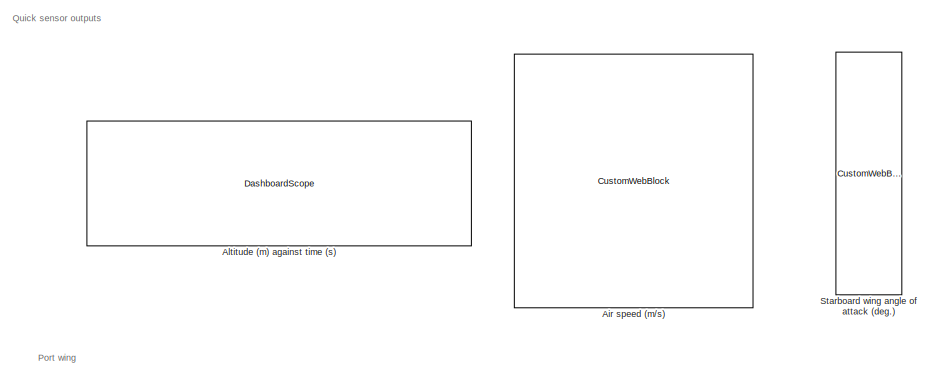
[diagram: root canvas - part 1/4, top right region]
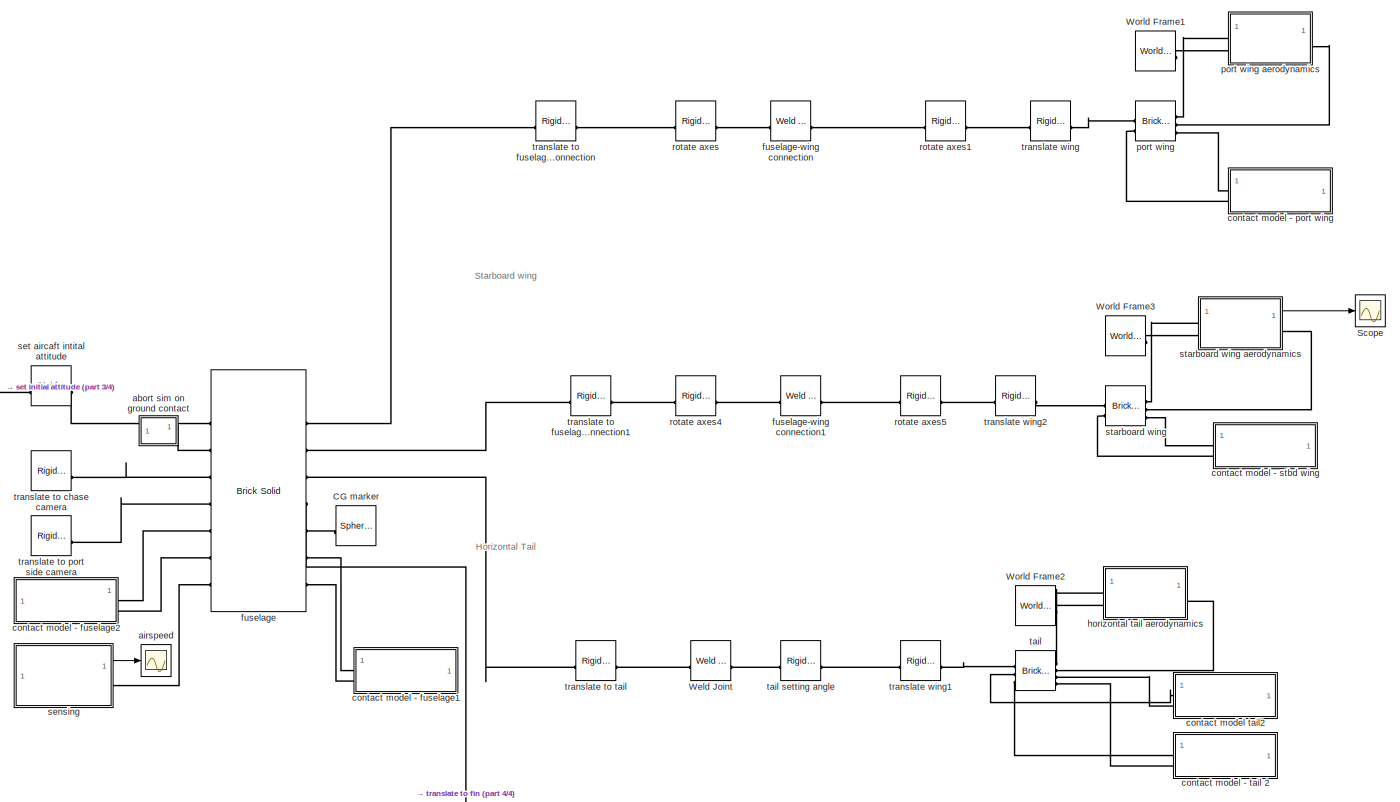
[diagram: root canvas - part 2/4, middle right region]
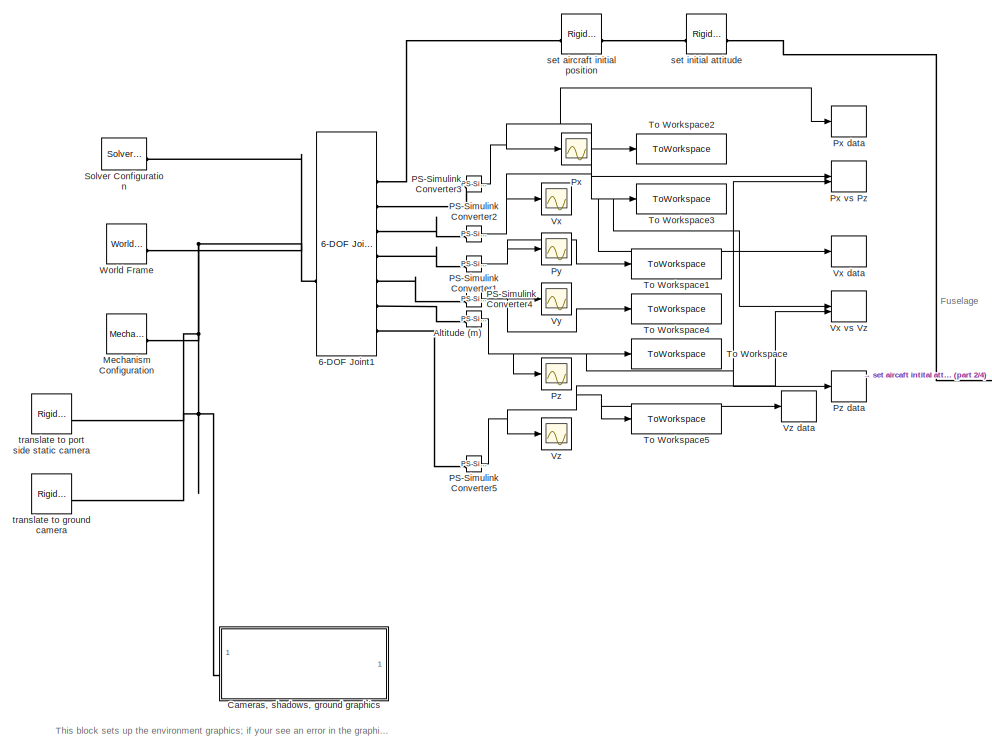
[diagram: root canvas - part 3/4, middle left region]
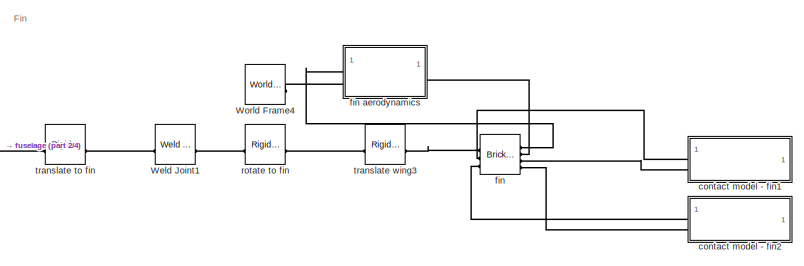
[diagram: root canvas - part 4/4, bottom right region]
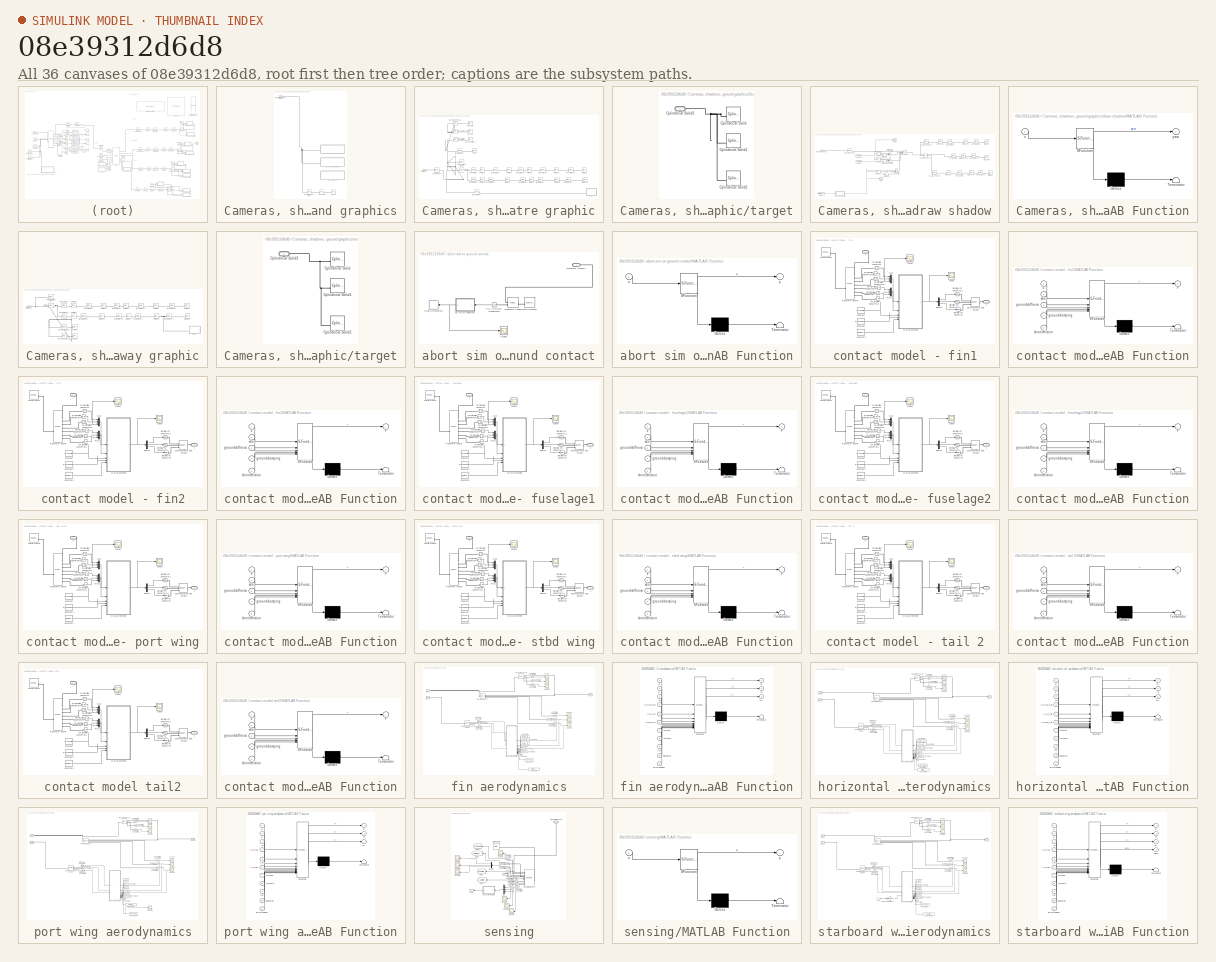
[diagram: thumbnail index - all 36 canvases of the model, root first then tree order]
MODEL slx_08e39312d6d8
KIND model
CONFIG AbsTol = auto
CONFIG EnableMultiTasking = off
CONFIG FixedStep = 0.005
CONFIG MaxStep = auto
CONFIG MinStep = auto
CONFIG RelTol = 1e-3
CONFIG SampleTimeConstraint = Unconstrained
CONFIG SolverName = FixedStepAuto
CONFIG StartTime = 0.0
CONFIG StopTime = 10
BLOCK [Reference] 6-DOF Joint1  REF=sm_lib/Joints/6-DOF Joint
  SourceBlock = sm_lib/Joints/6-DOF Joint
  SourceType = 6-DOF Joint
BLOCK [CustomWebBlock] Air speed (m//s)
  Configuration = {"components":[{"name":"CircularScaleComponent","settings":{"bounds":{"max":20,"min":0,"tickInterval":"auto"},"direction":"cw","flipLimits":0,"innerRadius":0.45978932567423125,"internalTickHeightScaleFactor":1,"labelColor":[250,245,200],"labelFont":{"font":"Arial","fontSize":12},"labelRadius":0.36,"labelTransparency":1,"minorTickHeightScaleFactor":0.2,"needleImage":{"size":[200,50],"src":"data:ima...<+21564ch>
  LabelPosition = Hide
BLOCK [Reference] Altitude (m)  REF=nesl_utility/PS-Simulink
Converter
  SourceBlock = nesl_utility/PS-Simulink\nConverter
  SourceType = PS-Simulink\nConverter
BLOCK [DashboardScope] Altitude (m) against time (s)
  LegendPosition = Hide
  ScaleAtStop = off
  Ymax = 10
  Ymin = -10
BLOCK [Reference] CG marker  REF=sm_lib/Body Elements/Spherical Solid
  NameLocation = top
  SourceBlock = sm_lib/Body Elements/Spherical Solid
  SourceType = Spherical Solid
BLOCK [SubSystem] Cameras, shadows, ground graphics
BLOCK [Reference] Cameras, shadows, ground graphics/File Solid  REF=sm_lib/Body Elements/File Solid
  Commented = on
  NameLocation = top
  SourceBlock = sm_lib/Body Elements/File Solid
  SourceType = File Solid
BLOCK [SubSystem] Cameras, shadows, ground graphics/Sugden centre graphic
BLOCK [Reference] Cameras, shadows, ground graphics/Sugden centre graphic/door  REF=sm_lib/Body Elements/Brick Solid
  NameLocation = top
  SourceBlock = sm_lib/Body Elements/Brick Solid
  SourceType = Brick Solid
BLOCK [Reference] Cameras, shadows, ground graphics/Sugden centre graphic/green wall  REF=sm_lib/Body Elements/Brick Solid
  NameLocation = top
  SourceBlock = sm_lib/Body Elements/Brick Solid
  SourceType = Brick Solid
BLOCK [Reference] Cameras, shadows, ground graphics/Sugden centre graphic/grey upper wall  REF=sm_lib/Body Elements/Brick Solid
  NameLocation = top
  SourceBlock = sm_lib/Body Elements/Brick Solid
  SourceType = Brick Solid
BLOCK [Reference] Cameras, shadows, ground graphics/Sugden centre graphic/grey wall  REF=sm_lib/Body Elements/Brick Solid
  NameLocation = top
  SourceBlock = sm_lib/Body Elements/Brick Solid
  SourceType = Brick Solid
BLOCK [Reference] Cameras, shadows, ground graphics/Sugden centre graphic/ground plane graphic  REF=sm_lib/Body Elements/Brick Solid
  NameLocation = top
  SourceBlock = sm_lib/Body Elements/Brick Solid
  SourceType = Brick Solid
BLOCK [SubSystem] Cameras, shadows, ground graphics/Sugden centre graphic/target
BLOCK [Reference] Cameras, shadows, ground graphics/Sugden centre graphic/target/Cylindrical Solid  REF=sm_lib/Body Elements/Cylindrical Solid
  NameLocation = top
  SourceBlock = sm_lib/Body Elements/Cylindrical Solid
  SourceType = Cylindrical Solid
BLOCK [Reference] Cameras, shadows, ground graphics/Sugden centre graphic/target/Cylindrical Solid1  REF=sm_lib/Body Elements/Cylindrical Solid
  NameLocation = top
  SourceBlock = sm_lib/Body Elements/Cylindrical Solid
  SourceType = Cylindrical Solid
BLOCK [Reference] Cameras, shadows, ground graphics/Sugden centre graphic/target/Cylindrical Solid2  REF=sm_lib/Body Elements/Cylindrical Solid
  NameLocation = top
  SourceBlock = sm_lib/Body Elements/Cylindrical Solid
  SourceType = Cylindrical Solid
BLOCK [PMIOPort] Cameras, shadows, ground graphics/Sugden centre graphic/target/Cylindrical Solid3
  Side = Left
BLOCK [Reference] Cameras, shadows, ground graphics/Sugden centre graphic/translate door  REF=sm_lib/Frames and
Transforms/Rigid
Transform
  SourceBlock = sm_lib/Frames and\nTransforms/Rigid\nTransform
  SourceType = Rigid\nTransform
BLOCK [Reference] Cameras, shadows, ground graphics/Sugden centre graphic/translate envirnonment  REF=sm_lib/Frames and
Transforms/Rigid
Transform
  SourceBlock = sm_lib/Frames and\nTransforms/Rigid\nTransform
  SourceType = Rigid\nTransform
BLOCK [Reference] Cameras, shadows, ground graphics/Sugden centre graphic/translate green wall  REF=sm_lib/Frames and
Transforms/Rigid
Transform
  SourceBlock = sm_lib/Frames and\nTransforms/Rigid\nTransform
  SourceType = Rigid\nTransform
BLOCK [Reference] Cameras, shadows, ground graphics/Sugden centre graphic/translate grey upper wall  REF=sm_lib/Frames and
Transforms/Rigid
Transform
  SourceBlock = sm_lib/Frames and\nTransforms/Rigid\nTransform
  SourceType = Rigid\nTransform
BLOCK [Reference] Cameras, shadows, ground graphics/Sugden centre graphic/translate grey wall  REF=sm_lib/Frames and
Transforms/Rigid
Transform
  SourceBlock = sm_lib/Frames and\nTransforms/Rigid\nTransform
  SourceType = Rigid\nTransform
BLOCK [Reference] Cameras, shadows, ground graphics/Sugden centre graphic/translate target  REF=sm_lib/Frames and
Transforms/Rigid
Transform
  SourceBlock = sm_lib/Frames and\nTransforms/Rigid\nTransform
  SourceType = Rigid\nTransform
BLOCK [Reference] Cameras, shadows, ground graphics/Sugden centre graphic/translatelines  REF=sm_lib/Frames and
Transforms/Rigid
Transform
  Commented = on
  SourceBlock = sm_lib/Frames and\nTransforms/Rigid\nTransform
  SourceType = Rigid\nTransform
BLOCK [Reference] Cameras, shadows, ground graphics/Sugden centre graphic/translatelines1  REF=sm_lib/Frames and
Transforms/Rigid
Transform
  Commented = on
  SourceBlock = sm_lib/Frames and\nTransforms/Rigid\nTransform
  SourceType = Rigid\nTransform
BLOCK [Reference] Cameras, shadows, ground graphics/Sugden centre graphic/translatelines2  REF=sm_lib/Frames and
Transforms/Rigid
Transform
  Commented = on
  SourceBlock = sm_lib/Frames and\nTransforms/Rigid\nTransform
  SourceType = Rigid\nTransform
BLOCK [Reference] Cameras, shadows, ground graphics/Sugden centre graphic/translatelines3  REF=sm_lib/Frames and
Transforms/Rigid
Transform
  Commented = on
  SourceBlock = sm_lib/Frames and\nTransforms/Rigid\nTransform
  SourceType = Rigid\nTransform
BLOCK [Reference] Cameras, shadows, ground graphics/Sugden centre graphic/translatelines4  REF=sm_lib/Frames and
Transforms/Rigid
Transform
  Commented = on
  SourceBlock = sm_lib/Frames and\nTransforms/Rigid\nTransform
  SourceType = Rigid\nTransform
BLOCK [Reference] Cameras, shadows, ground graphics/Sugden centre graphic/translatelines5  REF=sm_lib/Frames and
Transforms/Rigid
Transform
  Commented = on
  SourceBlock = sm_lib/Frames and\nTransforms/Rigid\nTransform
  SourceType = Rigid\nTransform
BLOCK [Reference] Cameras, shadows, ground graphics/Sugden centre graphic/translatelines6  REF=sm_lib/Frames and
Transforms/Rigid
Transform
  Commented = on
  SourceBlock = sm_lib/Frames and\nTransforms/Rigid\nTransform
  SourceType = Rigid\nTransform
BLOCK [Reference] Cameras, shadows, ground graphics/Sugden centre graphic/translatelines7  REF=sm_lib/Frames and
Transforms/Rigid
Transform
  Commented = on
  SourceBlock = sm_lib/Frames and\nTransforms/Rigid\nTransform
  SourceType = Rigid\nTransform
BLOCK [Reference] Cameras, shadows, ground graphics/Sugden centre graphic/translatelines8  REF=sm_lib/Frames and
Transforms/Rigid
Transform
  Commented = on
  SourceBlock = sm_lib/Frames and\nTransforms/Rigid\nTransform
  SourceType = Rigid\nTransform
BLOCK [Reference] Cameras, shadows, ground graphics/Sugden centre graphic/translatelines9  REF=sm_lib/Frames and
Transforms/Rigid
Transform
  Commented = on
  SourceBlock = sm_lib/Frames and\nTransforms/Rigid\nTransform
  SourceType = Rigid\nTransform
BLOCK [Reference] Cameras, shadows, ground graphics/Sugden centre graphic/whiteline  REF=sm_lib/Body Elements/Brick Solid
  Commented = on
  NameLocation = top
  SourceBlock = sm_lib/Body Elements/Brick Solid
  SourceType = Brick Solid
BLOCK [Reference] Cameras, shadows, ground graphics/Sugden centre graphic/whiteline1  REF=sm_lib/Body Elements/Brick Solid
  Commented = on
  NameLocation = top
  SourceBlock = sm_lib/Body Elements/Brick Solid
  SourceType = Brick Solid
BLOCK [Reference] Cameras, shadows, ground graphics/Sugden centre graphic/whiteline10  REF=sm_lib/Body Elements/Brick Solid
  Commented = on
  NameLocation = top
  SourceBlock = sm_lib/Body Elements/Brick Solid
  SourceType = Brick Solid
BLOCK [PMIOPort] Cameras, shadows, ground graphics/Sugden centre graphic/whiteline12
  Side = Left
BLOCK [Reference] Cameras, shadows, ground graphics/Sugden centre graphic/whiteline2  REF=sm_lib/Body Elements/Brick Solid
  Commented = on
  NameLocation = top
  SourceBlock = sm_lib/Body Elements/Brick Solid
  SourceType = Brick Solid
BLOCK [Reference] Cameras, shadows, ground graphics/Sugden centre graphic/whiteline3  REF=sm_lib/Body Elements/Brick Solid
  Commented = on
  NameLocation = top
  SourceBlock = sm_lib/Body Elements/Brick Solid
  SourceType = Brick Solid
BLOCK [Reference] Cameras, shadows, ground graphics/Sugden centre graphic/whiteline4  REF=sm_lib/Body Elements/Brick Solid
  Commented = on
  NameLocation = top
  SourceBlock = sm_lib/Body Elements/Brick Solid
  SourceType = Brick Solid
BLOCK [Reference] Cameras, shadows, ground graphics/Sugden centre graphic/whiteline5  REF=sm_lib/Body Elements/Brick Solid
  Commented = on
  NameLocation = top
  SourceBlock = sm_lib/Body Elements/Brick Solid
  SourceType = Brick Solid
BLOCK [Reference] Cameras, shadows, ground graphics/Sugden centre graphic/whiteline6  REF=sm_lib/Body Elements/Brick Solid
  Commented = on
  NameLocation = top
  SourceBlock = sm_lib/Body Elements/Brick Solid
  SourceType = Brick Solid
BLOCK [Reference] Cameras, shadows, ground graphics/Sugden centre graphic/whiteline7  REF=sm_lib/Body Elements/Brick Solid
  Commented = on
  NameLocation = top
  SourceBlock = sm_lib/Body Elements/Brick Solid
  SourceType = Brick Solid
BLOCK [Reference] Cameras, shadows, ground graphics/Sugden centre graphic/whiteline8  REF=sm_lib/Body Elements/Brick Solid
  Commented = on
  NameLocation = top
  SourceBlock = sm_lib/Body Elements/Brick Solid
  SourceType = Brick Solid
BLOCK [Reference] Cameras, shadows, ground graphics/Sugden centre graphic/whiteline9  REF=sm_lib/Body Elements/Brick Solid
  Commented = on
  NameLocation = top
  SourceBlock = sm_lib/Body Elements/Brick Solid
  SourceType = Brick Solid
BLOCK [Reference] Cameras, shadows, ground graphics/Weld Joint6  REF=sm_lib/Joints/Weld Joint
  Commented = on
  SourceBlock = sm_lib/Joints/Weld Joint
  SourceType = Weld Joint
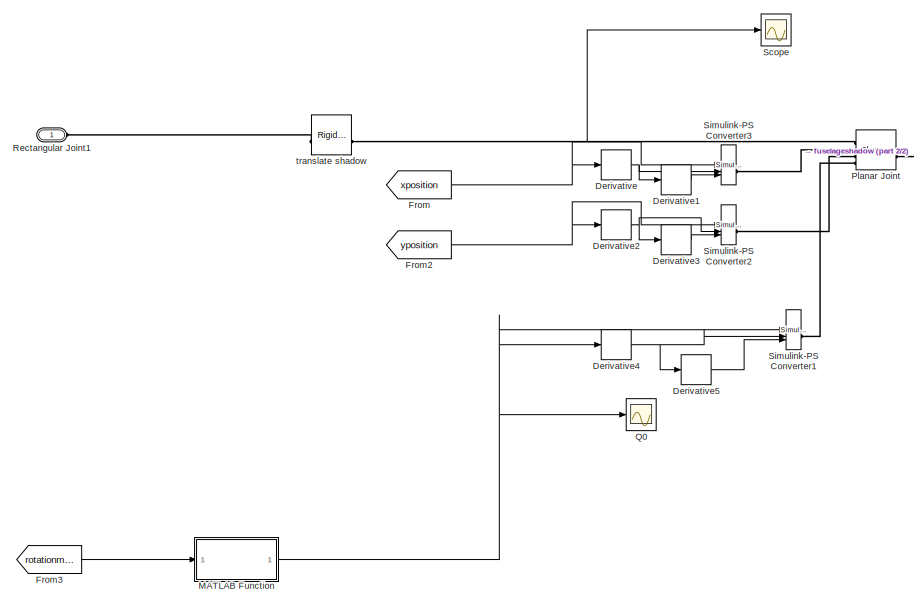
[diagram: Cameras, shadows, ground graphics/draw shadow - part 1/2, left side, full height]
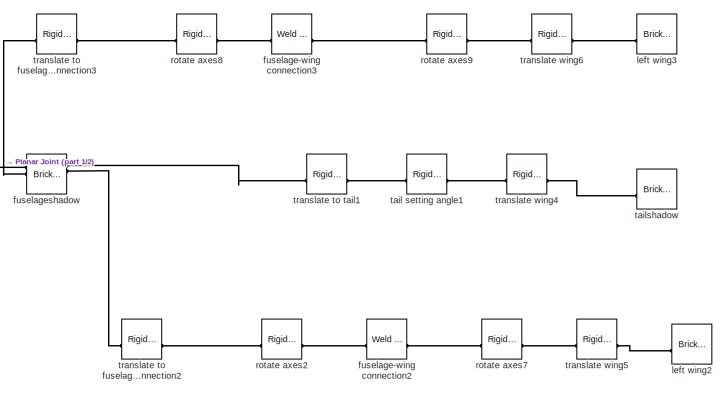
[diagram: Cameras, shadows, ground graphics/draw shadow - part 2/2, middle right region]
BLOCK [SubSystem] Cameras, shadows, ground graphics/draw shadow
BLOCK [Derivative] Cameras, shadows, ground graphics/draw shadow/Derivative
BLOCK [Derivative] Cameras, shadows, ground graphics/draw shadow/Derivative1
BLOCK [Derivative] Cameras, shadows, ground graphics/draw shadow/Derivative2
BLOCK [Derivative] Cameras, shadows, ground graphics/draw shadow/Derivative3
BLOCK [Derivative] Cameras, shadows, ground graphics/draw shadow/Derivative4
BLOCK [Derivative] Cameras, shadows, ground graphics/draw shadow/Derivative5
BLOCK [From] Cameras, shadows, ground graphics/draw shadow/From
  GotoTag = xposition
  TagVisibility = global
BLOCK [From] Cameras, shadows, ground graphics/draw shadow/From2
  GotoTag = yposition
  TagVisibility = global
BLOCK [From] Cameras, shadows, ground graphics/draw shadow/From3
  GotoTag = rotationmatrix
  TagVisibility = global
BLOCK [SubSystem] Cameras, shadows, ground graphics/draw shadow/MATLAB Function
  ErrorFcn = Stateflow.Translate.translate
  PermitHierarchicalResolution = ExplicitOnly
  SFBlockType = MATLAB Function
  TreatAsAtomicUnit = on
BLOCK [Demux] Cameras, shadows, ground graphics/draw shadow/MATLAB Function/ Demux 
  Outputs = 1
BLOCK [S-Function] Cameras, shadows, ground graphics/draw shadow/MATLAB Function/ SFunction 
  EnableBusSupport = on
  FunctionName = sf_sfun
  PortCounts = [1 2]
  SFcnIsStateOwnerBlock = off
  SFunctionDeploymentMode = off
  Tag = Stateflow S-Function 7
BLOCK [Terminator] Cameras, shadows, ground graphics/draw shadow/MATLAB Function/ Terminator 
BLOCK [Inport] Cameras, shadows, ground graphics/draw shadow/MATLAB Function/u
BLOCK [Outport] Cameras, shadows, ground graphics/draw shadow/MATLAB Function/yaw
BLOCK [Reference] Cameras, shadows, ground graphics/draw shadow/Planar Joint  REF=sm_lib/Joints/Planar Joint
  SourceBlock = sm_lib/Joints/Planar Joint
  SourceType = Planar Joint
BLOCK [Scope] Cameras, shadows, ground graphics/draw shadow/Q0
  Floating = off
  NumInputPorts = 1
  ScopeSpecificationString = Simulink.scopes.TimeScopeBlockCfg('CurrentConfiguration', extmgr.ConfigurationSet(extmgr.Configuration('Core','General UI',true),extmgr.Configuration('Core','Source UI',true),extmgr.Configuration('Sources','WiredSimulink',true,'DataLoggingVariableName','ScopeData4'),extmgr.Configuration('Visuals','Time Domain',true,'SerializedDisplays',{struct('MinYLimReal','-3.92575','MaxYLimReal','3.92337','YLab...<+1432ch>
BLOCK [PMIOPort] Cameras, shadows, ground graphics/draw shadow/Rectangular Joint1
  Side = Left
BLOCK [Scope] Cameras, shadows, ground graphics/draw shadow/Scope
  Floating = off
  NumInputPorts = 1
  ScopeSpecificationString = Simulink.scopes.TimeScopeBlockCfg('CurrentConfiguration', extmgr.ConfigurationSet(extmgr.Configuration('Core','General UI',true),extmgr.Configuration('Core','Source UI',true),extmgr.Configuration('Sources','WiredSimulink',true,'DataLoggingVariableName','ScopeData1'),extmgr.Configuration('Visuals','Time Domain',true,'SerializedDisplays',{struct('MinYLimReal','-110.35824','MaxYLimReal','12.26203','Y...<+1410ch>
BLOCK [Reference] Cameras, shadows, ground graphics/draw shadow/Simulink-PS Converter1  REF=nesl_utility/Simulink-PS
Converter
  SourceBlock = nesl_utility/Simulink-PS\nConverter
  SourceType = Simulink-PS\nConverter
BLOCK [Reference] Cameras, shadows, ground graphics/draw shadow/Simulink-PS Converter2  REF=nesl_utility/Simulink-PS
Converter
  SourceBlock = nesl_utility/Simulink-PS\nConverter
  SourceType = Simulink-PS\nConverter
BLOCK [Reference] Cameras, shadows, ground graphics/draw shadow/Simulink-PS Converter3  REF=nesl_utility/Simulink-PS
Converter
  SourceBlock = nesl_utility/Simulink-PS\nConverter
  SourceType = Simulink-PS\nConverter
BLOCK [Reference] Cameras, shadows, ground graphics/draw shadow/fuselage-wing connection2  REF=sm_lib/Joints/Weld Joint
  SourceBlock = sm_lib/Joints/Weld Joint
  SourceType = Weld Joint
BLOCK [Reference] Cameras, shadows, ground graphics/draw shadow/fuselage-wing connection3  REF=sm_lib/Joints/Weld Joint
  SourceBlock = sm_lib/Joints/Weld Joint
  SourceType = Weld Joint
BLOCK [Reference] Cameras, shadows, ground graphics/draw shadow/fuselageshadow  REF=sm_lib/Body Elements/Brick Solid
  NameLocation = top
  SourceBlock = sm_lib/Body Elements/Brick Solid
  SourceType = Brick Solid
BLOCK [Reference] Cameras, shadows, ground graphics/draw shadow/left wing2  REF=sm_lib/Body Elements/Brick Solid
  NameLocation = top
  SourceBlock = sm_lib/Body Elements/Brick Solid
  SourceType = Brick Solid
BLOCK [Reference] Cameras, shadows, ground graphics/draw shadow/left wing3  REF=sm_lib/Body Elements/Brick Solid
  NameLocation = top
  SourceBlock = sm_lib/Body Elements/Brick Solid
  SourceType = Brick Solid
BLOCK [Reference] Cameras, shadows, ground graphics/draw shadow/rotate axes2  REF=sm_lib/Frames and
Transforms/Rigid
Transform
  SourceBlock = sm_lib/Frames and\nTransforms/Rigid\nTransform
  SourceType = Rigid\nTransform
BLOCK [Reference] Cameras, shadows, ground graphics/draw shadow/rotate axes7  REF=sm_lib/Frames and
Transforms/Rigid
Transform
  SourceBlock = sm_lib/Frames and\nTransforms/Rigid\nTransform
  SourceType = Rigid\nTransform
BLOCK [Reference] Cameras, shadows, ground graphics/draw shadow/rotate axes8  REF=sm_lib/Frames and
Transforms/Rigid
Transform
  SourceBlock = sm_lib/Frames and\nTransforms/Rigid\nTransform
  SourceType = Rigid\nTransform
BLOCK [Reference] Cameras, shadows, ground graphics/draw shadow/rotate axes9  REF=sm_lib/Frames and
Transforms/Rigid
Transform
  SourceBlock = sm_lib/Frames and\nTransforms/Rigid\nTransform
  SourceType = Rigid\nTransform
BLOCK [Reference] Cameras, shadows, ground graphics/draw shadow/tail setting angle1  REF=sm_lib/Frames and
Transforms/Rigid
Transform
  SourceBlock = sm_lib/Frames and\nTransforms/Rigid\nTransform
  SourceType = Rigid\nTransform
BLOCK [Reference] Cameras, shadows, ground graphics/draw shadow/tailshadow  REF=sm_lib/Body Elements/Brick Solid
  NameLocation = top
  SourceBlock = sm_lib/Body Elements/Brick Solid
  SourceType = Brick Solid
BLOCK [Reference] Cameras, shadows, ground graphics/draw shadow/translate shadow  REF=sm_lib/Frames and
Transforms/Rigid
Transform
  SourceBlock = sm_lib/Frames and\nTransforms/Rigid\nTransform
  SourceType = Rigid\nTransform
BLOCK [Reference] Cameras, shadows, ground graphics/draw shadow/translate to fuselage- wing connection2  REF=sm_lib/Frames and
Transforms/Rigid
Transform
  SourceBlock = sm_lib/Frames and\nTransforms/Rigid\nTransform
  SourceType = Rigid\nTransform
BLOCK [Reference] Cameras, shadows, ground graphics/draw shadow/translate to fuselage- wing connection3  REF=sm_lib/Frames and
Transforms/Rigid
Transform
  SourceBlock = sm_lib/Frames and\nTransforms/Rigid\nTransform
  SourceType = Rigid\nTransform
BLOCK [Reference] Cameras, shadows, ground graphics/draw shadow/translate to tail1  REF=sm_lib/Frames and
Transforms/Rigid
Transform
  SourceBlock = sm_lib/Frames and\nTransforms/Rigid\nTransform
  SourceType = Rigid\nTransform
BLOCK [Reference] Cameras, shadows, ground graphics/draw shadow/translate wing4  REF=sm_lib/Frames and
Transforms/Rigid
Transform
  SourceBlock = sm_lib/Frames and\nTransforms/Rigid\nTransform
  SourceType = Rigid\nTransform
BLOCK [Reference] Cameras, shadows, ground graphics/draw shadow/translate wing5  REF=sm_lib/Frames and
Transforms/Rigid
Transform
  SourceBlock = sm_lib/Frames and\nTransforms/Rigid\nTransform
  SourceType = Rigid\nTransform
BLOCK [Reference] Cameras, shadows, ground graphics/draw shadow/translate wing6  REF=sm_lib/Frames and
Transforms/Rigid
Transform
  SourceBlock = sm_lib/Frames and\nTransforms/Rigid\nTransform
  SourceType = Rigid\nTransform
BLOCK [SubSystem] Cameras, shadows, ground graphics/runway graphic
  Commented = on
BLOCK [Reference] Cameras, shadows, ground graphics/runway graphic/ground plane graphic  REF=sm_lib/Body Elements/Brick Solid
  NameLocation = top
  SourceBlock = sm_lib/Body Elements/Brick Solid
  SourceType = Brick Solid
BLOCK [Reference] Cameras, shadows, ground graphics/runway graphic/sideline1  REF=sm_lib/Body Elements/Brick Solid
  NameLocation = top
  SourceBlock = sm_lib/Body Elements/Brick Solid
  SourceType = Brick Solid
BLOCK [Reference] Cameras, shadows, ground graphics/runway graphic/sideline2  REF=sm_lib/Body Elements/Brick Solid
  NameLocation = top
  SourceBlock = sm_lib/Body Elements/Brick Solid
  SourceType = Brick Solid
BLOCK [SubSystem] Cameras, shadows, ground graphics/runway graphic/target
BLOCK [Reference] Cameras, shadows, ground graphics/runway graphic/target/Cylindrical Solid  REF=sm_lib/Body Elements/Cylindrical Solid
  NameLocation = top
  SourceBlock = sm_lib/Body Elements/Cylindrical Solid
  SourceType = Cylindrical Solid
BLOCK [Reference] Cameras, shadows, ground graphics/runway graphic/target/Cylindrical Solid1  REF=sm_lib/Body Elements/Cylindrical Solid
  NameLocation = top
  SourceBlock = sm_lib/Body Elements/Cylindrical Solid
  SourceType = Cylindrical Solid
BLOCK [Reference] Cameras, shadows, ground graphics/runway graphic/target/Cylindrical Solid2  REF=sm_lib/Body Elements/Cylindrical Solid
  NameLocation = top
  SourceBlock = sm_lib/Body Elements/Cylindrical Solid
  SourceType = Cylindrical Solid
BLOCK [PMIOPort] Cameras, shadows, ground graphics/runway graphic/target/Cylindrical Solid3
  Side = Left
BLOCK [Reference] Cameras, shadows, ground graphics/runway graphic/translatelines  REF=sm_lib/Frames and
Transforms/Rigid
Transform
  SourceBlock = sm_lib/Frames and\nTransforms/Rigid\nTransform
  SourceType = Rigid\nTransform
BLOCK [Reference] Cameras, shadows, ground graphics/runway graphic/translatelines1  REF=sm_lib/Frames and
Transforms/Rigid
Transform
  SourceBlock = sm_lib/Frames and\nTransforms/Rigid\nTransform
  SourceType = Rigid\nTransform
BLOCK [Reference] Cameras, shadows, ground graphics/runway graphic/translatelines2  REF=sm_lib/Frames and
Transforms/Rigid
Transform
  SourceBlock = sm_lib/Frames and\nTransforms/Rigid\nTransform
  SourceType = Rigid\nTransform
BLOCK [Reference] Cameras, shadows, ground graphics/runway graphic/translatelines3  REF=sm_lib/Frames and
Transforms/Rigid
Transform
  SourceBlock = sm_lib/Frames and\nTransforms/Rigid\nTransform
  SourceType = Rigid\nTransform
BLOCK [Reference] Cameras, shadows, ground graphics/runway graphic/translatelines4  REF=sm_lib/Frames and
Transforms/Rigid
Transform
  SourceBlock = sm_lib/Frames and\nTransforms/Rigid\nTransform
  SourceType = Rigid\nTransform
BLOCK [Reference] Cameras, shadows, ground graphics/runway graphic/translatelines5  REF=sm_lib/Frames and
Transforms/Rigid
Transform
  SourceBlock = sm_lib/Frames and\nTransforms/Rigid\nTransform
  SourceType = Rigid\nTransform
BLOCK [Reference] Cameras, shadows, ground graphics/runway graphic/translatelines6  REF=sm_lib/Frames and
Transforms/Rigid
Transform
  SourceBlock = sm_lib/Frames and\nTransforms/Rigid\nTransform
  SourceType = Rigid\nTransform
BLOCK [Reference] Cameras, shadows, ground graphics/runway graphic/translatelines7  REF=sm_lib/Frames and
Transforms/Rigid
Transform
  SourceBlock = sm_lib/Frames and\nTransforms/Rigid\nTransform
  SourceType = Rigid\nTransform
BLOCK [Reference] Cameras, shadows, ground graphics/runway graphic/translatelines8  REF=sm_lib/Frames and
Transforms/Rigid
Transform
  SourceBlock = sm_lib/Frames and\nTransforms/Rigid\nTransform
  SourceType = Rigid\nTransform
BLOCK [Reference] Cameras, shadows, ground graphics/runway graphic/translatelines9  REF=sm_lib/Frames and
Transforms/Rigid
Transform
  SourceBlock = sm_lib/Frames and\nTransforms/Rigid\nTransform
  SourceType = Rigid\nTransform
BLOCK [Reference] Cameras, shadows, ground graphics/runway graphic/translatesidelines  REF=sm_lib/Frames and
Transforms/Rigid
Transform
  SourceBlock = sm_lib/Frames and\nTransforms/Rigid\nTransform
  SourceType = Rigid\nTransform
BLOCK [Reference] Cameras, shadows, ground graphics/runway graphic/translatesidelines1  REF=sm_lib/Frames and
Transforms/Rigid
Transform
  SourceBlock = sm_lib/Frames and\nTransforms/Rigid\nTransform
  SourceType = Rigid\nTransform
BLOCK [Reference] Cameras, shadows, ground graphics/runway graphic/whiteline  REF=sm_lib/Body Elements/Brick Solid
  NameLocation = top
  SourceBlock = sm_lib/Body Elements/Brick Solid
  SourceType = Brick Solid
BLOCK [Reference] Cameras, shadows, ground graphics/runway graphic/whiteline1  REF=sm_lib/Body Elements/Brick Solid
  NameLocation = top
  SourceBlock = sm_lib/Body Elements/Brick Solid
  SourceType = Brick Solid
BLOCK [Reference] Cameras, shadows, ground graphics/runway graphic/whiteline10  REF=sm_lib/Body Elements/Brick Solid
  NameLocation = top
  SourceBlock = sm_lib/Body Elements/Brick Solid
  SourceType = Brick Solid
BLOCK [PMIOPort] Cameras, shadows, ground graphics/runway graphic/whiteline12
  Side = Left
BLOCK [Reference] Cameras, shadows, ground graphics/runway graphic/whiteline2  REF=sm_lib/Body Elements/Brick Solid
  NameLocation = top
  SourceBlock = sm_lib/Body Elements/Brick Solid
  SourceType = Brick Solid
BLOCK [Reference] Cameras, shadows, ground graphics/runway graphic/whiteline3  REF=sm_lib/Body Elements/Brick Solid
  NameLocation = top
  SourceBlock = sm_lib/Body Elements/Brick Solid
  SourceType = Brick Solid
BLOCK [Reference] Cameras, shadows, ground graphics/runway graphic/whiteline4  REF=sm_lib/Body Elements/Brick Solid
  NameLocation = top
  SourceBlock = sm_lib/Body Elements/Brick Solid
  SourceType = Brick Solid
BLOCK [Reference] Cameras, shadows, ground graphics/runway graphic/whiteline5  REF=sm_lib/Body Elements/Brick Solid
  NameLocation = top
  SourceBlock = sm_lib/Body Elements/Brick Solid
  SourceType = Brick Solid
BLOCK [Reference] Cameras, shadows, ground graphics/runway graphic/whiteline6  REF=sm_lib/Body Elements/Brick Solid
  NameLocation = top
  SourceBlock = sm_lib/Body Elements/Brick Solid
  SourceType = Brick Solid
BLOCK [Reference] Cameras, shadows, ground graphics/runway graphic/whiteline7  REF=sm_lib/Body Elements/Brick Solid
  NameLocation = top
  SourceBlock = sm_lib/Body Elements/Brick Solid
  SourceType = Brick Solid
BLOCK [Reference] Cameras, shadows, ground graphics/runway graphic/whiteline8  REF=sm_lib/Body Elements/Brick Solid
  NameLocation = top
  SourceBlock = sm_lib/Body Elements/Brick Solid
  SourceType = Brick Solid
BLOCK [Reference] Cameras, shadows, ground graphics/runway graphic/whiteline9  REF=sm_lib/Body Elements/Brick Solid
  NameLocation = top
  SourceBlock = sm_lib/Body Elements/Brick Solid
  SourceType = Brick Solid
BLOCK [Reference] Cameras, shadows, ground graphics/translate ground plane  REF=sm_lib/Frames and
Transforms/Rigid
Transform
  Commented = on
  SourceBlock = sm_lib/Frames and\nTransforms/Rigid\nTransform
  SourceType = Rigid\nTransform
BLOCK [PMIOPort] Cameras, shadows, ground graphics/translate to ground camera1
  Side = Left
BLOCK [Reference] Mechanism Configuration  REF=sm_lib/Utilities/Mechanism
Configuration
  SourceBlock = sm_lib/Utilities/Mechanism\nConfiguration
  SourceType = Mechanism\nConfiguration
BLOCK [Reference] PS-Simulink Converter1  REF=nesl_utility/PS-Simulink
Converter
  SourceBlock = nesl_utility/PS-Simulink\nConverter
  SourceType = PS-Simulink\nConverter
BLOCK [Reference] PS-Simulink Converter2  REF=nesl_utility/PS-Simulink
Converter
  SourceBlock = nesl_utility/PS-Simulink\nConverter
  SourceType = PS-Simulink\nConverter
BLOCK [Reference] PS-Simulink Converter3  REF=nesl_utility/PS-Simulink
Converter
  SourceBlock = nesl_utility/PS-Simulink\nConverter
  SourceType = PS-Simulink\nConverter
BLOCK [Reference] PS-Simulink Converter4  REF=nesl_utility/PS-Simulink
Converter
  SourceBlock = nesl_utility/PS-Simulink\nConverter
  SourceType = PS-Simulink\nConverter
BLOCK [Reference] PS-Simulink Converter5  REF=nesl_utility/PS-Simulink
Converter
  SourceBlock = nesl_utility/PS-Simulink\nConverter
  SourceType = PS-Simulink\nConverter
BLOCK [Scope] Px
  Floating = off
  NumInputPorts = 1
  ScopeSpecificationString = Simulink.scopes.TimeScopeBlockCfg('CurrentConfiguration', extmgr.ConfigurationSet(extmgr.Configuration('Core','General UI',true),extmgr.Configuration('Core','Source UI',true),extmgr.Configuration('Sources','WiredSimulink',true,'DataLoggingVariableName','Pxdata','DataLoggingSaveFormat','StructureWithTime'),extmgr.Configuration('Visuals','Time Domain',true,'SerializedDisplays',{struct('MinYLimReal',...<+1525ch>
BLOCK [Record] Px data
  CompatibilityTag = XY
  FileSettingsInternal = {"entries":[{"content":{"excelSettings":{"content":{},"type":"Streamout.ExcelSettings"}},"type":"Streamout.FileSettingStorage","uuid":"4a9342ac-fbe4-432c-9913-c2c3f70039cf"}],"packageUris":["http://schema.mathworks.com/mf0/streamout_blocks/R2020a"],"version":"1.0"}
  Layout = [1 1]
  SignalsInternal = {"entries":[{"content":{"signals":[{"content":{"blockPath":["grp_10_simscape_block/Px data"],"channel":[],"dimensions":[1],"domain":"grp_10_simscape_block/Px data","lineColor":"#a2142f","plots":[1],"port":1,"sid":[""],"signalID":60,"signalName":"PS-Simulink\nConverter3"},"type":"RecordBlkView.Signal","uuid":"c38c5013-46b3-4016-a77a-44837eeda027"},{"content":{"blockPath":["grp_10_simscape_block/Px ...<+400ch>
  VisualizationBindings = {"xyplotplugin":{"info":[{"series":[{"bindingParametersList":[{"parameter":"X-Axis","signalID":60,"signalName":"PS-Simulink\nConverter3"},{"parameter":"Y-Axis","signalID":60,"signalName":"PS-Simulink\nConverter3"}],"seriesID":47568}],"subplotID":1}]}}
BLOCK [Record] Px vs Pz
  CompatibilityTag = XY
  FileSettingsInternal = {"entries":[{"content":{"excelSettings":{"content":{},"type":"Streamout.ExcelSettings"}},"type":"Streamout.FileSettingStorage","uuid":"8246069e-24cd-45dd-8b9d-82f7eb9c3f88"}],"packageUris":["http://schema.mathworks.com/mf0/streamout_blocks/R2020a"],"version":"1.0"}
  Layout = [1 1]
  SignalsInternal = {"entries":[{"content":{"signals":[{"content":{"blockPath":["grp_10_simscape_block/Px vs Pz"],"channel":[],"dimensions":[1],"domain":"grp_10_simscape_block/Px vs Pz","lineColor":"#22b573","plots":[],"port":1,"sid":[""],"signalID":65,"signalName":"PS-Simulink\nConverter3"},"type":"RecordBlkView.Signal","uuid":"63f9a859-84dd-4d9a-a012-03322e666d92"},{"content":{"blockPath":["grp_10_simscape_block/Px...<+430ch>
  VisualizationBindings = {"xyplotplugin":{"info":[{"series":[],"subplotID":1}]}}
BLOCK [Scope] Py
  Floating = off
  NumInputPorts = 1
  ScopeSpecificationString = Simulink.scopes.TimeScopeBlockCfg('CurrentConfiguration', extmgr.ConfigurationSet(extmgr.Configuration('Core','General UI',true),extmgr.Configuration('Core','Source UI',true),extmgr.Configuration('Sources','WiredSimulink',true,'DataLoggingVariableName','Pydata','DataLoggingSaveFormat','StructureWithTime'),extmgr.Configuration('Visuals','Time Domain',true,'SerializedDisplays',{struct('MinYLimReal',...<+1821ch>
BLOCK [Scope] Pz
  Floating = off
  NumInputPorts = 1
  ScopeSpecificationString = Simulink.scopes.TimeScopeBlockCfg('CurrentConfiguration', extmgr.ConfigurationSet(extmgr.Configuration('Core','General UI',true),extmgr.Configuration('Core','Source UI',true),extmgr.Configuration('Sources','WiredSimulink',true,'DataLoggingVariableName','Pzdata','DataLoggingSaveFormat','StructureWithTime'),extmgr.Configuration('Visuals','Time Domain',true,'SerializedDisplays',{struct('MinYLimReal',...<+1542ch>
BLOCK [Record] Pz data
  CompatibilityTag = XY
  FileSettingsInternal = {"entries":[{"content":{"excelSettings":{"content":{},"type":"Streamout.ExcelSettings"}},"type":"Streamout.FileSettingStorage","uuid":"5556fd40-579a-46f8-8a9a-ffb1b8585c11"}],"packageUris":["http://schema.mathworks.com/mf0/streamout_blocks/R2020a"],"version":"1.0"}
  Layout = [1 1]
  SignalsInternal = {"entries":[{"content":{"signals":[{"content":{"blockPath":["grp_10_simscape_block/Pz data"],"channel":[],"dimensions":[1],"domain":"grp_10_simscape_block/Pz data","lineColor":"#d95319","plots":[],"port":1,"sid":[""],"signalID":73,"signalName":"Altitude (m)"},"type":"RecordBlkView.Signal","uuid":"3f526415-4ff9-44d4-84f0-a5e92154cbfc"},{"content":{"blockPath":["grp_10_simscape_block/Pz data"],"chan...<+388ch>
  VisualizationBindings = {"xyplotplugin":{"info":[{"series":[],"subplotID":1}]}}
BLOCK [Scope] Scope
  Floating = off
  NumInputPorts = 1
  ScopeSpecificationString = Simulink.scopes.TimeScopeBlockCfg('CurrentConfiguration', extmgr.ConfigurationSet(extmgr.Configuration('Core','General UI',true),extmgr.Configuration('Core','Source UI',true),extmgr.Configuration('Sources','WiredSimulink',true,'DataLoggingVariableName','ScopeData1'),extmgr.Configuration('Visuals','Time Domain',true,'SerializedDisplays',{struct('MinYLimReal','-117.9052','MaxYLimReal','163.58988','Y...<+1482ch>
BLOCK [Reference] Solver Configuration  REF=nesl_utility/Solver
Configuration
  SourceBlock = nesl_utility/Solver\nConfiguration
  SourceType = Solver\nConfiguration
BLOCK [CustomWebBlock] Starboard wing angle of attack (deg.)
  Configuration = {"components":[{"name":"LinearScaleComponent","settings":{"bounds":{"max":15,"min":-5,"tickInterval":5},"labelColor":[250,245,199],"labelFont":{"font":"Arial","fontSize":12},"labelOffset":0.05,"labelTransparency":1,"needleImage":{"size":[21,75],"src":"data:image\/svg+xml;base64,PHN2ZyB4bWxucz0iaHR0cDovL3d3dy53My5vcmcvMjAwMC9zdmciIHhtbG5zOnhsaW5rPSJodHRwOi8vd3d3LnczLm9yZy8xOTk5L3hsaW5rIiB2aWV3Qm94P...<+5817ch>
  LabelPosition = Hide
  ShowInitialText = on
BLOCK [ToWorkspace] To Workspace
  FixptAsFi = on
  MaxDataPoints = inf
  SampleTime = -1
  SaveFormat = Timeseries
  VariableName = Pz
BLOCK [ToWorkspace] To Workspace1
  FixptAsFi = on
  MaxDataPoints = inf
  SampleTime = -1
  SaveFormat = Timeseries
  VariableName = Py
BLOCK [ToWorkspace] To Workspace2
  FixptAsFi = on
  MaxDataPoints = inf
  SampleTime = -1
  SaveFormat = Timeseries
  VariableName = Px
BLOCK [ToWorkspace] To Workspace3
  FixptAsFi = on
  MaxDataPoints = inf
  SampleTime = -1
  SaveFormat = Timeseries
  VariableName = Vx
BLOCK [ToWorkspace] To Workspace4
  FixptAsFi = on
  MaxDataPoints = inf
  SampleTime = -1
  SaveFormat = Timeseries
  VariableName = Vy
BLOCK [ToWorkspace] To Workspace5
  FixptAsFi = on
  MaxDataPoints = inf
  SampleTime = -1
  SaveFormat = Timeseries
  VariableName = Vz
BLOCK [Scope] Vx
  Floating = off
  NumInputPorts = 1
  ScopeSpecificationString = Simulink.scopes.TimeScopeBlockCfg('CurrentConfiguration', extmgr.ConfigurationSet(extmgr.Configuration('Core','General UI',true),extmgr.Configuration('Core','Source UI',true),extmgr.Configuration('Sources','WiredSimulink',true,'DataLoggingVariableName','ScopeData2','DataLoggingSaveFormat','StructureWithTime'),extmgr.Configuration('Visuals','Time Domain',true,'SerializedDisplays',{struct('MinYLimRe...<+1623ch>
BLOCK [Record] Vx data
  CompatibilityTag = XY
  FileSettingsInternal = {"entries":[{"content":{"excelSettings":{"content":{},"type":"Streamout.ExcelSettings"}},"type":"Streamout.FileSettingStorage","uuid":"f63a1871-4f27-4ce8-87d3-83cf30b6332c"}],"packageUris":["http://schema.mathworks.com/mf0/streamout_blocks/R2020a"],"version":"1.0"}
  Layout = [1 1]
  SignalsInternal = {"entries":[{"content":{"signals":[{"content":{"blockPath":["grp_10_simscape_block/Vx data"],"channel":[],"dimensions":[1],"domain":"grp_10_simscape_block/Vx data","lineColor":"#4dbeee","plots":[],"port":1,"sid":[""],"signalID":89,"signalName":"PS-Simulink\nConverter2"},"type":"RecordBlkView.Signal","uuid":"bcf6754d-b459-49dc-8375-ac75d5995c36"},{"content":{"blockPath":["grp_10_simscape_block/Vx d...<+399ch>
  VisualizationBindings = {"xyplotplugin":{"info":[{"series":[],"subplotID":1}]}}
BLOCK [Record] Vx vs Vz
  CompatibilityTag = XY
  FileSettingsInternal = {"entries":[{"content":{"excelSettings":{"content":{},"type":"Streamout.ExcelSettings"}},"type":"Streamout.FileSettingStorage","uuid":"d31c8c9c-b18d-4940-bf7b-7479da3c7d48"}],"packageUris":["http://schema.mathworks.com/mf0/streamout_blocks/R2020a"],"version":"1.0"}
  Layout = [1 1]
  SignalsInternal = {"entries":[{"content":{"signals":[{"content":{"blockPath":["grp_10_simscape_block/Vx vs Vz"],"channel":[],"dimensions":[1],"domain":"grp_10_simscape_block/Vx vs Vz","lineColor":"#ff13a6","plots":[1],"port":1,"sid":[""],"signalID":94,"signalName":"PS-Simulink\nConverter2"},"type":"RecordBlkView.Signal","uuid":"75dc9f38-af32-4ebf-9cf4-57c4503f3f7d"},{"content":{"blockPath":["grp_10_simscape_block/V...<+442ch>
  VisualizationBindings = {"xyplotplugin":{"info":[{"series":[{"bindingParametersList":[{"parameter":"X-Axis","signalID":94,"signalName":"PS-Simulink\nConverter2"},{"parameter":"Y-Axis","signalID":94,"signalName":"PS-Simulink\nConverter2"}],"seriesID":64945}],"subplotID":1}]}}
BLOCK [Scope] Vy
  Floating = off
  NumInputPorts = 1
  ScopeSpecificationString = Simulink.scopes.TimeScopeBlockCfg('CurrentConfiguration', extmgr.ConfigurationSet(extmgr.Configuration('Core','General UI',true),extmgr.Configuration('Core','Source UI',true),extmgr.Configuration('Sources','WiredSimulink',true,'DataLoggingVariableName','ScopeData3','DataLoggingSaveFormat','StructureWithTime'),extmgr.Configuration('Visuals','Time Domain',true,'SerializedDisplays',{struct('MinYLimRe...<+1454ch>
BLOCK [Scope] Vz
  Floating = off
  NumInputPorts = 1
  ScopeSpecificationString = Simulink.scopes.TimeScopeBlockCfg('CurrentConfiguration', extmgr.ConfigurationSet(extmgr.Configuration('Core','General UI',true),extmgr.Configuration('Core','Source UI',true),extmgr.Configuration('Sources','WiredSimulink',true,'DataLoggingVariableName','ScopeData4','DataLoggingSaveFormat','StructureWithTime'),extmgr.Configuration('Visuals','Time Domain',true,'SerializedDisplays',{struct('MinYLimRe...<+1544ch>
BLOCK [Record] Vz data
  CompatibilityTag = XY
  FileSettingsInternal = {"entries":[{"content":{"excelSettings":{"content":{},"type":"Streamout.ExcelSettings"}},"type":"Streamout.FileSettingStorage","uuid":"4c94cb6e-f3e5-418c-8716-66e3ef6d698e"}],"packageUris":["http://schema.mathworks.com/mf0/streamout_blocks/R2020a"],"version":"1.0"}
  Layout = [1 1]
  SignalsInternal = {"entries":[{"content":{"signals":[{"content":{"blockPath":["grp_10_simscape_block/Vz data"],"channel":[],"dimensions":[1],"domain":"grp_10_simscape_block/Vz data","lineColor":"#ff6929","plots":[],"port":1,"sid":[""],"signalID":102,"signalName":"PS-Simulink\nConverter5"},"type":"RecordBlkView.Signal","uuid":"010ef679-43fb-4c3e-994a-c24bcee99a0b"},{"content":{"blockPath":["grp_10_simscape_block/Vz ...<+400ch>
  VisualizationBindings = {"xyplotplugin":{"info":[{"series":[],"subplotID":1}]}}
BLOCK [Reference] Weld Joint  REF=sm_lib/Joints/Weld Joint
  SourceBlock = sm_lib/Joints/Weld Joint
  SourceType = Weld Joint
BLOCK [Reference] Weld Joint1  REF=sm_lib/Joints/Weld Joint
  SourceBlock = sm_lib/Joints/Weld Joint
  SourceType = Weld Joint
BLOCK [Reference] World Frame  REF=sm_lib/Frames and
Transforms/World Frame
  SourceBlock = sm_lib/Frames and\nTransforms/World Frame
  SourceType = World Frame
BLOCK [Reference] World Frame1  REF=sm_lib/Frames and
Transforms/World Frame
  SourceBlock = sm_lib/Frames and\nTransforms/World Frame
  SourceType = World Frame
BLOCK [Reference] World Frame2  REF=sm_lib/Frames and
Transforms/World Frame
  SourceBlock = sm_lib/Frames and\nTransforms/World Frame
  SourceType = World Frame
BLOCK [Reference] World Frame3  REF=sm_lib/Frames and
Transforms/World Frame
  SourceBlock = sm_lib/Frames and\nTransforms/World Frame
  SourceType = World Frame
BLOCK [Reference] World Frame4  REF=sm_lib/Frames and
Transforms/World Frame
  SourceBlock = sm_lib/Frames and\nTransforms/World Frame
  SourceType = World Frame
BLOCK [SubSystem] abort sim on ground contact
  Commented = on
BLOCK [SubSystem] abort sim on ground contact/MATLAB Function
  ErrorFcn = Stateflow.Translate.translate
  NameLocation = top
  PermitHierarchicalResolution = ExplicitOnly
  SFBlockType = MATLAB Function
  TreatAsAtomicUnit = on
BLOCK [Demux] abort sim on ground contact/MATLAB Function/ Demux 
  Outputs = 1
BLOCK [S-Function] abort sim on ground contact/MATLAB Function/ SFunction 
  EnableBusSupport = on
  FunctionName = sf_sfun
  PortCounts = [1 2]
  SFcnIsStateOwnerBlock = off
  SFunctionDeploymentMode = off
  Tag = Stateflow S-Function 5
BLOCK [Terminator] abort sim on ground contact/MATLAB Function/ Terminator 
BLOCK [Inport] abort sim on ground contact/MATLAB Function/u
BLOCK [Outport] abort sim on ground contact/MATLAB Function/y
BLOCK [Reference] abort sim on ground contact/PS-Simulink Converter8  REF=nesl_utility/PS-Simulink
Converter
  NameLocation = top
  SourceBlock = nesl_utility/PS-Simulink\nConverter
  SourceType = PS-Simulink\nConverter
BLOCK [Scope] abort sim on ground contact/Scope1
  Floating = off
  NumInputPorts = 1
  ScopeSpecificationString = Simulink.scopes.TimeScopeBlockCfg('CurrentConfiguration', extmgr.ConfigurationSet(extmgr.Configuration('Core','General UI',true),extmgr.Configuration('Core','Source UI',true),extmgr.Configuration('Sources','WiredSimulink',true,'DataLoggingVariableName','ScopeData2'),extmgr.Configuration('Visuals','Time Domain',true),extmgr.Configuration('Tools','Plot Navigation',true),extmgr.Configuration('Tools',...<+40ch>
BLOCK [Stop] abort sim on ground contact/Stop Simulation
  NameLocation = top
BLOCK [Reference] abort sim on ground contact/Transform Sensor  REF=sm_lib/Frames and
Transforms/Transform
Sensor
  NameLocation = top
  SourceBlock = sm_lib/Frames and\nTransforms/Transform\nSensor
  SourceType = Transform\nSensor
BLOCK [PMIOPort] abort sim on ground contact/Transform Sensor1
  Side = Right
BLOCK [Reference] abort sim on ground contact/World Frame8  REF=sm_lib/Frames and
Transforms/World Frame
  NameLocation = top
  SourceBlock = sm_lib/Frames and\nTransforms/World Frame
  SourceType = World Frame
BLOCK [Scope] airspeed
  Floating = off
  NumInputPorts = 1
  ScopeSpecificationString = Simulink.scopes.TimeScopeBlockCfg('CurrentConfiguration', extmgr.ConfigurationSet(extmgr.Configuration('Core','General UI',true),extmgr.Configuration('Core','Source UI',true),extmgr.Configuration('Sources','WiredSimulink',true,'DataLoggingVariableName','ScopeData1'),extmgr.Configuration('Visuals','Time Domain',true,'SerializedDisplays',{struct('MinYLimReal','4.77416','MaxYLimReal','10.80069','YLab...<+1387ch>
BLOCK [SubSystem] contact model - fin1
BLOCK [PMIOPort] contact model - fin1/1
  Side = Left
BLOCK [PMIOPort] contact model - fin1/2
  NameLocation = top
  Port = 2
  Side = Left
BLOCK [Constant] contact model - fin1/Constant
  Value = groundstiffness
BLOCK [Constant] contact model - fin1/Constant1
  Value = grounddamping
BLOCK [Constant] contact model - fin1/Constant2
  Value = kineticfriction
BLOCK [Demux] contact model - fin1/Demux
  Outputs = 3
BLOCK [Reference] contact model - fin1/External Force and Torque  REF=sm_lib/Forces and
Torques/External Force
and Torque
  SourceBlock = sm_lib/Forces and\nTorques/External Force\nand Torque
  SourceType = External Force\nand Torque
BLOCK [SubSystem] contact model - fin1/MATLAB Function
  ErrorFcn = Stateflow.Translate.translate
  PermitHierarchicalResolution = ExplicitOnly
  SFBlockType = MATLAB Function
  TreatAsAtomicUnit = on
BLOCK [Demux] contact model - fin1/MATLAB Function/ Demux 
  Outputs = 1
BLOCK [S-Function] contact model - fin1/MATLAB Function/ SFunction 
  EnableBusSupport = on
  FunctionName = sf_sfun
  PortCounts = [5 2]
  SFcnIsStateOwnerBlock = off
  SFunctionDeploymentMode = off
  Tag = Stateflow S-Function 14
BLOCK [Terminator] contact model - fin1/MATLAB Function/ Terminator 
BLOCK [Outport] contact model - fin1/MATLAB Function/F
BLOCK [Inport] contact model - fin1/MATLAB Function/grounddamping
  Port = 4
BLOCK [Inport] contact model - fin1/MATLAB Function/groundstiffness
  Port = 3
BLOCK [Inport] contact model - fin1/MATLAB Function/kineticfriction
  Port = 5
BLOCK [Inport] contact model - fin1/MATLAB Function/x
BLOCK [Inport] contact model - fin1/MATLAB Function/xdot
  Port = 2
BLOCK [Mux] contact model - fin1/Mux
  DisplayOption = bar
  Inputs = 3
BLOCK [Mux] contact model - fin1/Mux1
  DisplayOption = bar
  Inputs = 3
BLOCK [Reference] contact model - fin1/PS-Simulink Converter  REF=nesl_utility/PS-Simulink
Converter
  SourceBlock = nesl_utility/PS-Simulink\nConverter
  SourceType = PS-Simulink\nConverter
BLOCK [Reference] contact model - fin1/PS-Simulink Converter1  REF=nesl_utility/PS-Simulink
Converter
  SourceBlock = nesl_utility/PS-Simulink\nConverter
  SourceType = PS-Simulink\nConverter
BLOCK [Reference] contact model - fin1/PS-Simulink Converter2  REF=nesl_utility/PS-Simulink
Converter
  SourceBlock = nesl_utility/PS-Simulink\nConverter
  SourceType = PS-Simulink\nConverter
BLOCK [Reference] contact model - fin1/PS-Simulink Converter3  REF=nesl_utility/PS-Simulink
Converter
  SourceBlock = nesl_utility/PS-Simulink\nConverter
  SourceType = PS-Simulink\nConverter
BLOCK [Reference] contact model - fin1/PS-Simulink Converter4  REF=nesl_utility/PS-Simulink
Converter
  SourceBlock = nesl_utility/PS-Simulink\nConverter
  SourceType = PS-Simulink\nConverter
BLOCK [Reference] contact model - fin1/PS-Simulink Converter5  REF=nesl_utility/PS-Simulink
Converter
  SourceBlock = nesl_utility/PS-Simulink\nConverter
  SourceType = PS-Simulink\nConverter
BLOCK [Scope] contact model - fin1/Scope
  Floating = off
  NumInputPorts = 1
  ScopeSpecificationString = Simulink.scopes.TimeScopeBlockCfg('CurrentConfiguration', extmgr.ConfigurationSet(extmgr.Configuration('Core','General UI',true),extmgr.Configuration('Core','Source UI',true),extmgr.Configuration('Sources','WiredSimulink',true,'DataLoggingVariableName','ScopeData13'),extmgr.Configuration('Visuals','Time Domain',true,'SerializedDisplays',{struct('MinYLimReal','-3.41642','MaxYLimReal','30.7478','YLa...<+1417ch>  <repeated x8 — deduplicated; at blocks: Scope>
BLOCK [Scope] contact model - fin1/Scope1
  Floating = off
  NumInputPorts = 1
  ScopeSpecificationString = Simulink.scopes.TimeScopeBlockCfg('CurrentConfiguration', extmgr.ConfigurationSet(extmgr.Configuration('Core','General UI',true),extmgr.Configuration('Core','Source UI',true),extmgr.Configuration('Sources','WiredSimulink',true,'DataLoggingVariableName','ScopeData14'),extmgr.Configuration('Visuals','Time Domain',true,'SerializedDisplays',{struct('MinYLimReal','-1.28075','MaxYLimReal','11.25342','YL...<+1386ch>  <repeated x8 — deduplicated; at blocks: Scope1>
BLOCK [Reference] contact model - fin1/Simulink-PS Converter  REF=nesl_utility/Simulink-PS
Converter
  SourceBlock = nesl_utility/Simulink-PS\nConverter
  SourceType = Simulink-PS\nConverter
BLOCK [Reference] contact model - fin1/Simulink-PS Converter1  REF=nesl_utility/Simulink-PS
Converter
  SourceBlock = nesl_utility/Simulink-PS\nConverter
  SourceType = Simulink-PS\nConverter
BLOCK [Reference] contact model - fin1/Simulink-PS Converter2  REF=nesl_utility/Simulink-PS
Converter
  SourceBlock = nesl_utility/Simulink-PS\nConverter
  SourceType = Simulink-PS\nConverter
BLOCK [Reference] contact model - fin1/Transform Sensor  REF=sm_lib/Frames and
Transforms/Transform
Sensor
  SourceBlock = sm_lib/Frames and\nTransforms/Transform\nSensor
  SourceType = Transform\nSensor
BLOCK [Reference] contact model - fin1/World Frame  REF=sm_lib/Frames and
Transforms/World Frame
  SourceBlock = sm_lib/Frames and\nTransforms/World Frame
  SourceType = World Frame
BLOCK [SubSystem] contact model - fin2
BLOCK [PMIOPort] contact model - fin2/1
  Side = Left
BLOCK [PMIOPort] contact model - fin2/2
  NameLocation = top
  Port = 2
  Side = Left
BLOCK [Constant] contact model - fin2/Constant
  Value = groundstiffness
BLOCK [Constant] contact model - fin2/Constant1
  Value = grounddamping
BLOCK [Constant] contact model - fin2/Constant2
  Value = kineticfriction
BLOCK [Demux] contact model - fin2/Demux
  Outputs = 3
BLOCK [Reference] contact model - fin2/External Force and Torque  REF=sm_lib/Forces and
Torques/External Force
and Torque
  SourceBlock = sm_lib/Forces and\nTorques/External Force\nand Torque
  SourceType = External Force\nand Torque
BLOCK [SubSystem] contact model - fin2/MATLAB Function
  ErrorFcn = Stateflow.Translate.translate
  PermitHierarchicalResolution = ExplicitOnly
  SFBlockType = MATLAB Function
  TreatAsAtomicUnit = on
BLOCK [Demux] contact model - fin2/MATLAB Function/ Demux 
  Outputs = 1
BLOCK [S-Function] contact model - fin2/MATLAB Function/ SFunction 
  EnableBusSupport = on
  FunctionName = sf_sfun
  PortCounts = [5 2]
  SFcnIsStateOwnerBlock = off
  SFunctionDeploymentMode = off
  Tag = Stateflow S-Function 15
BLOCK [Terminator] contact model - fin2/MATLAB Function/ Terminator 
BLOCK [Outport] contact model - fin2/MATLAB Function/F
BLOCK [Inport] contact model - fin2/MATLAB Function/grounddamping
  Port = 4
BLOCK [Inport] contact model - fin2/MATLAB Function/groundstiffness
  Port = 3
BLOCK [Inport] contact model - fin2/MATLAB Function/kineticfriction
  Port = 5
BLOCK [Inport] contact model - fin2/MATLAB Function/x
BLOCK [Inport] contact model - fin2/MATLAB Function/xdot
  Port = 2
BLOCK [Mux] contact model - fin2/Mux
  DisplayOption = bar
  Inputs = 3
BLOCK [Mux] contact model - fin2/Mux1
  DisplayOption = bar
  Inputs = 3
BLOCK [Reference] contact model - fin2/PS-Simulink Converter  REF=nesl_utility/PS-Simulink
Converter
  SourceBlock = nesl_utility/PS-Simulink\nConverter
  SourceType = PS-Simulink\nConverter
BLOCK [Reference] contact model - fin2/PS-Simulink Converter1  REF=nesl_utility/PS-Simulink
Converter
  SourceBlock = nesl_utility/PS-Simulink\nConverter
  SourceType = PS-Simulink\nConverter
BLOCK [Reference] contact model - fin2/PS-Simulink Converter2  REF=nesl_utility/PS-Simulink
Converter
  SourceBlock = nesl_utility/PS-Simulink\nConverter
  SourceType = PS-Simulink\nConverter
BLOCK [Reference] contact model - fin2/PS-Simulink Converter3  REF=nesl_utility/PS-Simulink
Converter
  SourceBlock = nesl_utility/PS-Simulink\nConverter
  SourceType = PS-Simulink\nConverter
BLOCK [Reference] contact model - fin2/PS-Simulink Converter4  REF=nesl_utility/PS-Simulink
Converter
  SourceBlock = nesl_utility/PS-Simulink\nConverter
  SourceType = PS-Simulink\nConverter
BLOCK [Reference] contact model - fin2/PS-Simulink Converter5  REF=nesl_utility/PS-Simulink
Converter
  SourceBlock = nesl_utility/PS-Simulink\nConverter
  SourceType = PS-Simulink\nConverter
BLOCK [Scope] contact model - fin2/Scope
  Floating = off
  NumInputPorts = 1
BLOCK [Scope] contact model - fin2/Scope1
  Floating = off
  NumInputPorts = 1
BLOCK [Reference] contact model - fin2/Simulink-PS Converter  REF=nesl_utility/Simulink-PS
Converter
  SourceBlock = nesl_utility/Simulink-PS\nConverter
  SourceType = Simulink-PS\nConverter
BLOCK [Reference] contact model - fin2/Simulink-PS Converter1  REF=nesl_utility/Simulink-PS
Converter
  SourceBlock = nesl_utility/Simulink-PS\nConverter
  SourceType = Simulink-PS\nConverter
BLOCK [Reference] contact model - fin2/Simulink-PS Converter2  REF=nesl_utility/Simulink-PS
Converter
  SourceBlock = nesl_utility/Simulink-PS\nConverter
  SourceType = Simulink-PS\nConverter
BLOCK [Reference] contact model - fin2/Transform Sensor  REF=sm_lib/Frames and
Transforms/Transform
Sensor
  SourceBlock = sm_lib/Frames and\nTransforms/Transform\nSensor
  SourceType = Transform\nSensor
BLOCK [Reference] contact model - fin2/World Frame  REF=sm_lib/Frames and
Transforms/World Frame
  SourceBlock = sm_lib/Frames and\nTransforms/World Frame
  SourceType = World Frame
BLOCK [SubSystem] contact model - fuselage1
BLOCK [PMIOPort] contact model - fuselage1/1
  Side = Left
BLOCK [PMIOPort] contact model - fuselage1/2
  NameLocation = top
  Port = 2
  Side = Left
BLOCK [Constant] contact model - fuselage1/Constant
  Value = groundstiffness
BLOCK [Constant] contact model - fuselage1/Constant1
  Value = grounddamping
BLOCK [Constant] contact model - fuselage1/Constant2
  Value = kineticfriction
BLOCK [Demux] contact model - fuselage1/Demux
  Outputs = 3
BLOCK [Reference] contact model - fuselage1/External Force and Torque  REF=sm_lib/Forces and
Torques/External Force
and Torque
  SourceBlock = sm_lib/Forces and\nTorques/External Force\nand Torque
  SourceType = External Force\nand Torque
BLOCK [SubSystem] contact model - fuselage1/MATLAB Function
  ErrorFcn = Stateflow.Translate.translate
  PermitHierarchicalResolution = ExplicitOnly
  SFBlockType = MATLAB Function
  TreatAsAtomicUnit = on
BLOCK [Demux] contact model - fuselage1/MATLAB Function/ Demux 
  Outputs = 1
BLOCK [S-Function] contact model - fuselage1/MATLAB Function/ SFunction 
  EnableBusSupport = on
  FunctionName = sf_sfun
  PortCounts = [5 2]
  SFcnIsStateOwnerBlock = off
  SFunctionDeploymentMode = off
  Tag = Stateflow S-Function 9
BLOCK [Terminator] contact model - fuselage1/MATLAB Function/ Terminator 
BLOCK [Outport] contact model - fuselage1/MATLAB Function/F
BLOCK [Inport] contact model - fuselage1/MATLAB Function/grounddamping
  Port = 4
BLOCK [Inport] contact model - fuselage1/MATLAB Function/groundstiffness
  Port = 3
BLOCK [Inport] contact model - fuselage1/MATLAB Function/kineticfriction
  Port = 5
BLOCK [Inport] contact model - fuselage1/MATLAB Function/x
BLOCK [Inport] contact model - fuselage1/MATLAB Function/xdot
  Port = 2
BLOCK [Mux] contact model - fuselage1/Mux
  DisplayOption = bar
  Inputs = 3
BLOCK [Mux] contact model - fuselage1/Mux1
  DisplayOption = bar
  Inputs = 3
BLOCK [Reference] contact model - fuselage1/PS-Simulink Converter  REF=nesl_utility/PS-Simulink
Converter
  SourceBlock = nesl_utility/PS-Simulink\nConverter
  SourceType = PS-Simulink\nConverter
BLOCK [Reference] contact model - fuselage1/PS-Simulink Converter1  REF=nesl_utility/PS-Simulink
Converter
  SourceBlock = nesl_utility/PS-Simulink\nConverter
  SourceType = PS-Simulink\nConverter
BLOCK [Reference] contact model - fuselage1/PS-Simulink Converter2  REF=nesl_utility/PS-Simulink
Converter
  SourceBlock = nesl_utility/PS-Simulink\nConverter
  SourceType = PS-Simulink\nConverter
BLOCK [Reference] contact model - fuselage1/PS-Simulink Converter3  REF=nesl_utility/PS-Simulink
Converter
  SourceBlock = nesl_utility/PS-Simulink\nConverter
  SourceType = PS-Simulink\nConverter
BLOCK [Reference] contact model - fuselage1/PS-Simulink Converter4  REF=nesl_utility/PS-Simulink
Converter
  SourceBlock = nesl_utility/PS-Simulink\nConverter
  SourceType = PS-Simulink\nConverter
BLOCK [Reference] contact model - fuselage1/PS-Simulink Converter5  REF=nesl_utility/PS-Simulink
Converter
  SourceBlock = nesl_utility/PS-Simulink\nConverter
  SourceType = PS-Simulink\nConverter
BLOCK [Scope] contact model - fuselage1/Scope
  Floating = off
  NumInputPorts = 1
BLOCK [Scope] contact model - fuselage1/Scope1
  Floating = off
  NumInputPorts = 1
BLOCK [Reference] contact model - fuselage1/Simulink-PS Converter  REF=nesl_utility/Simulink-PS
Converter
  SourceBlock = nesl_utility/Simulink-PS\nConverter
  SourceType = Simulink-PS\nConverter
BLOCK [Reference] contact model - fuselage1/Simulink-PS Converter1  REF=nesl_utility/Simulink-PS
Converter
  SourceBlock = nesl_utility/Simulink-PS\nConverter
  SourceType = Simulink-PS\nConverter
BLOCK [Reference] contact model - fuselage1/Simulink-PS Converter2  REF=nesl_utility/Simulink-PS
Converter
  SourceBlock = nesl_utility/Simulink-PS\nConverter
  SourceType = Simulink-PS\nConverter
BLOCK [Reference] contact model - fuselage1/Transform Sensor  REF=sm_lib/Frames and
Transforms/Transform
Sensor
  SourceBlock = sm_lib/Frames and\nTransforms/Transform\nSensor
  SourceType = Transform\nSensor
BLOCK [Reference] contact model - fuselage1/World Frame  REF=sm_lib/Frames and
Transforms/World Frame
  SourceBlock = sm_lib/Frames and\nTransforms/World Frame
  SourceType = World Frame
BLOCK [SubSystem] contact model - fuselage2
  NameLocation = top
BLOCK [PMIOPort] contact model - fuselage2/1
  Side = Left
BLOCK [PMIOPort] contact model - fuselage2/2
  NameLocation = top
  Port = 2
  Side = Left
BLOCK [Constant] contact model - fuselage2/Constant
  Value = groundstiffness
BLOCK [Constant] contact model - fuselage2/Constant1
  Value = grounddamping
BLOCK [Constant] contact model - fuselage2/Constant2
  Value = kineticfriction
BLOCK [Demux] contact model - fuselage2/Demux
  Outputs = 3
BLOCK [Reference] contact model - fuselage2/External Force and Torque  REF=sm_lib/Forces and
Torques/External Force
and Torque
  SourceBlock = sm_lib/Forces and\nTorques/External Force\nand Torque
  SourceType = External Force\nand Torque
BLOCK [SubSystem] contact model - fuselage2/MATLAB Function
  ErrorFcn = Stateflow.Translate.translate
  PermitHierarchicalResolution = ExplicitOnly
  SFBlockType = MATLAB Function
  TreatAsAtomicUnit = on
BLOCK [Demux] contact model - fuselage2/MATLAB Function/ Demux 
  Outputs = 1
BLOCK [S-Function] contact model - fuselage2/MATLAB Function/ SFunction 
  EnableBusSupport = on
  FunctionName = sf_sfun
  PortCounts = [5 2]
  SFcnIsStateOwnerBlock = off
  SFunctionDeploymentMode = off
  Tag = Stateflow S-Function 10
BLOCK [Terminator] contact model - fuselage2/MATLAB Function/ Terminator 
BLOCK [Outport] contact model - fuselage2/MATLAB Function/F
BLOCK [Inport] contact model - fuselage2/MATLAB Function/grounddamping
  Port = 4
BLOCK [Inport] contact model - fuselage2/MATLAB Function/groundstiffness
  Port = 3
BLOCK [Inport] contact model - fuselage2/MATLAB Function/kineticfriction
  Port = 5
BLOCK [Inport] contact model - fuselage2/MATLAB Function/x
BLOCK [Inport] contact model - fuselage2/MATLAB Function/xdot
  Port = 2
BLOCK [Mux] contact model - fuselage2/Mux
  DisplayOption = bar
  Inputs = 3
BLOCK [Mux] contact model - fuselage2/Mux1
  DisplayOption = bar
  Inputs = 3
BLOCK [Reference] contact model - fuselage2/PS-Simulink Converter  REF=nesl_utility/PS-Simulink
Converter
  SourceBlock = nesl_utility/PS-Simulink\nConverter
  SourceType = PS-Simulink\nConverter
BLOCK [Reference] contact model - fuselage2/PS-Simulink Converter1  REF=nesl_utility/PS-Simulink
Converter
  SourceBlock = nesl_utility/PS-Simulink\nConverter
  SourceType = PS-Simulink\nConverter
BLOCK [Reference] contact model - fuselage2/PS-Simulink Converter2  REF=nesl_utility/PS-Simulink
Converter
  SourceBlock = nesl_utility/PS-Simulink\nConverter
  SourceType = PS-Simulink\nConverter
BLOCK [Reference] contact model - fuselage2/PS-Simulink Converter3  REF=nesl_utility/PS-Simulink
Converter
  SourceBlock = nesl_utility/PS-Simulink\nConverter
  SourceType = PS-Simulink\nConverter
BLOCK [Reference] contact model - fuselage2/PS-Simulink Converter4  REF=nesl_utility/PS-Simulink
Converter
  SourceBlock = nesl_utility/PS-Simulink\nConverter
  SourceType = PS-Simulink\nConverter
BLOCK [Reference] contact model - fuselage2/PS-Simulink Converter5  REF=nesl_utility/PS-Simulink
Converter
  SourceBlock = nesl_utility/PS-Simulink\nConverter
  SourceType = PS-Simulink\nConverter
BLOCK [Scope] contact model - fuselage2/Scope
  Floating = off
  NumInputPorts = 1
BLOCK [Scope] contact model - fuselage2/Scope1
  Floating = off
  NumInputPorts = 1
BLOCK [Reference] contact model - fuselage2/Simulink-PS Converter  REF=nesl_utility/Simulink-PS
Converter
  SourceBlock = nesl_utility/Simulink-PS\nConverter
  SourceType = Simulink-PS\nConverter
BLOCK [Reference] contact model - fuselage2/Simulink-PS Converter1  REF=nesl_utility/Simulink-PS
Converter
  SourceBlock = nesl_utility/Simulink-PS\nConverter
  SourceType = Simulink-PS\nConverter
BLOCK [Reference] contact model - fuselage2/Simulink-PS Converter2  REF=nesl_utility/Simulink-PS
Converter
  SourceBlock = nesl_utility/Simulink-PS\nConverter
  SourceType = Simulink-PS\nConverter
BLOCK [Reference] contact model - fuselage2/Transform Sensor  REF=sm_lib/Frames and
Transforms/Transform
Sensor
  SourceBlock = sm_lib/Frames and\nTransforms/Transform\nSensor
  SourceType = Transform\nSensor
BLOCK [Reference] contact model - fuselage2/World Frame  REF=sm_lib/Frames and
Transforms/World Frame
  SourceBlock = sm_lib/Frames and\nTransforms/World Frame
  SourceType = World Frame
BLOCK [SubSystem] contact model - port wing
BLOCK [PMIOPort] contact model - port wing/1
  Side = Left
BLOCK [PMIOPort] contact model - port wing/2
  NameLocation = top
  Port = 2
  Side = Left
BLOCK [Constant] contact model - port wing/Constant
  Value = groundstiffness
BLOCK [Constant] contact model - port wing/Constant1
  Value = grounddamping
BLOCK [Constant] contact model - port wing/Constant2
  Value = kineticfriction
BLOCK [Demux] contact model - port wing/Demux
  Outputs = 3
BLOCK [Reference] contact model - port wing/External Force and Torque  REF=sm_lib/Forces and
Torques/External Force
and Torque
  SourceBlock = sm_lib/Forces and\nTorques/External Force\nand Torque
  SourceType = External Force\nand Torque
BLOCK [SubSystem] contact model - port wing/MATLAB Function
  ErrorFcn = Stateflow.Translate.translate
  PermitHierarchicalResolution = ExplicitOnly
  SFBlockType = MATLAB Function
  TreatAsAtomicUnit = on
BLOCK [Demux] contact model - port wing/MATLAB Function/ Demux 
  Outputs = 1
BLOCK [S-Function] contact model - port wing/MATLAB Function/ SFunction 
  EnableBusSupport = on
  FunctionName = sf_sfun
  PortCounts = [5 2]
  SFcnIsStateOwnerBlock = off
  SFunctionDeploymentMode = off
  Tag = Stateflow S-Function 8
BLOCK [Terminator] contact model - port wing/MATLAB Function/ Terminator 
BLOCK [Outport] contact model - port wing/MATLAB Function/F
BLOCK [Inport] contact model - port wing/MATLAB Function/grounddamping
  Port = 4
BLOCK [Inport] contact model - port wing/MATLAB Function/groundstiffness
  Port = 3
BLOCK [Inport] contact model - port wing/MATLAB Function/kineticfriction
  Port = 5
BLOCK [Inport] contact model - port wing/MATLAB Function/x
BLOCK [Inport] contact model - port wing/MATLAB Function/xdot
  Port = 2
BLOCK [Mux] contact model - port wing/Mux
  DisplayOption = bar
  Inputs = 3
BLOCK [Mux] contact model - port wing/Mux1
  DisplayOption = bar
  Inputs = 3
BLOCK [Reference] contact model - port wing/PS-Simulink Converter  REF=nesl_utility/PS-Simulink
Converter
  SourceBlock = nesl_utility/PS-Simulink\nConverter
  SourceType = PS-Simulink\nConverter
BLOCK [Reference] contact model - port wing/PS-Simulink Converter1  REF=nesl_utility/PS-Simulink
Converter
  SourceBlock = nesl_utility/PS-Simulink\nConverter
  SourceType = PS-Simulink\nConverter
BLOCK [Reference] contact model - port wing/PS-Simulink Converter2  REF=nesl_utility/PS-Simulink
Converter
  SourceBlock = nesl_utility/PS-Simulink\nConverter
  SourceType = PS-Simulink\nConverter
BLOCK [Reference] contact model - port wing/PS-Simulink Converter3  REF=nesl_utility/PS-Simulink
Converter
  SourceBlock = nesl_utility/PS-Simulink\nConverter
  SourceType = PS-Simulink\nConverter
BLOCK [Reference] contact model - port wing/PS-Simulink Converter4  REF=nesl_utility/PS-Simulink
Converter
  SourceBlock = nesl_utility/PS-Simulink\nConverter
  SourceType = PS-Simulink\nConverter
BLOCK [Reference] contact model - port wing/PS-Simulink Converter5  REF=nesl_utility/PS-Simulink
Converter
  SourceBlock = nesl_utility/PS-Simulink\nConverter
  SourceType = PS-Simulink\nConverter
BLOCK [Scope] contact model - port wing/Scope
  Floating = off
  NumInputPorts = 1
BLOCK [Scope] contact model - port wing/Scope1
  Floating = off
  NumInputPorts = 1
BLOCK [Reference] contact model - port wing/Simulink-PS Converter  REF=nesl_utility/Simulink-PS
Converter
  SourceBlock = nesl_utility/Simulink-PS\nConverter
  SourceType = Simulink-PS\nConverter
BLOCK [Reference] contact model - port wing/Simulink-PS Converter1  REF=nesl_utility/Simulink-PS
Converter
  SourceBlock = nesl_utility/Simulink-PS\nConverter
  SourceType = Simulink-PS\nConverter
BLOCK [Reference] contact model - port wing/Simulink-PS Converter2  REF=nesl_utility/Simulink-PS
Converter
  SourceBlock = nesl_utility/Simulink-PS\nConverter
  SourceType = Simulink-PS\nConverter
BLOCK [Reference] contact model - port wing/Transform Sensor  REF=sm_lib/Frames and
Transforms/Transform
Sensor
  SourceBlock = sm_lib/Frames and\nTransforms/Transform\nSensor
  SourceType = Transform\nSensor
BLOCK [Reference] contact model - port wing/World Frame  REF=sm_lib/Frames and
Transforms/World Frame
  SourceBlock = sm_lib/Frames and\nTransforms/World Frame
  SourceType = World Frame
BLOCK [SubSystem] contact model - stbd wing
BLOCK [PMIOPort] contact model - stbd wing/1
  Side = Left
BLOCK [PMIOPort] contact model - stbd wing/2
  NameLocation = top
  Port = 2
  Side = Left
BLOCK [Constant] contact model - stbd wing/Constant
  Value = groundstiffness
BLOCK [Constant] contact model - stbd wing/Constant1
  Value = grounddamping
BLOCK [Constant] contact model - stbd wing/Constant2
  Value = kineticfriction
BLOCK [Demux] contact model - stbd wing/Demux
  Outputs = 3
BLOCK [Reference] contact model - stbd wing/External Force and Torque  REF=sm_lib/Forces and
Torques/External Force
and Torque
  SourceBlock = sm_lib/Forces and\nTorques/External Force\nand Torque
  SourceType = External Force\nand Torque
BLOCK [SubSystem] contact model - stbd wing/MATLAB Function
  ErrorFcn = Stateflow.Translate.translate
  PermitHierarchicalResolution = ExplicitOnly
  SFBlockType = MATLAB Function
  TreatAsAtomicUnit = on
BLOCK [Demux] contact model - stbd wing/MATLAB Function/ Demux 
  Outputs = 1
BLOCK [S-Function] contact model - stbd wing/MATLAB Function/ SFunction 
  EnableBusSupport = on
  FunctionName = sf_sfun
  PortCounts = [5 2]
  SFcnIsStateOwnerBlock = off
  SFunctionDeploymentMode = off
  Tag = Stateflow S-Function 11
BLOCK [Terminator] contact model - stbd wing/MATLAB Function/ Terminator 
BLOCK [Outport] contact model - stbd wing/MATLAB Function/F
BLOCK [Inport] contact model - stbd wing/MATLAB Function/grounddamping
  Port = 4
BLOCK [Inport] contact model - stbd wing/MATLAB Function/groundstiffness
  Port = 3
BLOCK [Inport] contact model - stbd wing/MATLAB Function/kineticfriction
  Port = 5
BLOCK [Inport] contact model - stbd wing/MATLAB Function/x
BLOCK [Inport] contact model - stbd wing/MATLAB Function/xdot
  Port = 2
BLOCK [Mux] contact model - stbd wing/Mux
  DisplayOption = bar
  Inputs = 3
BLOCK [Mux] contact model - stbd wing/Mux1
  DisplayOption = bar
  Inputs = 3
BLOCK [Reference] contact model - stbd wing/PS-Simulink Converter  REF=nesl_utility/PS-Simulink
Converter
  SourceBlock = nesl_utility/PS-Simulink\nConverter
  SourceType = PS-Simulink\nConverter
BLOCK [Reference] contact model - stbd wing/PS-Simulink Converter1  REF=nesl_utility/PS-Simulink
Converter
  SourceBlock = nesl_utility/PS-Simulink\nConverter
  SourceType = PS-Simulink\nConverter
BLOCK [Reference] contact model - stbd wing/PS-Simulink Converter2  REF=nesl_utility/PS-Simulink
Converter
  SourceBlock = nesl_utility/PS-Simulink\nConverter
  SourceType = PS-Simulink\nConverter
BLOCK [Reference] contact model - stbd wing/PS-Simulink Converter3  REF=nesl_utility/PS-Simulink
Converter
  SourceBlock = nesl_utility/PS-Simulink\nConverter
  SourceType = PS-Simulink\nConverter
BLOCK [Reference] contact model - stbd wing/PS-Simulink Converter4  REF=nesl_utility/PS-Simulink
Converter
  SourceBlock = nesl_utility/PS-Simulink\nConverter
  SourceType = PS-Simulink\nConverter
BLOCK [Reference] contact model - stbd wing/PS-Simulink Converter5  REF=nesl_utility/PS-Simulink
Converter
  SourceBlock = nesl_utility/PS-Simulink\nConverter
  SourceType = PS-Simulink\nConverter
BLOCK [Scope] contact model - stbd wing/Scope
  Floating = off
  NumInputPorts = 1
BLOCK [Scope] contact model - stbd wing/Scope1
  Floating = off
  NumInputPorts = 1
BLOCK [Reference] contact model - stbd wing/Simulink-PS Converter  REF=nesl_utility/Simulink-PS
Converter
  SourceBlock = nesl_utility/Simulink-PS\nConverter
  SourceType = Simulink-PS\nConverter
BLOCK [Reference] contact model - stbd wing/Simulink-PS Converter1  REF=nesl_utility/Simulink-PS
Converter
  SourceBlock = nesl_utility/Simulink-PS\nConverter
  SourceType = Simulink-PS\nConverter
BLOCK [Reference] contact model - stbd wing/Simulink-PS Converter2  REF=nesl_utility/Simulink-PS
Converter
  SourceBlock = nesl_utility/Simulink-PS\nConverter
  SourceType = Simulink-PS\nConverter
BLOCK [Reference] contact model - stbd wing/Transform Sensor  REF=sm_lib/Frames and
Transforms/Transform
Sensor
  SourceBlock = sm_lib/Frames and\nTransforms/Transform\nSensor
  SourceType = Transform\nSensor
BLOCK [Reference] contact model - stbd wing/World Frame  REF=sm_lib/Frames and
Transforms/World Frame
  SourceBlock = sm_lib/Frames and\nTransforms/World Frame
  SourceType = World Frame
BLOCK [SubSystem] contact model - tail 2
BLOCK [PMIOPort] contact model - tail 2/1
  Side = Left
BLOCK [PMIOPort] contact model - tail 2/2
  NameLocation = top
  Port = 2
  Side = Left
BLOCK [Constant] contact model - tail 2/Constant
  Value = groundstiffness
BLOCK [Constant] contact model - tail 2/Constant1
  Value = grounddamping
BLOCK [Constant] contact model - tail 2/Constant2
  Value = kineticfriction
BLOCK [Demux] contact model - tail 2/Demux
  Outputs = 3
BLOCK [Reference] contact model - tail 2/External Force and Torque  REF=sm_lib/Forces and
Torques/External Force
and Torque
  SourceBlock = sm_lib/Forces and\nTorques/External Force\nand Torque
  SourceType = External Force\nand Torque
BLOCK [SubSystem] contact model - tail 2/MATLAB Function
  ErrorFcn = Stateflow.Translate.translate
  PermitHierarchicalResolution = ExplicitOnly
  SFBlockType = MATLAB Function
  TreatAsAtomicUnit = on
BLOCK [Demux] contact model - tail 2/MATLAB Function/ Demux 
  Outputs = 1
BLOCK [S-Function] contact model - tail 2/MATLAB Function/ SFunction 
  EnableBusSupport = on
  FunctionName = sf_sfun
  PortCounts = [5 2]
  SFcnIsStateOwnerBlock = off
  SFunctionDeploymentMode = off
  Tag = Stateflow S-Function 13
BLOCK [Terminator] contact model - tail 2/MATLAB Function/ Terminator 
BLOCK [Outport] contact model - tail 2/MATLAB Function/F
BLOCK [Inport] contact model - tail 2/MATLAB Function/grounddamping
  Port = 4
BLOCK [Inport] contact model - tail 2/MATLAB Function/groundstiffness
  Port = 3
BLOCK [Inport] contact model - tail 2/MATLAB Function/kineticfriction
  Port = 5
BLOCK [Inport] contact model - tail 2/MATLAB Function/x
BLOCK [Inport] contact model - tail 2/MATLAB Function/xdot
  Port = 2
BLOCK [Mux] contact model - tail 2/Mux
  DisplayOption = bar
  Inputs = 3
BLOCK [Mux] contact model - tail 2/Mux1
  DisplayOption = bar
  Inputs = 3
BLOCK [Reference] contact model - tail 2/PS-Simulink Converter  REF=nesl_utility/PS-Simulink
Converter
  SourceBlock = nesl_utility/PS-Simulink\nConverter
  SourceType = PS-Simulink\nConverter
BLOCK [Reference] contact model - tail 2/PS-Simulink Converter1  REF=nesl_utility/PS-Simulink
Converter
  SourceBlock = nesl_utility/PS-Simulink\nConverter
  SourceType = PS-Simulink\nConverter
BLOCK [Reference] contact model - tail 2/PS-Simulink Converter2  REF=nesl_utility/PS-Simulink
Converter
  SourceBlock = nesl_utility/PS-Simulink\nConverter
  SourceType = PS-Simulink\nConverter
BLOCK [Reference] contact model - tail 2/PS-Simulink Converter3  REF=nesl_utility/PS-Simulink
Converter
  SourceBlock = nesl_utility/PS-Simulink\nConverter
  SourceType = PS-Simulink\nConverter
BLOCK [Reference] contact model - tail 2/PS-Simulink Converter4  REF=nesl_utility/PS-Simulink
Converter
  SourceBlock = nesl_utility/PS-Simulink\nConverter
  SourceType = PS-Simulink\nConverter
BLOCK [Reference] contact model - tail 2/PS-Simulink Converter5  REF=nesl_utility/PS-Simulink
Converter
  SourceBlock = nesl_utility/PS-Simulink\nConverter
  SourceType = PS-Simulink\nConverter
BLOCK [Scope] contact model - tail 2/Scope
  Floating = off
  NumInputPorts = 1
BLOCK [Scope] contact model - tail 2/Scope1
  Floating = off
  NumInputPorts = 1
BLOCK [Reference] contact model - tail 2/Simulink-PS Converter  REF=nesl_utility/Simulink-PS
Converter
  SourceBlock = nesl_utility/Simulink-PS\nConverter
  SourceType = Simulink-PS\nConverter
BLOCK [Reference] contact model - tail 2/Simulink-PS Converter1  REF=nesl_utility/Simulink-PS
Converter
  SourceBlock = nesl_utility/Simulink-PS\nConverter
  SourceType = Simulink-PS\nConverter
BLOCK [Reference] contact model - tail 2/Simulink-PS Converter2  REF=nesl_utility/Simulink-PS
Converter
  SourceBlock = nesl_utility/Simulink-PS\nConverter
  SourceType = Simulink-PS\nConverter
BLOCK [Reference] contact model - tail 2/Transform Sensor  REF=sm_lib/Frames and
Transforms/Transform
Sensor
  SourceBlock = sm_lib/Frames and\nTransforms/Transform\nSensor
  SourceType = Transform\nSensor
BLOCK [Reference] contact model - tail 2/World Frame  REF=sm_lib/Frames and
Transforms/World Frame
  SourceBlock = sm_lib/Frames and\nTransforms/World Frame
  SourceType = World Frame
BLOCK [SubSystem] contact model tail2
BLOCK [PMIOPort] contact model tail2/1
  Side = Left
BLOCK [PMIOPort] contact model tail2/2
  NameLocation = top
  Port = 2
  Side = Left
BLOCK [Constant] contact model tail2/Constant
  Value = groundstiffness
BLOCK [Constant] contact model tail2/Constant1
  Value = grounddamping
BLOCK [Constant] contact model tail2/Constant2
  Value = kineticfriction
BLOCK [Demux] contact model tail2/Demux
  Outputs = 3
BLOCK [Reference] contact model tail2/External Force and Torque  REF=sm_lib/Forces and
Torques/External Force
and Torque
  SourceBlock = sm_lib/Forces and\nTorques/External Force\nand Torque
  SourceType = External Force\nand Torque
BLOCK [SubSystem] contact model tail2/MATLAB Function
  ErrorFcn = Stateflow.Translate.translate
  PermitHierarchicalResolution = ExplicitOnly
  SFBlockType = MATLAB Function
  TreatAsAtomicUnit = on
BLOCK [Demux] contact model tail2/MATLAB Function/ Demux 
  Outputs = 1
BLOCK [S-Function] contact model tail2/MATLAB Function/ SFunction 
  EnableBusSupport = on
  FunctionName = sf_sfun
  PortCounts = [5 2]
  SFcnIsStateOwnerBlock = off
  SFunctionDeploymentMode = off
  Tag = Stateflow S-Function 12
BLOCK [Terminator] contact model tail2/MATLAB Function/ Terminator 
BLOCK [Outport] contact model tail2/MATLAB Function/F
BLOCK [Inport] contact model tail2/MATLAB Function/grounddamping
  Port = 4
BLOCK [Inport] contact model tail2/MATLAB Function/groundstiffness
  Port = 3
BLOCK [Inport] contact model tail2/MATLAB Function/kineticfriction
  Port = 5
BLOCK [Inport] contact model tail2/MATLAB Function/x
BLOCK [Inport] contact model tail2/MATLAB Function/xdot
  Port = 2
BLOCK [Mux] contact model tail2/Mux
  DisplayOption = bar
  Inputs = 3
BLOCK [Mux] contact model tail2/Mux1
  DisplayOption = bar
  Inputs = 3
BLOCK [Reference] contact model tail2/PS-Simulink Converter  REF=nesl_utility/PS-Simulink
Converter
  SourceBlock = nesl_utility/PS-Simulink\nConverter
  SourceType = PS-Simulink\nConverter
BLOCK [Reference] contact model tail2/PS-Simulink Converter1  REF=nesl_utility/PS-Simulink
Converter
  SourceBlock = nesl_utility/PS-Simulink\nConverter
  SourceType = PS-Simulink\nConverter
BLOCK [Reference] contact model tail2/PS-Simulink Converter2  REF=nesl_utility/PS-Simulink
Converter
  SourceBlock = nesl_utility/PS-Simulink\nConverter
  SourceType = PS-Simulink\nConverter
BLOCK [Reference] contact model tail2/PS-Simulink Converter3  REF=nesl_utility/PS-Simulink
Converter
  SourceBlock = nesl_utility/PS-Simulink\nConverter
  SourceType = PS-Simulink\nConverter
BLOCK [Reference] contact model tail2/PS-Simulink Converter4  REF=nesl_utility/PS-Simulink
Converter
  SourceBlock = nesl_utility/PS-Simulink\nConverter
  SourceType = PS-Simulink\nConverter
BLOCK [Reference] contact model tail2/PS-Simulink Converter5  REF=nesl_utility/PS-Simulink
Converter
  SourceBlock = nesl_utility/PS-Simulink\nConverter
  SourceType = PS-Simulink\nConverter
BLOCK [Scope] contact model tail2/Scope
  Floating = off
  NumInputPorts = 1
BLOCK [Scope] contact model tail2/Scope1
  Floating = off
  NumInputPorts = 1
BLOCK [Reference] contact model tail2/Simulink-PS Converter  REF=nesl_utility/Simulink-PS
Converter
  SourceBlock = nesl_utility/Simulink-PS\nConverter
  SourceType = Simulink-PS\nConverter
BLOCK [Reference] contact model tail2/Simulink-PS Converter1  REF=nesl_utility/Simulink-PS
Converter
  SourceBlock = nesl_utility/Simulink-PS\nConverter
  SourceType = Simulink-PS\nConverter
BLOCK [Reference] contact model tail2/Simulink-PS Converter2  REF=nesl_utility/Simulink-PS
Converter
  SourceBlock = nesl_utility/Simulink-PS\nConverter
  SourceType = Simulink-PS\nConverter
BLOCK [Reference] contact model tail2/Transform Sensor  REF=sm_lib/Frames and
Transforms/Transform
Sensor
  SourceBlock = sm_lib/Frames and\nTransforms/Transform\nSensor
  SourceType = Transform\nSensor
BLOCK [Reference] contact model tail2/World Frame  REF=sm_lib/Frames and
Transforms/World Frame
  SourceBlock = sm_lib/Frames and\nTransforms/World Frame
  SourceType = World Frame
BLOCK [Reference] fin  REF=sm_lib/Body Elements/Brick Solid
  NameLocation = top
  SourceBlock = sm_lib/Body Elements/Brick Solid
  SourceType = Brick Solid
BLOCK [SubSystem] fin aerodynamics
BLOCK [PMIOPort] fin aerodynamics/Conn1
  Side = Left
BLOCK [PMIOPort] fin aerodynamics/Conn2
  Port = 2
  Side = Right
BLOCK [PMIOPort] fin aerodynamics/Conn3
  NameLocation = top
  Port = 3
  Side = Left
BLOCK [Constant] fin aerodynamics/Constant
  NameLocation = top
  Value = rho
BLOCK [Constant] fin aerodynamics/Constant1
  NameLocation = top
  Value = tailchord
BLOCK [Constant] fin aerodynamics/Constant2
  NameLocation = top
  Value = finarea
BLOCK [Constant] fin aerodynamics/Constant4
  NameLocation = top
  Value = CLmax_fin
BLOCK [Constant] fin aerodynamics/Constant5
  NameLocation = top
  Value = CDmax_fin
BLOCK [Constant] fin aerodynamics/Constant6
  NameLocation = top
  Value = CD0_fin
BLOCK [Constant] fin aerodynamics/Constant7
  NameLocation = top
  Value = alphastall
BLOCK [Constant] fin aerodynamics/Constant8
  NameLocation = top
  Value = finliftcurveslope
BLOCK [Reference] fin aerodynamics/External Force and Torque  REF=sm_lib/Forces and
Torques/External Force
and Torque
  NameLocation = top
  SourceBlock = sm_lib/Forces and\nTorques/External Force\nand Torque
  SourceType = External Force\nand Torque
BLOCK [SubSystem] fin aerodynamics/MATLAB Function
  ErrorFcn = Stateflow.Translate.translate
  NameLocation = top
  PermitHierarchicalResolution = ExplicitOnly
  SFBlockType = MATLAB Function
  TreatAsAtomicUnit = on
BLOCK [Demux] fin aerodynamics/MATLAB Function/ Demux 
  Outputs = 1
BLOCK [S-Function] fin aerodynamics/MATLAB Function/ SFunction 
  EnableBusSupport = on
  FunctionName = sf_sfun
  PortCounts = [11 4]
  SFcnIsStateOwnerBlock = off
  SFunctionDeploymentMode = off
  Tag = Stateflow S-Function 4
BLOCK [Terminator] fin aerodynamics/MATLAB Function/ Terminator 
BLOCK [Inport] fin aerodynamics/MATLAB Function/CD0_fin
  Port = 5
BLOCK [Inport] fin aerodynamics/MATLAB Function/CDmax_fin
  Port = 4
BLOCK [Inport] fin aerodynamics/MATLAB Function/CLmax_fin
  Port = 6
BLOCK [Outport] fin aerodynamics/MATLAB Function/Fx
BLOCK [Outport] fin aerodynamics/MATLAB Function/Fz
  Port = 2
BLOCK [Outport] fin aerodynamics/MATLAB Function/My
  Port = 3
BLOCK [Inport] fin aerodynamics/MATLAB Function/Vx
BLOCK [Inport] fin aerodynamics/MATLAB Function/Vy
  Port = 2
BLOCK [Inport] fin aerodynamics/MATLAB Function/Vz
  Port = 3
BLOCK [Inport] fin aerodynamics/MATLAB Function/alphastall
  Port = 10
BLOCK [Inport] fin aerodynamics/MATLAB Function/liftcurveslope
  Port = 11
BLOCK [Inport] fin aerodynamics/MATLAB Function/refarea
  Port = 7
BLOCK [Inport] fin aerodynamics/MATLAB Function/refchord
  Port = 8
BLOCK [Inport] fin aerodynamics/MATLAB Function/rho
  Port = 9
BLOCK [Reference] fin aerodynamics/PS-Simulink Converter  REF=nesl_utility/PS-Simulink
Converter
  SourceBlock = nesl_utility/PS-Simulink\nConverter
  SourceType = PS-Simulink\nConverter
BLOCK [Reference] fin aerodynamics/PS-Simulink Converter1  REF=nesl_utility/PS-Simulink
Converter
  SourceBlock = nesl_utility/PS-Simulink\nConverter
  SourceType = PS-Simulink\nConverter
BLOCK [Reference] fin aerodynamics/PS-Simulink Converter2  REF=nesl_utility/PS-Simulink
Converter
  SourceBlock = nesl_utility/PS-Simulink\nConverter
  SourceType = PS-Simulink\nConverter
BLOCK [Reference] fin aerodynamics/PS-Simulink Converter3  REF=nesl_utility/PS-Simulink
Converter
  SourceBlock = nesl_utility/PS-Simulink\nConverter
  SourceType = PS-Simulink\nConverter
BLOCK [Reference] fin aerodynamics/PS-Simulink Converter4  REF=nesl_utility/PS-Simulink
Converter
  SourceBlock = nesl_utility/PS-Simulink\nConverter
  SourceType = PS-Simulink\nConverter
BLOCK [Reference] fin aerodynamics/PS-Simulink Converter5  REF=nesl_utility/PS-Simulink
Converter
  SourceBlock = nesl_utility/PS-Simulink\nConverter
  SourceType = PS-Simulink\nConverter
BLOCK [Scope] fin aerodynamics/Scope
  Floating = off
  NumInputPorts = 1
  ScopeSpecificationString = Simulink.scopes.TimeScopeBlockCfg('CurrentConfiguration', extmgr.ConfigurationSet(extmgr.Configuration('Core','General UI',true),extmgr.Configuration('Core','Source UI',true),extmgr.Configuration('Sources','WiredSimulink',true),extmgr.Configuration('Visuals','Time Domain',true,'SerializedDisplays',{struct('MinYLimReal','9.00000','MaxYLimReal','11.00000','YLabelReal','','MinYLimMag','9.00000','MaxY...<+1343ch>  <repeated x4 — deduplicated; at blocks: Scope>
BLOCK [Scope] fin aerodynamics/Scope1
  Floating = off
  NumInputPorts = 1
  ScopeSpecificationString = Simulink.scopes.TimeScopeBlockCfg('CurrentConfiguration', extmgr.ConfigurationSet(extmgr.Configuration('Core','General UI',true),extmgr.Configuration('Core','Source UI',true),extmgr.Configuration('Sources','WiredSimulink',true,'DataLoggingVariableName','ScopeData1'),extmgr.Configuration('Visuals','Time Domain',true,'SerializedDisplays',{struct('MinYLimReal','-1.81928','MaxYLimReal','1.81771','YLab...<+1381ch>  <repeated x4 — deduplicated; at blocks: Scope1>
BLOCK [Scope] fin aerodynamics/Scope2
  Floating = off
  NumInputPorts = 1
  ScopeSpecificationString = Simulink.scopes.TimeScopeBlockCfg('CurrentConfiguration', extmgr.ConfigurationSet(extmgr.Configuration('Core','General UI',true),extmgr.Configuration('Core','Source UI',true),extmgr.Configuration('Sources','WiredSimulink',true,'DataLoggingVariableName','ScopeData2'),extmgr.Configuration('Visuals','Time Domain',true,'SerializedDisplays',{struct('MinYLimReal','-3.9912','MaxYLimReal','3.9912','YLabel...<+1375ch>  <repeated x4 — deduplicated; at blocks: Scope2>
BLOCK [Scope] fin aerodynamics/Scope3
  Floating = off
  NumInputPorts = 1
  ScopeSpecificationString = Simulink.scopes.TimeScopeBlockCfg('CurrentConfiguration', extmgr.ConfigurationSet(extmgr.Configuration('Core','General UI',true),extmgr.Configuration('Core','Source UI',true),extmgr.Configuration('Sources','WiredSimulink',true,'DataLoggingVariableName','ScopeData3'),extmgr.Configuration('Visuals','Time Domain',true,'SerializedDisplays',{struct('MinYLimReal','14.90312','MaxYLimReal','15.01076','YLa...<+1387ch>  <repeated x4 — deduplicated; at blocks: Scope3>
BLOCK [Scope] fin aerodynamics/Scope4
  Floating = off
  NumInputPorts = 1
  ScopeSpecificationString = Simulink.scopes.TimeScopeBlockCfg('CurrentConfiguration', extmgr.ConfigurationSet(extmgr.Configuration('Core','General UI',true),extmgr.Configuration('Core','Source UI',true),extmgr.Configuration('Sources','WiredSimulink',true,'DataLoggingVariableName','ScopeData4'),extmgr.Configuration('Visuals','Time Domain',true,'SerializedDisplays',{struct('MinYLimReal','-0.0441','MaxYLimReal','0.00966','YLabe...<+1377ch>  <repeated x4 — deduplicated; at blocks: Scope4>
BLOCK [Scope] fin aerodynamics/Scope5
  Floating = off
  NumInputPorts = 1
  ScopeSpecificationString = Simulink.scopes.TimeScopeBlockCfg('CurrentConfiguration', extmgr.ConfigurationSet(extmgr.Configuration('Core','General UI',true),extmgr.Configuration('Core','Source UI',true),extmgr.Configuration('Sources','WiredSimulink',true,'DataLoggingVariableName','ScopeData5'),extmgr.Configuration('Visuals','Time Domain',true,'SerializedDisplays',{struct('MinYLimReal','-3.9943','MaxYLimReal','4.01909','YLabe...<+1412ch>  <repeated x4 — deduplicated; at blocks: Scope5>
BLOCK [Reference] fin aerodynamics/Simulink-PS Converter  REF=nesl_utility/Simulink-PS
Converter
  NameLocation = top
  SourceBlock = nesl_utility/Simulink-PS\nConverter
  SourceType = Simulink-PS\nConverter
BLOCK [Reference] fin aerodynamics/Simulink-PS Converter1  REF=nesl_utility/Simulink-PS
Converter
  NameLocation = top
  SourceBlock = nesl_utility/Simulink-PS\nConverter
  SourceType = Simulink-PS\nConverter
BLOCK [Reference] fin aerodynamics/Simulink-PS Converter2  REF=nesl_utility/Simulink-PS
Converter
  NameLocation = top
  SourceBlock = nesl_utility/Simulink-PS\nConverter
  SourceType = Simulink-PS\nConverter
BLOCK [Reference] fin aerodynamics/Transform Sensor  REF=sm_lib/Frames and
Transforms/Transform
Sensor
  SourceBlock = sm_lib/Frames and\nTransforms/Transform\nSensor
  SourceType = Transform\nSensor
BLOCK [Reference] fin aerodynamics/Transform Sensor1  REF=sm_lib/Frames and
Transforms/Transform
Sensor
  SourceBlock = sm_lib/Frames and\nTransforms/Transform\nSensor
  SourceType = Transform\nSensor
BLOCK [Reference] fuselage  REF=sm_lib/Body Elements/Brick Solid
  NameLocation = top
  SourceBlock = sm_lib/Body Elements/Brick Solid
  SourceType = Brick Solid
BLOCK [Reference] fuselage-wing connection  REF=sm_lib/Joints/Weld Joint
  SourceBlock = sm_lib/Joints/Weld Joint
  SourceType = Weld Joint
BLOCK [Reference] fuselage-wing connection1  REF=sm_lib/Joints/Weld Joint
  SourceBlock = sm_lib/Joints/Weld Joint
  SourceType = Weld Joint
BLOCK [SubSystem] horizontal tail aerodynamics
BLOCK [PMIOPort] horizontal tail aerodynamics/Conn1
  Side = Left
BLOCK [PMIOPort] horizontal tail aerodynamics/Conn2
  Port = 2
  Side = Right
BLOCK [PMIOPort] horizontal tail aerodynamics/Conn3
  NameLocation = top
  Port = 3
  Side = Left
BLOCK [Constant] horizontal tail aerodynamics/Constant
  NameLocation = top
  Value = rho
BLOCK [Constant] horizontal tail aerodynamics/Constant1
  NameLocation = top
  Value = tailchord
BLOCK [Constant] horizontal tail aerodynamics/Constant2
  NameLocation = top
  Value = tailarea
BLOCK [Constant] horizontal tail aerodynamics/Constant4
  NameLocation = top
  Value = CLmax_tail
BLOCK [Constant] horizontal tail aerodynamics/Constant5
  NameLocation = top
  Value = CDmax_tail
BLOCK [Constant] horizontal tail aerodynamics/Constant6
  NameLocation = top
  Value = CD0_tail
BLOCK [Constant] horizontal tail aerodynamics/Constant7
  NameLocation = top
  Value = alphastall
BLOCK [Constant] horizontal tail aerodynamics/Constant8
  NameLocation = top
  Value = tailliftcurveslope
BLOCK [Reference] horizontal tail aerodynamics/External Force and Torque  REF=sm_lib/Forces and
Torques/External Force
and Torque
  NameLocation = top
  SourceBlock = sm_lib/Forces and\nTorques/External Force\nand Torque
  SourceType = External Force\nand Torque
BLOCK [SubSystem] horizontal tail aerodynamics/MATLAB Function
  ErrorFcn = Stateflow.Translate.translate
  NameLocation = top
  PermitHierarchicalResolution = ExplicitOnly
  SFBlockType = MATLAB Function
  TreatAsAtomicUnit = on
BLOCK [Demux] horizontal tail aerodynamics/MATLAB Function/ Demux 
  Outputs = 1
BLOCK [S-Function] horizontal tail aerodynamics/MATLAB Function/ SFunction 
  EnableBusSupport = on
  FunctionName = sf_sfun
  PortCounts = [11 4]
  SFcnIsStateOwnerBlock = off
  SFunctionDeploymentMode = off
  Tag = Stateflow S-Function 2
BLOCK [Terminator] horizontal tail aerodynamics/MATLAB Function/ Terminator 
BLOCK [Inport] horizontal tail aerodynamics/MATLAB Function/CD0_tail
  Port = 5
BLOCK [Inport] horizontal tail aerodynamics/MATLAB Function/CDmax_tail
  Port = 4
BLOCK [Inport] horizontal tail aerodynamics/MATLAB Function/CLmax_tail
  Port = 6
BLOCK [Outport] horizontal tail aerodynamics/MATLAB Function/Fx
BLOCK [Outport] horizontal tail aerodynamics/MATLAB Function/Fz
  Port = 2
BLOCK [Outport] horizontal tail aerodynamics/MATLAB Function/My
  Port = 3
BLOCK [Inport] horizontal tail aerodynamics/MATLAB Function/Vx
BLOCK [Inport] horizontal tail aerodynamics/MATLAB Function/Vy
  Port = 2
BLOCK [Inport] horizontal tail aerodynamics/MATLAB Function/Vz
  Port = 3
BLOCK [Inport] horizontal tail aerodynamics/MATLAB Function/alphastall
  Port = 10
BLOCK [Inport] horizontal tail aerodynamics/MATLAB Function/liftcurveslope
  Port = 11
BLOCK [Inport] horizontal tail aerodynamics/MATLAB Function/refarea
  Port = 7
BLOCK [Inport] horizontal tail aerodynamics/MATLAB Function/refchord
  Port = 8
BLOCK [Inport] horizontal tail aerodynamics/MATLAB Function/rho
  Port = 9
BLOCK [Reference] horizontal tail aerodynamics/PS-Simulink Converter  REF=nesl_utility/PS-Simulink
Converter
  SourceBlock = nesl_utility/PS-Simulink\nConverter
  SourceType = PS-Simulink\nConverter
BLOCK [Reference] horizontal tail aerodynamics/PS-Simulink Converter1  REF=nesl_utility/PS-Simulink
Converter
  SourceBlock = nesl_utility/PS-Simulink\nConverter
  SourceType = PS-Simulink\nConverter
BLOCK [Reference] horizontal tail aerodynamics/PS-Simulink Converter2  REF=nesl_utility/PS-Simulink
Converter
  SourceBlock = nesl_utility/PS-Simulink\nConverter
  SourceType = PS-Simulink\nConverter
BLOCK [Reference] horizontal tail aerodynamics/PS-Simulink Converter3  REF=nesl_utility/PS-Simulink
Converter
  SourceBlock = nesl_utility/PS-Simulink\nConverter
  SourceType = PS-Simulink\nConverter
BLOCK [Reference] horizontal tail aerodynamics/PS-Simulink Converter4  REF=nesl_utility/PS-Simulink
Converter
  SourceBlock = nesl_utility/PS-Simulink\nConverter
  SourceType = PS-Simulink\nConverter
BLOCK [Reference] horizontal tail aerodynamics/PS-Simulink Converter5  REF=nesl_utility/PS-Simulink
Converter
  SourceBlock = nesl_utility/PS-Simulink\nConverter
  SourceType = PS-Simulink\nConverter
BLOCK [Scope] horizontal tail aerodynamics/Scope
  Floating = off
  NumInputPorts = 1
BLOCK [Scope] horizontal tail aerodynamics/Scope1
  Floating = off
  NumInputPorts = 1
BLOCK [Scope] horizontal tail aerodynamics/Scope2
  Floating = off
  NumInputPorts = 1
BLOCK [Scope] horizontal tail aerodynamics/Scope3
  Floating = off
  NumInputPorts = 1
BLOCK [Scope] horizontal tail aerodynamics/Scope4
  Floating = off
  NumInputPorts = 1
BLOCK [Scope] horizontal tail aerodynamics/Scope5
  Floating = off
  NumInputPorts = 1
BLOCK [Reference] horizontal tail aerodynamics/Simulink-PS Converter  REF=nesl_utility/Simulink-PS
Converter
  NameLocation = top
  SourceBlock = nesl_utility/Simulink-PS\nConverter
  SourceType = Simulink-PS\nConverter
BLOCK [Reference] horizontal tail aerodynamics/Simulink-PS Converter1  REF=nesl_utility/Simulink-PS
Converter
  NameLocation = top
  SourceBlock = nesl_utility/Simulink-PS\nConverter
  SourceType = Simulink-PS\nConverter
BLOCK [Reference] horizontal tail aerodynamics/Simulink-PS Converter2  REF=nesl_utility/Simulink-PS
Converter
  NameLocation = top
  SourceBlock = nesl_utility/Simulink-PS\nConverter
  SourceType = Simulink-PS\nConverter
BLOCK [Reference] horizontal tail aerodynamics/Transform Sensor  REF=sm_lib/Frames and
Transforms/Transform
Sensor
  SourceBlock = sm_lib/Frames and\nTransforms/Transform\nSensor
  SourceType = Transform\nSensor
BLOCK [Reference] horizontal tail aerodynamics/Transform Sensor1  REF=sm_lib/Frames and
Transforms/Transform
Sensor
  SourceBlock = sm_lib/Frames and\nTransforms/Transform\nSensor
  SourceType = Transform\nSensor
BLOCK [Reference] port wing  REF=sm_lib/Body Elements/Brick Solid
  NameLocation = top
  SourceBlock = sm_lib/Body Elements/Brick Solid
  SourceType = Brick Solid
BLOCK [SubSystem] port wing aerodynamics
BLOCK [PMIOPort] port wing aerodynamics/Conn1
  Side = Left
BLOCK [PMIOPort] port wing aerodynamics/Conn2
  Port = 2
  Side = Right
BLOCK [PMIOPort] port wing aerodynamics/Conn3
  NameLocation = top
  Port = 3
  Side = Left
BLOCK [Constant] port wing aerodynamics/Constant
  NameLocation = top
  Value = rho
BLOCK [Constant] port wing aerodynamics/Constant1
  NameLocation = top
  Value = wingchord
BLOCK [Constant] port wing aerodynamics/Constant2
  NameLocation = top
  Value = wingarea
BLOCK [Constant] port wing aerodynamics/Constant4
  NameLocation = top
  Value = CLmax
BLOCK [Constant] port wing aerodynamics/Constant5
  NameLocation = top
  Value = CDmax
BLOCK [Constant] port wing aerodynamics/Constant6
  NameLocation = top
  Value = CD0
BLOCK [Constant] port wing aerodynamics/Constant7
  NameLocation = top
  Value = alphastall
BLOCK [Constant] port wing aerodynamics/Constant8
  NameLocation = top
  Value = wingliftcurveslope
BLOCK [Reference] port wing aerodynamics/External Force and Torque  REF=sm_lib/Forces and
Torques/External Force
and Torque
  NameLocation = top
  SourceBlock = sm_lib/Forces and\nTorques/External Force\nand Torque
  SourceType = External Force\nand Torque
BLOCK [SubSystem] port wing aerodynamics/MATLAB Function
  ErrorFcn = Stateflow.Translate.translate
  NameLocation = top
  PermitHierarchicalResolution = ExplicitOnly
  SFBlockType = MATLAB Function
  TreatAsAtomicUnit = on
BLOCK [Demux] port wing aerodynamics/MATLAB Function/ Demux 
  Outputs = 1
BLOCK [S-Function] port wing aerodynamics/MATLAB Function/ SFunction 
  EnableBusSupport = on
  FunctionName = sf_sfun
  PortCounts = [11 4]
  SFcnIsStateOwnerBlock = off
  SFunctionDeploymentMode = off
  Tag = Stateflow S-Function 1
BLOCK [Terminator] port wing aerodynamics/MATLAB Function/ Terminator 
BLOCK [Inport] port wing aerodynamics/MATLAB Function/CD0
  Port = 5
BLOCK [Inport] port wing aerodynamics/MATLAB Function/CDmax
  Port = 4
BLOCK [Inport] port wing aerodynamics/MATLAB Function/CLmax
  Port = 6
BLOCK [Outport] port wing aerodynamics/MATLAB Function/Fx
BLOCK [Outport] port wing aerodynamics/MATLAB Function/Fz
  Port = 2
BLOCK [Outport] port wing aerodynamics/MATLAB Function/My
  Port = 3
BLOCK [Inport] port wing aerodynamics/MATLAB Function/Vx
BLOCK [Inport] port wing aerodynamics/MATLAB Function/Vy
  Port = 2
BLOCK [Inport] port wing aerodynamics/MATLAB Function/Vz
  Port = 3
BLOCK [Inport] port wing aerodynamics/MATLAB Function/alphastall
  Port = 10
BLOCK [Inport] port wing aerodynamics/MATLAB Function/liftcurveslope
  Port = 11
BLOCK [Inport] port wing aerodynamics/MATLAB Function/refarea
  Port = 7
BLOCK [Inport] port wing aerodynamics/MATLAB Function/refchord
  Port = 8
BLOCK [Inport] port wing aerodynamics/MATLAB Function/rho
  Port = 9
BLOCK [Reference] port wing aerodynamics/PS-Simulink Converter  REF=nesl_utility/PS-Simulink
Converter
  SourceBlock = nesl_utility/PS-Simulink\nConverter
  SourceType = PS-Simulink\nConverter
BLOCK [Reference] port wing aerodynamics/PS-Simulink Converter1  REF=nesl_utility/PS-Simulink
Converter
  SourceBlock = nesl_utility/PS-Simulink\nConverter
  SourceType = PS-Simulink\nConverter
BLOCK [Reference] port wing aerodynamics/PS-Simulink Converter2  REF=nesl_utility/PS-Simulink
Converter
  SourceBlock = nesl_utility/PS-Simulink\nConverter
  SourceType = PS-Simulink\nConverter
BLOCK [Reference] port wing aerodynamics/PS-Simulink Converter3  REF=nesl_utility/PS-Simulink
Converter
  SourceBlock = nesl_utility/PS-Simulink\nConverter
  SourceType = PS-Simulink\nConverter
BLOCK [Reference] port wing aerodynamics/PS-Simulink Converter4  REF=nesl_utility/PS-Simulink
Converter
  SourceBlock = nesl_utility/PS-Simulink\nConverter
  SourceType = PS-Simulink\nConverter
BLOCK [Reference] port wing aerodynamics/PS-Simulink Converter5  REF=nesl_utility/PS-Simulink
Converter
  SourceBlock = nesl_utility/PS-Simulink\nConverter
  SourceType = PS-Simulink\nConverter
BLOCK [Scope] port wing aerodynamics/Scope
  Floating = off
  NumInputPorts = 1
BLOCK [Scope] port wing aerodynamics/Scope1
  Floating = off
  NumInputPorts = 1
BLOCK [Scope] port wing aerodynamics/Scope2
  Floating = off
  NumInputPorts = 1
BLOCK [Scope] port wing aerodynamics/Scope3
  Floating = off
  NumInputPorts = 1
BLOCK [Scope] port wing aerodynamics/Scope4
  Floating = off
  NumInputPorts = 1
BLOCK [Scope] port wing aerodynamics/Scope5
  Floating = off
  NumInputPorts = 1
BLOCK [Scope] port wing aerodynamics/Scope6
  Floating = off
  NumInputPorts = 1
  ScopeSpecificationString = Simulink.scopes.TimeScopeBlockCfg('CurrentConfiguration', extmgr.ConfigurationSet(extmgr.Configuration('Core','General UI',true),extmgr.Configuration('Core','Source UI',true),extmgr.Configuration('Sources','WiredSimulink',true,'DataLoggingVariableName','ScopeData1'),extmgr.Configuration('Visuals','Time Domain',true,'SerializedDisplays',{struct('MinYLimReal','12.46897','MaxYLimReal','15.75163','YLa...<+1461ch>
BLOCK [Reference] port wing aerodynamics/Simulink-PS Converter  REF=nesl_utility/Simulink-PS
Converter
  NameLocation = top
  SourceBlock = nesl_utility/Simulink-PS\nConverter
  SourceType = Simulink-PS\nConverter
BLOCK [Reference] port wing aerodynamics/Simulink-PS Converter1  REF=nesl_utility/Simulink-PS
Converter
  NameLocation = top
  SourceBlock = nesl_utility/Simulink-PS\nConverter
  SourceType = Simulink-PS\nConverter
BLOCK [Reference] port wing aerodynamics/Simulink-PS Converter2  REF=nesl_utility/Simulink-PS
Converter
  NameLocation = top
  SourceBlock = nesl_utility/Simulink-PS\nConverter
  SourceType = Simulink-PS\nConverter
BLOCK [Reference] port wing aerodynamics/Transform Sensor  REF=sm_lib/Frames and
Transforms/Transform
Sensor
  SourceBlock = sm_lib/Frames and\nTransforms/Transform\nSensor
  SourceType = Transform\nSensor
BLOCK [Reference] port wing aerodynamics/Transform Sensor1  REF=sm_lib/Frames and
Transforms/Transform
Sensor
  SourceBlock = sm_lib/Frames and\nTransforms/Transform\nSensor
  SourceType = Transform\nSensor
BLOCK [Reference] rotate axes  REF=sm_lib/Frames and
Transforms/Rigid
Transform
  SourceBlock = sm_lib/Frames and\nTransforms/Rigid\nTransform
  SourceType = Rigid\nTransform
BLOCK [Reference] rotate axes1  REF=sm_lib/Frames and
Transforms/Rigid
Transform
  SourceBlock = sm_lib/Frames and\nTransforms/Rigid\nTransform
  SourceType = Rigid\nTransform
BLOCK [Reference] rotate axes4  REF=sm_lib/Frames and
Transforms/Rigid
Transform
  SourceBlock = sm_lib/Frames and\nTransforms/Rigid\nTransform
  SourceType = Rigid\nTransform
BLOCK [Reference] rotate axes5  REF=sm_lib/Frames and
Transforms/Rigid
Transform
  SourceBlock = sm_lib/Frames and\nTransforms/Rigid\nTransform
  SourceType = Rigid\nTransform
BLOCK [Reference] rotate to fin  REF=sm_lib/Frames and
Transforms/Rigid
Transform
  SourceBlock = sm_lib/Frames and\nTransforms/Rigid\nTransform
  SourceType = Rigid\nTransform
BLOCK [SubSystem] sensing
BLOCK [Demux] sensing/Demux
  NameLocation = top
  Outputs = 3
BLOCK [Goto] sensing/Goto1
  GotoTag = rotationmatrix
  NameLocation = top
  TagVisibility = global
BLOCK [Goto] sensing/Goto2
  GotoTag = xposition
  NameLocation = top
  TagVisibility = global
BLOCK [Goto] sensing/Goto3
  GotoTag = yposition
  NameLocation = top
  TagVisibility = global
BLOCK [Goto] sensing/Goto4
  Commented = on
  GotoTag = yawangle
  NameLocation = top
  TagVisibility = global
BLOCK [SubSystem] sensing/MATLAB Function
  ErrorFcn = Stateflow.Translate.translate
  NameLocation = top
  PermitHierarchicalResolution = ExplicitOnly
  SFBlockType = MATLAB Function
  TreatAsAtomicUnit = on
BLOCK [Demux] sensing/MATLAB Function/ Demux 
  Outputs = 1
BLOCK [S-Function] sensing/MATLAB Function/ SFunction 
  EnableBusSupport = on
  FunctionName = sf_sfun
  PortCounts = [1 2]
  SFcnIsStateOwnerBlock = off
  SFunctionDeploymentMode = off
  Tag = Stateflow S-Function 6
BLOCK [Terminator] sensing/MATLAB Function/ Terminator 
BLOCK [Inport] sensing/MATLAB Function/u
BLOCK [Outport] sensing/MATLAB Function/y
BLOCK [Mux] sensing/Mux
  DisplayOption = bar
  Inputs = 3
  NameLocation = top
BLOCK [Outport] sensing/Out1
  NameLocation = top
BLOCK [Reference] sensing/PS-Simulink Converter1  REF=nesl_utility/PS-Simulink
Converter
  NameLocation = top
  SourceBlock = nesl_utility/PS-Simulink\nConverter
  SourceType = PS-Simulink\nConverter
BLOCK [Reference] sensing/PS-Simulink Converter2  REF=nesl_utility/PS-Simulink
Converter
  NameLocation = top
  SourceBlock = nesl_utility/PS-Simulink\nConverter
  SourceType = PS-Simulink\nConverter
BLOCK [Reference] sensing/PS-Simulink Converter3  REF=nesl_utility/PS-Simulink
Converter
  NameLocation = top
  SourceBlock = nesl_utility/PS-Simulink\nConverter
  SourceType = PS-Simulink\nConverter
BLOCK [Reference] sensing/PS-Simulink Converter4  REF=nesl_utility/PS-Simulink
Converter
  NameLocation = top
  SourceBlock = nesl_utility/PS-Simulink\nConverter
  SourceType = PS-Simulink\nConverter
BLOCK [Reference] sensing/PS-Simulink Converter5  REF=nesl_utility/PS-Simulink
Converter
  NameLocation = top
  SourceBlock = nesl_utility/PS-Simulink\nConverter
  SourceType = PS-Simulink\nConverter
BLOCK [Reference] sensing/PS-Simulink Converter6  REF=nesl_utility/PS-Simulink
Converter
  NameLocation = top
  SourceBlock = nesl_utility/PS-Simulink\nConverter
  SourceType = PS-Simulink\nConverter
BLOCK [Reference] sensing/PS-Simulink Converter8  REF=nesl_utility/PS-Simulink
Converter
  NameLocation = top
  SourceBlock = nesl_utility/PS-Simulink\nConverter
  SourceType = PS-Simulink\nConverter
BLOCK [Reference] sensing/PS-Simulink Converter9  REF=nesl_utility/PS-Simulink
Converter
  NameLocation = top
  SourceBlock = nesl_utility/PS-Simulink\nConverter
  SourceType = PS-Simulink\nConverter
BLOCK [Scope] sensing/Scope
  Floating = off
  NameLocation = top
  NumInputPorts = 1
  ScopeSpecificationString = Simulink.scopes.TimeScopeBlockCfg('CurrentConfiguration', extmgr.ConfigurationSet(extmgr.Configuration('Core','General UI',true),extmgr.Configuration('Core','Source UI',true),extmgr.Configuration('Sources','WiredSimulink',true,'DataLoggingVariableName','ScopeData14'),extmgr.Configuration('Visuals','Time Domain',true,'SerializedDisplays',{struct('MinYLimReal','-0.18847','MaxYLimReal','0.47478','YLa...<+1367ch>
BLOCK [Scope] sensing/Scope1
  Floating = off
  NameLocation = top
  NumInputPorts = 1
  ScopeSpecificationString = Simulink.scopes.TimeScopeBlockCfg('CurrentConfiguration', extmgr.ConfigurationSet(extmgr.Configuration('Core','General UI',true),extmgr.Configuration('Core','Source UI',true),extmgr.Configuration('Sources','WiredSimulink',true,'DataLoggingVariableName','ScopeData15'),extmgr.Configuration('Visuals','Time Domain',true,'SerializedDisplays',{struct('MinYLimReal','-0.03741','MaxYLimReal','0.33813','YLa...<+1382ch>
BLOCK [Scope] sensing/Scope2
  Floating = off
  NameLocation = top
  NumInputPorts = 1
  ScopeSpecificationString = Simulink.scopes.TimeScopeBlockCfg('CurrentConfiguration', extmgr.ConfigurationSet(extmgr.Configuration('Core','General UI',true),extmgr.Configuration('Core','Source UI',true),extmgr.Configuration('Sources','WiredSimulink',true,'DataLoggingVariableName','ScopeData16'),extmgr.Configuration('Visuals','Time Domain',true,'SerializedDisplays',{struct('MinYLimReal','-1.25','MaxYLimReal','1.25','YLabelRea...<+1349ch>
BLOCK [Scope] sensing/Scope3
  Floating = off
  NameLocation = top
  NumInputPorts = 1
  ScopeSpecificationString = Simulink.scopes.TimeScopeBlockCfg('CurrentConfiguration', extmgr.ConfigurationSet(extmgr.Configuration('Core','General UI',true),extmgr.Configuration('Core','Source UI',true),extmgr.Configuration('Sources','WiredSimulink',true,'DataLoggingVariableName','ScopeData17'),extmgr.Configuration('Visuals','Time Domain',true,'SerializedDisplays',{struct('MinYLimReal','-0.12499','MaxYLimReal','1.12495','YLa...<+1367ch>
BLOCK [Scope] sensing/Scope4
  Floating = off
  NameLocation = top
  NumInputPorts = 1
  ScopeSpecificationString = Simulink.scopes.TimeScopeBlockCfg('CurrentConfiguration', extmgr.ConfigurationSet(extmgr.Configuration('Core','General UI',true),extmgr.Configuration('Core','Source UI',true),extmgr.Configuration('Sources','WiredSimulink',true,'DataLoggingVariableName','ScopeData1'),extmgr.Configuration('Visuals','Time Domain',true,'SerializedDisplays',{struct('MinYLimReal','-7.29662','MaxYLimReal','-7.24761','YLa...<+1433ch>
BLOCK [Scope] sensing/Scope5
  Floating = off
  NameLocation = top
  NumInputPorts = 1
  ScopeSpecificationString = Simulink.scopes.TimeScopeBlockCfg('CurrentConfiguration', extmgr.ConfigurationSet(extmgr.Configuration('Core','General UI',true),extmgr.Configuration('Core','Source UI',true),extmgr.Configuration('Sources','WiredSimulink',true,'DataLoggingVariableName','ScopeData2'),extmgr.Configuration('Visuals','Time Domain',true,'SerializedDisplays',{struct('MinYLimReal','-0.02892','MaxYLimReal','0.0335','YLabe...<+1377ch>
BLOCK [Scope] sensing/Scope6
  Floating = off
  NameLocation = top
  NumInputPorts = 1
  ScopeSpecificationString = Simulink.scopes.TimeScopeBlockCfg('CurrentConfiguration', extmgr.ConfigurationSet(extmgr.Configuration('Core','General UI',true),extmgr.Configuration('Core','Source UI',true),extmgr.Configuration('Sources','WiredSimulink',true,'DataLoggingVariableName','ScopeData3'),extmgr.Configuration('Visuals','Time Domain',true,'SerializedDisplays',{struct('MinYLimReal','-3.39645','MaxYLimReal','1.9267','YLabe...<+1379ch>
BLOCK [Reference] sensing/Transform Sensor  REF=sm_lib/Frames and
Transforms/Transform
Sensor
  NameLocation = top
  SourceBlock = sm_lib/Frames and\nTransforms/Transform\nSensor
  SourceType = Transform\nSensor
BLOCK [PMIOPort] sensing/Transform Sensor1
  Side = Right
BLOCK [Reference] sensing/World Frame8  REF=sm_lib/Frames and
Transforms/World Frame
  SourceBlock = sm_lib/Frames and\nTransforms/World Frame
  SourceType = World Frame
BLOCK [Reference] set aircaft intital attitude  REF=sm_lib/Frames and
Transforms/Rigid
Transform
  SourceBlock = sm_lib/Frames and\nTransforms/Rigid\nTransform
  SourceType = Rigid\nTransform
BLOCK [Reference] set aircraft initial position  REF=sm_lib/Frames and
Transforms/Rigid
Transform
  SourceBlock = sm_lib/Frames and\nTransforms/Rigid\nTransform
  SourceType = Rigid\nTransform
BLOCK [Reference] set initial attitude  REF=sm_lib/Frames and
Transforms/Rigid
Transform
  SourceBlock = sm_lib/Frames and\nTransforms/Rigid\nTransform
  SourceType = Rigid\nTransform
BLOCK [Reference] starboard wing  REF=sm_lib/Body Elements/Brick Solid
  NameLocation = top
  SourceBlock = sm_lib/Body Elements/Brick Solid
  SourceType = Brick Solid
BLOCK [SubSystem] starboard wing aerodynamics
BLOCK [PMIOPort] starboard wing aerodynamics/Conn1
  Side = Left
BLOCK [PMIOPort] starboard wing aerodynamics/Conn2
  Port = 2
  Side = Right
BLOCK [PMIOPort] starboard wing aerodynamics/Conn3
  NameLocation = top
  Port = 3
  Side = Left
BLOCK [Constant] starboard wing aerodynamics/Constant
  NameLocation = top
  Value = rho
BLOCK [Constant] starboard wing aerodynamics/Constant1
  NameLocation = top
  Value = wingchord
BLOCK [Constant] starboard wing aerodynamics/Constant2
  NameLocation = top
  Value = wingarea
BLOCK [Constant] starboard wing aerodynamics/Constant4
  NameLocation = top
  Value = CLmax
BLOCK [Constant] starboard wing aerodynamics/Constant5
  NameLocation = top
  Value = CDmax
BLOCK [Constant] starboard wing aerodynamics/Constant6
  NameLocation = top
  Value = CD0
BLOCK [Constant] starboard wing aerodynamics/Constant7
  NameLocation = top
  Value = alphastall
BLOCK [Constant] starboard wing aerodynamics/Constant8
  NameLocation = top
  Value = wingliftcurveslope
BLOCK [Reference] starboard wing aerodynamics/External Force and Torque  REF=sm_lib/Forces and
Torques/External Force
and Torque
  NameLocation = top
  SourceBlock = sm_lib/Forces and\nTorques/External Force\nand Torque
  SourceType = External Force\nand Torque
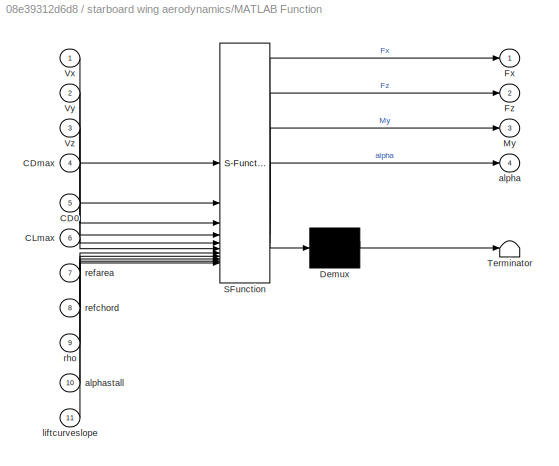
BLOCK [SubSystem] starboard wing aerodynamics/MATLAB Function
  ErrorFcn = Stateflow.Translate.translate
  NameLocation = top
  PermitHierarchicalResolution = ExplicitOnly
  SFBlockType = MATLAB Function
  TreatAsAtomicUnit = on
BLOCK [Demux] starboard wing aerodynamics/MATLAB Function/ Demux 
  Outputs = 1
BLOCK [S-Function] starboard wing aerodynamics/MATLAB Function/ SFunction 
  EnableBusSupport = on
  FunctionName = sf_sfun
  PortCounts = [11 5]
  SFcnIsStateOwnerBlock = off
  SFunctionDeploymentMode = off
  Tag = Stateflow S-Function 3
BLOCK [Terminator] starboard wing aerodynamics/MATLAB Function/ Terminator 
BLOCK [Inport] starboard wing aerodynamics/MATLAB Function/CD0
  Port = 5
BLOCK [Inport] starboard wing aerodynamics/MATLAB Function/CDmax
  Port = 4
BLOCK [Inport] starboard wing aerodynamics/MATLAB Function/CLmax
  Port = 6
BLOCK [Outport] starboard wing aerodynamics/MATLAB Function/Fx
BLOCK [Outport] starboard wing aerodynamics/MATLAB Function/Fz
  Port = 2
BLOCK [Outport] starboard wing aerodynamics/MATLAB Function/My
  Port = 3
BLOCK [Inport] starboard wing aerodynamics/MATLAB Function/Vx
BLOCK [Inport] starboard wing aerodynamics/MATLAB Function/Vy
  Port = 2
BLOCK [Inport] starboard wing aerodynamics/MATLAB Function/Vz
  Port = 3
BLOCK [Outport] starboard wing aerodynamics/MATLAB Function/alpha
  Port = 4
BLOCK [Inport] starboard wing aerodynamics/MATLAB Function/alphastall
  Port = 10
BLOCK [Inport] starboard wing aerodynamics/MATLAB Function/liftcurveslope
  Port = 11
BLOCK [Inport] starboard wing aerodynamics/MATLAB Function/refarea
  Port = 7
BLOCK [Inport] starboard wing aerodynamics/MATLAB Function/refchord
  Port = 8
BLOCK [Inport] starboard wing aerodynamics/MATLAB Function/rho
  Port = 9
BLOCK [Outport] starboard wing aerodynamics/Out1
  NameLocation = top
BLOCK [Reference] starboard wing aerodynamics/PS-Simulink Converter  REF=nesl_utility/PS-Simulink
Converter
  SourceBlock = nesl_utility/PS-Simulink\nConverter
  SourceType = PS-Simulink\nConverter
BLOCK [Reference] starboard wing aerodynamics/PS-Simulink Converter1  REF=nesl_utility/PS-Simulink
Converter
  SourceBlock = nesl_utility/PS-Simulink\nConverter
  SourceType = PS-Simulink\nConverter
BLOCK [Reference] starboard wing aerodynamics/PS-Simulink Converter2  REF=nesl_utility/PS-Simulink
Converter
  SourceBlock = nesl_utility/PS-Simulink\nConverter
  SourceType = PS-Simulink\nConverter
BLOCK [Reference] starboard wing aerodynamics/PS-Simulink Converter3  REF=nesl_utility/PS-Simulink
Converter
  SourceBlock = nesl_utility/PS-Simulink\nConverter
  SourceType = PS-Simulink\nConverter
BLOCK [Reference] starboard wing aerodynamics/PS-Simulink Converter4  REF=nesl_utility/PS-Simulink
Converter
  SourceBlock = nesl_utility/PS-Simulink\nConverter
  SourceType = PS-Simulink\nConverter
BLOCK [Reference] starboard wing aerodynamics/PS-Simulink Converter5  REF=nesl_utility/PS-Simulink
Converter
  SourceBlock = nesl_utility/PS-Simulink\nConverter
  SourceType = PS-Simulink\nConverter
BLOCK [Scope] starboard wing aerodynamics/Scope
  Floating = off
  NumInputPorts = 1
BLOCK [Scope] starboard wing aerodynamics/Scope1
  Floating = off
  NumInputPorts = 1
BLOCK [Scope] starboard wing aerodynamics/Scope2
  Floating = off
  NumInputPorts = 1
BLOCK [Scope] starboard wing aerodynamics/Scope3
  Floating = off
  NumInputPorts = 1
BLOCK [Scope] starboard wing aerodynamics/Scope4
  Floating = off
  NumInputPorts = 1
BLOCK [Scope] starboard wing aerodynamics/Scope5
  Floating = off
  NumInputPorts = 1
BLOCK [Reference] starboard wing aerodynamics/Simulink-PS Converter  REF=nesl_utility/Simulink-PS
Converter
  NameLocation = top
  SourceBlock = nesl_utility/Simulink-PS\nConverter
  SourceType = Simulink-PS\nConverter
BLOCK [Reference] starboard wing aerodynamics/Simulink-PS Converter1  REF=nesl_utility/Simulink-PS
Converter
  NameLocation = top
  SourceBlock = nesl_utility/Simulink-PS\nConverter
  SourceType = Simulink-PS\nConverter
BLOCK [Reference] starboard wing aerodynamics/Simulink-PS Converter2  REF=nesl_utility/Simulink-PS
Converter
  NameLocation = top
  SourceBlock = nesl_utility/Simulink-PS\nConverter
  SourceType = Simulink-PS\nConverter
BLOCK [Reference] starboard wing aerodynamics/Transform Sensor  REF=sm_lib/Frames and
Transforms/Transform
Sensor
  SourceBlock = sm_lib/Frames and\nTransforms/Transform\nSensor
  SourceType = Transform\nSensor
BLOCK [Reference] starboard wing aerodynamics/Transform Sensor1  REF=sm_lib/Frames and
Transforms/Transform
Sensor
  SourceBlock = sm_lib/Frames and\nTransforms/Transform\nSensor
  SourceType = Transform\nSensor
BLOCK [Gain] starboard wing aerodynamics/radians to degrees
  Gain = 180/pi
  NameLocation = top
BLOCK [Reference] tail  REF=sm_lib/Body Elements/Brick Solid
  NameLocation = top
  SourceBlock = sm_lib/Body Elements/Brick Solid
  SourceType = Brick Solid
BLOCK [Reference] tail setting angle  REF=sm_lib/Frames and
Transforms/Rigid
Transform
  SourceBlock = sm_lib/Frames and\nTransforms/Rigid\nTransform
  SourceType = Rigid\nTransform
BLOCK [Reference] translate to chase camera  REF=sm_lib/Frames and
Transforms/Rigid
Transform
  NameLocation = top
  SourceBlock = sm_lib/Frames and\nTransforms/Rigid\nTransform
  SourceType = Rigid\nTransform
BLOCK [Reference] translate to fin  REF=sm_lib/Frames and
Transforms/Rigid
Transform
  SourceBlock = sm_lib/Frames and\nTransforms/Rigid\nTransform
  SourceType = Rigid\nTransform
BLOCK [Reference] translate to fuselage- wing connection  REF=sm_lib/Frames and
Transforms/Rigid
Transform
  SourceBlock = sm_lib/Frames and\nTransforms/Rigid\nTransform
  SourceType = Rigid\nTransform
BLOCK [Reference] translate to fuselage- wing connection1  REF=sm_lib/Frames and
Transforms/Rigid
Transform
  SourceBlock = sm_lib/Frames and\nTransforms/Rigid\nTransform
  SourceType = Rigid\nTransform
BLOCK [Reference] translate to ground camera  REF=sm_lib/Frames and
Transforms/Rigid
Transform
  NameLocation = top
  SourceBlock = sm_lib/Frames and\nTransforms/Rigid\nTransform
  SourceType = Rigid\nTransform
BLOCK [Reference] translate to port side camera  REF=sm_lib/Frames and
Transforms/Rigid
Transform
  NameLocation = top
  SourceBlock = sm_lib/Frames and\nTransforms/Rigid\nTransform
  SourceType = Rigid\nTransform
BLOCK [Reference] translate to port side static camera  REF=sm_lib/Frames and
Transforms/Rigid
Transform
  NameLocation = top
  SourceBlock = sm_lib/Frames and\nTransforms/Rigid\nTransform
  SourceType = Rigid\nTransform
BLOCK [Reference] translate to tail  REF=sm_lib/Frames and
Transforms/Rigid
Transform
  SourceBlock = sm_lib/Frames and\nTransforms/Rigid\nTransform
  SourceType = Rigid\nTransform
BLOCK [Reference] translate wing  REF=sm_lib/Frames and
Transforms/Rigid
Transform
  SourceBlock = sm_lib/Frames and\nTransforms/Rigid\nTransform
  SourceType = Rigid\nTransform
BLOCK [Reference] translate wing1  REF=sm_lib/Frames and
Transforms/Rigid
Transform
  SourceBlock = sm_lib/Frames and\nTransforms/Rigid\nTransform
  SourceType = Rigid\nTransform
BLOCK [Reference] translate wing2  REF=sm_lib/Frames and
Transforms/Rigid
Transform
  SourceBlock = sm_lib/Frames and\nTransforms/Rigid\nTransform
  SourceType = Rigid\nTransform
BLOCK [Reference] translate wing3  REF=sm_lib/Frames and
Transforms/Rigid
Transform
  SourceBlock = sm_lib/Frames and\nTransforms/Rigid\nTransform
  SourceType = Rigid\nTransform
ANNOTATION (root): This block sets up the environment graphics; if your see an error in the graphics, or if they are proving distracting, you can comment out the block
ANNOTATION (root): Fin
ANNOTATION (root): Fuselage
ANNOTATION (root): Horizontal Tail
ANNOTATION (root): Port wing
ANNOTATION (root): Quick sensor outputs
ANNOTATION (root): Starboard wing
NET Altitude (m):1 -> Px vs Pz:2, Pz data:1, Pz:1, To Workspace:1
LINE Cameras, shadows, ground graphics/draw shadow/Derivative1:1 -> Cameras, shadows, ground graphics/draw shadow/Simulink-PS Converter3:3
NET Cameras, shadows, ground graphics/draw shadow/Derivative2:1 -> Cameras, shadows, ground graphics/draw shadow/Derivative3:1, Cameras, shadows, ground graphics/draw shadow/Simulink-PS Converter2:2
LINE Cameras, shadows, ground graphics/draw shadow/Derivative3:1 -> Cameras, shadows, ground graphics/draw shadow/Simulink-PS Converter2:3
NET Cameras, shadows, ground graphics/draw shadow/Derivative4:1 -> Cameras, shadows, ground graphics/draw shadow/Derivative5:1, Cameras, shadows, ground graphics/draw shadow/Simulink-PS Converter1:2
LINE Cameras, shadows, ground graphics/draw shadow/Derivative5:1 -> Cameras, shadows, ground graphics/draw shadow/Simulink-PS Converter1:3
NET Cameras, shadows, ground graphics/draw shadow/Derivative:1 -> Cameras, shadows, ground graphics/draw shadow/Derivative1:1, Cameras, shadows, ground graphics/draw shadow/Simulink-PS Converter3:2
NET Cameras, shadows, ground graphics/draw shadow/From2:1 -> Cameras, shadows, ground graphics/draw shadow/Derivative2:1, Cameras, shadows, ground graphics/draw shadow/Simulink-PS Converter2:1
LINE Cameras, shadows, ground graphics/draw shadow/From3:1 -> Cameras, shadows, ground graphics/draw shadow/MATLAB Function:1
NET Cameras, shadows, ground graphics/draw shadow/From:1 -> Cameras, shadows, ground graphics/draw shadow/Derivative:1, Cameras, shadows, ground graphics/draw shadow/Scope:1, Cameras, shadows, ground graphics/draw shadow/Simulink-PS Converter3:1
NET Cameras, shadows, ground graphics/draw shadow/MATLAB Function:1 -> Cameras, shadows, ground graphics/draw shadow/Derivative4:1, Cameras, shadows, ground graphics/draw shadow/Q0:1, Cameras, shadows, ground graphics/draw shadow/Simulink-PS Converter1:1
NET PS-Simulink Converter1:1 -> Py:1, To Workspace1:1
NET PS-Simulink Converter2:1 -> To Workspace3:1, Vx data:1, Vx vs Vz:1, Vx:1
NET PS-Simulink Converter3:1 -> Px data:1, Px vs Pz:1, Px:1, To Workspace2:1
NET PS-Simulink Converter4:1 -> To Workspace4:1, Vy:1
NET PS-Simulink Converter5:1 -> To Workspace5:1, Vx vs Vz:2, Vz data:1, Vz:1
NET abort sim on ground contact/MATLAB Function:1 -> abort sim on ground contact/Scope1:1, abort sim on ground contact/Stop Simulation:1
LINE abort sim on ground contact/PS-Simulink Converter8:1 -> abort sim on ground contact/MATLAB Function:1
LINE contact model - fin1/Constant1:1 -> contact model - fin1/MATLAB Function:4
LINE contact model - fin1/Constant2:1 -> contact model - fin1/MATLAB Function:5
LINE contact model - fin1/Constant:1 -> contact model - fin1/MATLAB Function:3
LINE contact model - fin1/Demux:1 -> contact model - fin1/Simulink-PS Converter1:1
LINE contact model - fin1/Demux:2 -> contact model - fin1/Simulink-PS Converter2:1
LINE contact model - fin1/Demux:3 -> contact model - fin1/Simulink-PS Converter:1
NET contact model - fin1/MATLAB Function:1 -> contact model - fin1/Demux:1, contact model - fin1/Scope:1
LINE contact model - fin1/Mux1:1 -> contact model - fin1/MATLAB Function:2
LINE contact model - fin1/Mux:1 -> contact model - fin1/MATLAB Function:1
LINE contact model - fin1/PS-Simulink Converter1:1 -> contact model - fin1/Mux:2
NET contact model - fin1/PS-Simulink Converter2:1 -> contact model - fin1/Mux:3, contact model - fin1/Scope1:1
LINE contact model - fin1/PS-Simulink Converter3:1 -> contact model - fin1/Mux1:1
LINE contact model - fin1/PS-Simulink Converter4:1 -> contact model - fin1/Mux1:2
LINE contact model - fin1/PS-Simulink Converter5:1 -> contact model - fin1/Mux1:3
LINE contact model - fin1/PS-Simulink Converter:1 -> contact model - fin1/Mux:1
LINE contact model - fin2/Constant1:1 -> contact model - fin2/MATLAB Function:4
LINE contact model - fin2/Constant2:1 -> contact model - fin2/MATLAB Function:5
LINE contact model - fin2/Constant:1 -> contact model - fin2/MATLAB Function:3
LINE contact model - fin2/Demux:1 -> contact model - fin2/Simulink-PS Converter1:1
LINE contact model - fin2/Demux:2 -> contact model - fin2/Simulink-PS Converter2:1
LINE contact model - fin2/Demux:3 -> contact model - fin2/Simulink-PS Converter:1
NET contact model - fin2/MATLAB Function:1 -> contact model - fin2/Demux:1, contact model - fin2/Scope:1
LINE contact model - fin2/Mux1:1 -> contact model - fin2/MATLAB Function:2
LINE contact model - fin2/Mux:1 -> contact model - fin2/MATLAB Function:1
LINE contact model - fin2/PS-Simulink Converter1:1 -> contact model - fin2/Mux:2
NET contact model - fin2/PS-Simulink Converter2:1 -> contact model - fin2/Mux:3, contact model - fin2/Scope1:1
LINE contact model - fin2/PS-Simulink Converter3:1 -> contact model - fin2/Mux1:1
LINE contact model - fin2/PS-Simulink Converter4:1 -> contact model - fin2/Mux1:2
LINE contact model - fin2/PS-Simulink Converter5:1 -> contact model - fin2/Mux1:3
LINE contact model - fin2/PS-Simulink Converter:1 -> contact model - fin2/Mux:1
LINE contact model - fuselage1/Constant1:1 -> contact model - fuselage1/MATLAB Function:4
LINE contact model - fuselage1/Constant2:1 -> contact model - fuselage1/MATLAB Function:5
LINE contact model - fuselage1/Constant:1 -> contact model - fuselage1/MATLAB Function:3
LINE contact model - fuselage1/Demux:1 -> contact model - fuselage1/Simulink-PS Converter1:1
LINE contact model - fuselage1/Demux:2 -> contact model - fuselage1/Simulink-PS Converter2:1
LINE contact model - fuselage1/Demux:3 -> contact model - fuselage1/Simulink-PS Converter:1
NET contact model - fuselage1/MATLAB Function:1 -> contact model - fuselage1/Demux:1, contact model - fuselage1/Scope:1
LINE contact model - fuselage1/Mux1:1 -> contact model - fuselage1/MATLAB Function:2
LINE contact model - fuselage1/Mux:1 -> contact model - fuselage1/MATLAB Function:1
LINE contact model - fuselage1/PS-Simulink Converter1:1 -> contact model - fuselage1/Mux:2
NET contact model - fuselage1/PS-Simulink Converter2:1 -> contact model - fuselage1/Mux:3, contact model - fuselage1/Scope1:1
LINE contact model - fuselage1/PS-Simulink Converter3:1 -> contact model - fuselage1/Mux1:1
LINE contact model - fuselage1/PS-Simulink Converter4:1 -> contact model - fuselage1/Mux1:2
LINE contact model - fuselage1/PS-Simulink Converter5:1 -> contact model - fuselage1/Mux1:3
LINE contact model - fuselage1/PS-Simulink Converter:1 -> contact model - fuselage1/Mux:1
LINE contact model - fuselage2/Constant1:1 -> contact model - fuselage2/MATLAB Function:4
LINE contact model - fuselage2/Constant2:1 -> contact model - fuselage2/MATLAB Function:5
LINE contact model - fuselage2/Constant:1 -> contact model - fuselage2/MATLAB Function:3
LINE contact model - fuselage2/Demux:1 -> contact model - fuselage2/Simulink-PS Converter1:1
LINE contact model - fuselage2/Demux:2 -> contact model - fuselage2/Simulink-PS Converter2:1
LINE contact model - fuselage2/Demux:3 -> contact model - fuselage2/Simulink-PS Converter:1
NET contact model - fuselage2/MATLAB Function:1 -> contact model - fuselage2/Demux:1, contact model - fuselage2/Scope:1
LINE contact model - fuselage2/Mux1:1 -> contact model - fuselage2/MATLAB Function:2
LINE contact model - fuselage2/Mux:1 -> contact model - fuselage2/MATLAB Function:1
LINE contact model - fuselage2/PS-Simulink Converter1:1 -> contact model - fuselage2/Mux:2
NET contact model - fuselage2/PS-Simulink Converter2:1 -> contact model - fuselage2/Mux:3, contact model - fuselage2/Scope1:1
LINE contact model - fuselage2/PS-Simulink Converter3:1 -> contact model - fuselage2/Mux1:1
LINE contact model - fuselage2/PS-Simulink Converter4:1 -> contact model - fuselage2/Mux1:2
LINE contact model - fuselage2/PS-Simulink Converter5:1 -> contact model - fuselage2/Mux1:3
LINE contact model - fuselage2/PS-Simulink Converter:1 -> contact model - fuselage2/Mux:1
LINE contact model - port wing/Constant1:1 -> contact model - port wing/MATLAB Function:4
LINE contact model - port wing/Constant2:1 -> contact model - port wing/MATLAB Function:5
LINE contact model - port wing/Constant:1 -> contact model - port wing/MATLAB Function:3
LINE contact model - port wing/Demux:1 -> contact model - port wing/Simulink-PS Converter1:1
LINE contact model - port wing/Demux:2 -> contact model - port wing/Simulink-PS Converter2:1
LINE contact model - port wing/Demux:3 -> contact model - port wing/Simulink-PS Converter:1
NET contact model - port wing/MATLAB Function:1 -> contact model - port wing/Demux:1, contact model - port wing/Scope:1
LINE contact model - port wing/Mux1:1 -> contact model - port wing/MATLAB Function:2
LINE contact model - port wing/Mux:1 -> contact model - port wing/MATLAB Function:1
LINE contact model - port wing/PS-Simulink Converter1:1 -> contact model - port wing/Mux:2
NET contact model - port wing/PS-Simulink Converter2:1 -> contact model - port wing/Mux:3, contact model - port wing/Scope1:1
LINE contact model - port wing/PS-Simulink Converter3:1 -> contact model - port wing/Mux1:1
LINE contact model - port wing/PS-Simulink Converter4:1 -> contact model - port wing/Mux1:2
LINE contact model - port wing/PS-Simulink Converter5:1 -> contact model - port wing/Mux1:3
LINE contact model - port wing/PS-Simulink Converter:1 -> contact model - port wing/Mux:1
LINE contact model - stbd wing/Constant1:1 -> contact model - stbd wing/MATLAB Function:4
LINE contact model - stbd wing/Constant2:1 -> contact model - stbd wing/MATLAB Function:5
LINE contact model - stbd wing/Constant:1 -> contact model - stbd wing/MATLAB Function:3
LINE contact model - stbd wing/Demux:1 -> contact model - stbd wing/Simulink-PS Converter1:1
LINE contact model - stbd wing/Demux:2 -> contact model - stbd wing/Simulink-PS Converter2:1
LINE contact model - stbd wing/Demux:3 -> contact model - stbd wing/Simulink-PS Converter:1
NET contact model - stbd wing/MATLAB Function:1 -> contact model - stbd wing/Demux:1, contact model - stbd wing/Scope:1
LINE contact model - stbd wing/Mux1:1 -> contact model - stbd wing/MATLAB Function:2
LINE contact model - stbd wing/Mux:1 -> contact model - stbd wing/MATLAB Function:1
LINE contact model - stbd wing/PS-Simulink Converter1:1 -> contact model - stbd wing/Mux:2
NET contact model - stbd wing/PS-Simulink Converter2:1 -> contact model - stbd wing/Mux:3, contact model - stbd wing/Scope1:1
LINE contact model - stbd wing/PS-Simulink Converter3:1 -> contact model - stbd wing/Mux1:1
LINE contact model - stbd wing/PS-Simulink Converter4:1 -> contact model - stbd wing/Mux1:2
LINE contact model - stbd wing/PS-Simulink Converter5:1 -> contact model - stbd wing/Mux1:3
LINE contact model - stbd wing/PS-Simulink Converter:1 -> contact model - stbd wing/Mux:1
LINE contact model - tail 2/Constant1:1 -> contact model - tail 2/MATLAB Function:4
LINE contact model - tail 2/Constant2:1 -> contact model - tail 2/MATLAB Function:5
LINE contact model - tail 2/Constant:1 -> contact model - tail 2/MATLAB Function:3
LINE contact model - tail 2/Demux:1 -> contact model - tail 2/Simulink-PS Converter1:1
LINE contact model - tail 2/Demux:2 -> contact model - tail 2/Simulink-PS Converter2:1
LINE contact model - tail 2/Demux:3 -> contact model - tail 2/Simulink-PS Converter:1
NET contact model - tail 2/MATLAB Function:1 -> contact model - tail 2/Demux:1, contact model - tail 2/Scope:1
LINE contact model - tail 2/Mux1:1 -> contact model - tail 2/MATLAB Function:2
LINE contact model - tail 2/Mux:1 -> contact model - tail 2/MATLAB Function:1
LINE contact model - tail 2/PS-Simulink Converter1:1 -> contact model - tail 2/Mux:2
NET contact model - tail 2/PS-Simulink Converter2:1 -> contact model - tail 2/Mux:3, contact model - tail 2/Scope1:1
LINE contact model - tail 2/PS-Simulink Converter3:1 -> contact model - tail 2/Mux1:1
LINE contact model - tail 2/PS-Simulink Converter4:1 -> contact model - tail 2/Mux1:2
LINE contact model - tail 2/PS-Simulink Converter5:1 -> contact model - tail 2/Mux1:3
LINE contact model - tail 2/PS-Simulink Converter:1 -> contact model - tail 2/Mux:1
LINE contact model tail2/Constant1:1 -> contact model tail2/MATLAB Function:4
LINE contact model tail2/Constant2:1 -> contact model tail2/MATLAB Function:5
LINE contact model tail2/Constant:1 -> contact model tail2/MATLAB Function:3
LINE contact model tail2/Demux:1 -> contact model tail2/Simulink-PS Converter1:1
LINE contact model tail2/Demux:2 -> contact model tail2/Simulink-PS Converter2:1
LINE contact model tail2/Demux:3 -> contact model tail2/Simulink-PS Converter:1
NET contact model tail2/MATLAB Function:1 -> contact model tail2/Demux:1, contact model tail2/Scope:1
LINE contact model tail2/Mux1:1 -> contact model tail2/MATLAB Function:2
LINE contact model tail2/Mux:1 -> contact model tail2/MATLAB Function:1
LINE contact model tail2/PS-Simulink Converter1:1 -> contact model tail2/Mux:2
NET contact model tail2/PS-Simulink Converter2:1 -> contact model tail2/Mux:3, contact model tail2/Scope1:1
LINE contact model tail2/PS-Simulink Converter3:1 -> contact model tail2/Mux1:1
LINE contact model tail2/PS-Simulink Converter4:1 -> contact model tail2/Mux1:2
LINE contact model tail2/PS-Simulink Converter5:1 -> contact model tail2/Mux1:3
LINE contact model tail2/PS-Simulink Converter:1 -> contact model tail2/Mux:1
LINE fin aerodynamics/Constant1:1 -> fin aerodynamics/MATLAB Function:8
LINE fin aerodynamics/Constant2:1 -> fin aerodynamics/MATLAB Function:7
LINE fin aerodynamics/Constant4:1 -> fin aerodynamics/MATLAB Function:6
LINE fin aerodynamics/Constant5:1 -> fin aerodynamics/MATLAB Function:4
LINE fin aerodynamics/Constant6:1 -> fin aerodynamics/MATLAB Function:5
LINE fin aerodynamics/Constant7:1 -> fin aerodynamics/MATLAB Function:10
LINE fin aerodynamics/Constant8:1 -> fin aerodynamics/MATLAB Function:11
LINE fin aerodynamics/Constant:1 -> fin aerodynamics/MATLAB Function:9
LINE fin aerodynamics/MATLAB Function:1 -> fin aerodynamics/Simulink-PS Converter:1
LINE fin aerodynamics/MATLAB Function:2 -> fin aerodynamics/Simulink-PS Converter1:1
LINE fin aerodynamics/MATLAB Function:3 -> fin aerodynamics/Simulink-PS Converter2:1
LINE fin aerodynamics/PS-Simulink Converter1:1 -> fin aerodynamics/Scope1:1
LINE fin aerodynamics/PS-Simulink Converter2:1 -> fin aerodynamics/Scope2:1
NET fin aerodynamics/PS-Simulink Converter3:1 -> fin aerodynamics/MATLAB Function:1, fin aerodynamics/Scope3:1
NET fin aerodynamics/PS-Simulink Converter4:1 -> fin aerodynamics/MATLAB Function:2, fin aerodynamics/Scope4:1
NET fin aerodynamics/PS-Simulink Converter5:1 -> fin aerodynamics/MATLAB Function:3, fin aerodynamics/Scope5:1
LINE fin aerodynamics/PS-Simulink Converter:1 -> fin aerodynamics/Scope:1
LINE horizontal tail aerodynamics/Constant1:1 -> horizontal tail aerodynamics/MATLAB Function:8
LINE horizontal tail aerodynamics/Constant2:1 -> horizontal tail aerodynamics/MATLAB Function:7
LINE horizontal tail aerodynamics/Constant4:1 -> horizontal tail aerodynamics/MATLAB Function:6
LINE horizontal tail aerodynamics/Constant5:1 -> horizontal tail aerodynamics/MATLAB Function:4
LINE horizontal tail aerodynamics/Constant6:1 -> horizontal tail aerodynamics/MATLAB Function:5
LINE horizontal tail aerodynamics/Constant7:1 -> horizontal tail aerodynamics/MATLAB Function:10
LINE horizontal tail aerodynamics/Constant8:1 -> horizontal tail aerodynamics/MATLAB Function:11
LINE horizontal tail aerodynamics/Constant:1 -> horizontal tail aerodynamics/MATLAB Function:9
LINE horizontal tail aerodynamics/MATLAB Function:1 -> horizontal tail aerodynamics/Simulink-PS Converter:1
LINE horizontal tail aerodynamics/MATLAB Function:2 -> horizontal tail aerodynamics/Simulink-PS Converter1:1
LINE horizontal tail aerodynamics/MATLAB Function:3 -> horizontal tail aerodynamics/Simulink-PS Converter2:1
LINE horizontal tail aerodynamics/PS-Simulink Converter1:1 -> horizontal tail aerodynamics/Scope1:1
LINE horizontal tail aerodynamics/PS-Simulink Converter2:1 -> horizontal tail aerodynamics/Scope2:1
NET horizontal tail aerodynamics/PS-Simulink Converter3:1 -> horizontal tail aerodynamics/MATLAB Function:1, horizontal tail aerodynamics/Scope3:1
NET horizontal tail aerodynamics/PS-Simulink Converter4:1 -> horizontal tail aerodynamics/MATLAB Function:2, horizontal tail aerodynamics/Scope4:1
NET horizontal tail aerodynamics/PS-Simulink Converter5:1 -> horizontal tail aerodynamics/MATLAB Function:3, horizontal tail aerodynamics/Scope5:1
LINE horizontal tail aerodynamics/PS-Simulink Converter:1 -> horizontal tail aerodynamics/Scope:1
LINE port wing aerodynamics/Constant1:1 -> port wing aerodynamics/MATLAB Function:8
LINE port wing aerodynamics/Constant2:1 -> port wing aerodynamics/MATLAB Function:7
LINE port wing aerodynamics/Constant4:1 -> port wing aerodynamics/MATLAB Function:6
LINE port wing aerodynamics/Constant5:1 -> port wing aerodynamics/MATLAB Function:4
LINE port wing aerodynamics/Constant6:1 -> port wing aerodynamics/MATLAB Function:5
NET port wing aerodynamics/Constant7:1 -> port wing aerodynamics/MATLAB Function:10, port wing aerodynamics/Scope6:1
LINE port wing aerodynamics/Constant8:1 -> port wing aerodynamics/MATLAB Function:11
LINE port wing aerodynamics/Constant:1 -> port wing aerodynamics/MATLAB Function:9
LINE port wing aerodynamics/MATLAB Function:1 -> port wing aerodynamics/Simulink-PS Converter:1
LINE port wing aerodynamics/MATLAB Function:2 -> port wing aerodynamics/Simulink-PS Converter1:1
LINE port wing aerodynamics/MATLAB Function:3 -> port wing aerodynamics/Simulink-PS Converter2:1
LINE port wing aerodynamics/PS-Simulink Converter1:1 -> port wing aerodynamics/Scope1:1
LINE port wing aerodynamics/PS-Simulink Converter2:1 -> port wing aerodynamics/Scope2:1
NET port wing aerodynamics/PS-Simulink Converter3:1 -> port wing aerodynamics/MATLAB Function:1, port wing aerodynamics/Scope3:1
NET port wing aerodynamics/PS-Simulink Converter4:1 -> port wing aerodynamics/MATLAB Function:2, port wing aerodynamics/Scope4:1
NET port wing aerodynamics/PS-Simulink Converter5:1 -> port wing aerodynamics/MATLAB Function:3, port wing aerodynamics/Scope5:1
LINE port wing aerodynamics/PS-Simulink Converter:1 -> port wing aerodynamics/Scope:1
LINE sensing/Demux:1 -> sensing/Scope:1
LINE sensing/Demux:2 -> sensing/Scope2:1
LINE sensing/Demux:3 -> sensing/Scope3:1
LINE sensing/MATLAB Function:1 -> sensing/Out1:1
LINE sensing/Mux:1 -> sensing/MATLAB Function:1
NET sensing/PS-Simulink Converter1:1 -> sensing/Goto4:1, sensing/Scope1:1
LINE sensing/PS-Simulink Converter2:1 -> sensing/Demux:1
NET sensing/PS-Simulink Converter3:1 -> sensing/Mux:1, sensing/Scope4:1
NET sensing/PS-Simulink Converter4:1 -> sensing/Mux:2, sensing/Scope5:1
NET sensing/PS-Simulink Converter5:1 -> sensing/Mux:3, sensing/Scope6:1
LINE sensing/PS-Simulink Converter6:1 -> sensing/Goto1:1
LINE sensing/PS-Simulink Converter8:1 -> sensing/Goto2:1
LINE sensing/PS-Simulink Converter9:1 -> sensing/Goto3:1
LINE sensing:1 -> airspeed:1
LINE starboard wing aerodynamics/Constant1:1 -> starboard wing aerodynamics/MATLAB Function:8
LINE starboard wing aerodynamics/Constant2:1 -> starboard wing aerodynamics/MATLAB Function:7
LINE starboard wing aerodynamics/Constant4:1 -> starboard wing aerodynamics/MATLAB Function:6
LINE starboard wing aerodynamics/Constant5:1 -> starboard wing aerodynamics/MATLAB Function:4
LINE starboard wing aerodynamics/Constant6:1 -> starboard wing aerodynamics/MATLAB Function:5
LINE starboard wing aerodynamics/Constant7:1 -> starboard wing aerodynamics/MATLAB Function:10
LINE starboard wing aerodynamics/Constant8:1 -> starboard wing aerodynamics/MATLAB Function:11
LINE starboard wing aerodynamics/Constant:1 -> starboard wing aerodynamics/MATLAB Function:9
LINE starboard wing aerodynamics/MATLAB Function:1 -> starboard wing aerodynamics/Simulink-PS Converter:1
LINE starboard wing aerodynamics/MATLAB Function:2 -> starboard wing aerodynamics/Simulink-PS Converter1:1
LINE starboard wing aerodynamics/MATLAB Function:3 -> starboard wing aerodynamics/Simulink-PS Converter2:1
LINE starboard wing aerodynamics/MATLAB Function:4 -> starboard wing aerodynamics/radians to degrees:1
LINE starboard wing aerodynamics/PS-Simulink Converter1:1 -> starboard wing aerodynamics/Scope1:1
LINE starboard wing aerodynamics/PS-Simulink Converter2:1 -> starboard wing aerodynamics/Scope2:1
NET starboard wing aerodynamics/PS-Simulink Converter3:1 -> starboard wing aerodynamics/MATLAB Function:1, starboard wing aerodynamics/Scope3:1
NET starboard wing aerodynamics/PS-Simulink Converter4:1 -> starboard wing aerodynamics/MATLAB Function:2, starboard wing aerodynamics/Scope4:1
NET starboard wing aerodynamics/PS-Simulink Converter5:1 -> starboard wing aerodynamics/MATLAB Function:3, starboard wing aerodynamics/Scope5:1
LINE starboard wing aerodynamics/PS-Simulink Converter:1 -> starboard wing aerodynamics/Scope:1
LINE starboard wing aerodynamics/radians to degrees:1 -> starboard wing aerodynamics/Out1:1
LINE starboard wing aerodynamics:1 -> Scope:1
PNET net1: 6-DOF Joint1:LConn1 -- Cameras, shadows, ground graphics:LConn1 -- Mechanism Configuration:RConn1 -- Solver Configuration:RConn1 -- World Frame:RConn1 -- translate to ground camera:LConn1 -- translate to port side static camera:LConn1
PLINE 6-DOF Joint1:RConn1 -- set aircraft initial position:LConn1
PLINE 6-DOF Joint1:RConn2 -- PS-Simulink Converter3:LConn1
PLINE 6-DOF Joint1:RConn3 -- PS-Simulink Converter2:LConn1
PLINE 6-DOF Joint1:RConn4 -- PS-Simulink Converter1:LConn1
PLINE 6-DOF Joint1:RConn5 -- PS-Simulink Converter4:LConn1
PLINE 6-DOF Joint1:RConn6 -- Altitude (m):LConn1
PLINE 6-DOF Joint1:RConn7 -- PS-Simulink Converter5:LConn1
PLINE CG marker:RConn1 -- fuselage:LConn5
PLINE Cameras, shadows, ground graphics/File Solid:RConn1 -- Cameras, shadows, ground graphics/Weld Joint6:RConn1
PLINE Cameras, shadows, ground graphics/Sugden centre graphic/door:RConn1 -- Cameras, shadows, ground graphics/Sugden centre graphic/translate door:RConn1
PLINE Cameras, shadows, ground graphics/Sugden centre graphic/green wall:RConn1 -- Cameras, shadows, ground graphics/Sugden centre graphic/translate green wall:RConn1
PLINE Cameras, shadows, ground graphics/Sugden centre graphic/grey upper wall:RConn1 -- Cameras, shadows, ground graphics/Sugden centre graphic/translate grey upper wall:RConn1
PLINE Cameras, shadows, ground graphics/Sugden centre graphic/grey wall:RConn1 -- Cameras, shadows, ground graphics/Sugden centre graphic/translate grey wall:RConn1
PNET net2: Cameras, shadows, ground graphics/Sugden centre graphic/ground plane graphic:RConn1 -- Cameras, shadows, ground graphics/Sugden centre graphic/translate door:LConn1 -- Cameras, shadows, ground graphics/Sugden centre graphic/translate envirnonment:RConn1 -- Cameras, shadows, ground graphics/Sugden centre graphic/translate green wall:LConn1 -- Cameras, shadows, ground graphics/Sugden centre graphic/translate grey upper wall:LConn1 -- Cameras, shadows, ground graphics/Sugden centre graphic/translate grey wall:LConn1 -- Cameras, shadows, ground graphics/Sugden centre graphic/translate target:LConn1 -- Cameras, shadows, ground graphics/Sugden centre graphic/whiteline:RConn1
PNET net3: Cameras, shadows, ground graphics/Sugden centre graphic/target/Cylindrical Solid1:RConn1 -- Cameras, shadows, ground graphics/Sugden centre graphic/target/Cylindrical Solid2:RConn1 -- Cameras, shadows, ground graphics/Sugden centre graphic/target/Cylindrical Solid3:RConn1 -- Cameras, shadows, ground graphics/Sugden centre graphic/target/Cylindrical Solid:RConn1
PLINE Cameras, shadows, ground graphics/Sugden centre graphic/target:LConn1 -- Cameras, shadows, ground graphics/Sugden centre graphic/translate target:RConn1
PLINE Cameras, shadows, ground graphics/Sugden centre graphic/translate envirnonment:LConn1 -- Cameras, shadows, ground graphics/Sugden centre graphic/whiteline12:RConn1
PLINE Cameras, shadows, ground graphics/Sugden centre graphic/translatelines1:LConn1 -- Cameras, shadows, ground graphics/Sugden centre graphic/whiteline1:LConn1
PLINE Cameras, shadows, ground graphics/Sugden centre graphic/translatelines1:RConn1 -- Cameras, shadows, ground graphics/Sugden centre graphic/whiteline2:RConn1
PNET net4: Cameras, shadows, ground graphics/Sugden centre graphic/translatelines2:LConn1 -- Cameras, shadows, ground graphics/Sugden centre graphic/translatelines:LConn1 -- Cameras, shadows, ground graphics/Sugden centre graphic/whiteline:LConn1
PLINE Cameras, shadows, ground graphics/Sugden centre graphic/translatelines2:RConn1 -- Cameras, shadows, ground graphics/Sugden centre graphic/whiteline3:RConn1
PLINE Cameras, shadows, ground graphics/Sugden centre graphic/translatelines3:LConn1 -- Cameras, shadows, ground graphics/Sugden centre graphic/whiteline3:LConn1
PLINE Cameras, shadows, ground graphics/Sugden centre graphic/translatelines3:RConn1 -- Cameras, shadows, ground graphics/Sugden centre graphic/whiteline4:RConn1
PLINE Cameras, shadows, ground graphics/Sugden centre graphic/translatelines4:LConn1 -- Cameras, shadows, ground graphics/Sugden centre graphic/whiteline2:LConn1
PLINE Cameras, shadows, ground graphics/Sugden centre graphic/translatelines4:RConn1 -- Cameras, shadows, ground graphics/Sugden centre graphic/whiteline5:RConn1
PLINE Cameras, shadows, ground graphics/Sugden centre graphic/translatelines5:LConn1 -- Cameras, shadows, ground graphics/Sugden centre graphic/whiteline5:LConn1
PLINE Cameras, shadows, ground graphics/Sugden centre graphic/translatelines5:RConn1 -- Cameras, shadows, ground graphics/Sugden centre graphic/whiteline6:RConn1
PLINE Cameras, shadows, ground graphics/Sugden centre graphic/translatelines6:LConn1 -- Cameras, shadows, ground graphics/Sugden centre graphic/whiteline4:LConn1
PLINE Cameras, shadows, ground graphics/Sugden centre graphic/translatelines6:RConn1 -- Cameras, shadows, ground graphics/Sugden centre graphic/whiteline7:RConn1
PLINE Cameras, shadows, ground graphics/Sugden centre graphic/translatelines7:LConn1 -- Cameras, shadows, ground graphics/Sugden centre graphic/whiteline7:LConn1
PLINE Cameras, shadows, ground graphics/Sugden centre graphic/translatelines7:RConn1 -- Cameras, shadows, ground graphics/Sugden centre graphic/whiteline8:RConn1
PLINE Cameras, shadows, ground graphics/Sugden centre graphic/translatelines8:LConn1 -- Cameras, shadows, ground graphics/Sugden centre graphic/whiteline6:LConn1
PLINE Cameras, shadows, ground graphics/Sugden centre graphic/translatelines8:RConn1 -- Cameras, shadows, ground graphics/Sugden centre graphic/whiteline9:RConn1
PLINE Cameras, shadows, ground graphics/Sugden centre graphic/translatelines9:LConn1 -- Cameras, shadows, ground graphics/Sugden centre graphic/whiteline8:LConn1
PLINE Cameras, shadows, ground graphics/Sugden centre graphic/translatelines9:RConn1 -- Cameras, shadows, ground graphics/Sugden centre graphic/whiteline10:RConn1
PLINE Cameras, shadows, ground graphics/Sugden centre graphic/translatelines:RConn1 -- Cameras, shadows, ground graphics/Sugden centre graphic/whiteline1:RConn1
PNET net5: Cameras, shadows, ground graphics/Sugden centre graphic:LConn1 -- Cameras, shadows, ground graphics/draw shadow:LConn1 -- Cameras, shadows, ground graphics/translate ground plane:LConn1 -- Cameras, shadows, ground graphics/translate to ground camera1:RConn1
PLINE Cameras, shadows, ground graphics/Weld Joint6:LConn1 -- Cameras, shadows, ground graphics/translate ground plane:RConn1
PLINE Cameras, shadows, ground graphics/draw shadow/Planar Joint:LConn1 -- Cameras, shadows, ground graphics/draw shadow/translate shadow:RConn1
PLINE Cameras, shadows, ground graphics/draw shadow/Planar Joint:LConn2 -- Cameras, shadows, ground graphics/draw shadow/Simulink-PS Converter3:RConn1
PLINE Cameras, shadows, ground graphics/draw shadow/Planar Joint:LConn3 -- Cameras, shadows, ground graphics/draw shadow/Simulink-PS Converter2:RConn1
PLINE Cameras, shadows, ground graphics/draw shadow/Planar Joint:LConn4 -- Cameras, shadows, ground graphics/draw shadow/Simulink-PS Converter1:RConn1
PLINE Cameras, shadows, ground graphics/draw shadow/Planar Joint:RConn1 -- Cameras, shadows, ground graphics/draw shadow/fuselageshadow:RConn1
PLINE Cameras, shadows, ground graphics/draw shadow/Rectangular Joint1:RConn1 -- Cameras, shadows, ground graphics/draw shadow/translate shadow:LConn1
PLINE Cameras, shadows, ground graphics/draw shadow/fuselage-wing connection2:LConn1 -- Cameras, shadows, ground graphics/draw shadow/rotate axes2:RConn1
PLINE Cameras, shadows, ground graphics/draw shadow/fuselage-wing connection2:RConn1 -- Cameras, shadows, ground graphics/draw shadow/rotate axes7:LConn1
PLINE Cameras, shadows, ground graphics/draw shadow/fuselage-wing connection3:LConn1 -- Cameras, shadows, ground graphics/draw shadow/rotate axes8:RConn1
PLINE Cameras, shadows, ground graphics/draw shadow/fuselage-wing connection3:RConn1 -- Cameras, shadows, ground graphics/draw shadow/rotate axes9:LConn1
PLINE Cameras, shadows, ground graphics/draw shadow/fuselageshadow:LConn1 -- Cameras, shadows, ground graphics/draw shadow/translate to tail1:LConn1
PLINE Cameras, shadows, ground graphics/draw shadow/fuselageshadow:LConn2 -- Cameras, shadows, ground graphics/draw shadow/translate to fuselage- wing connection2:LConn1
PLINE Cameras, shadows, ground graphics/draw shadow/fuselageshadow:RConn2 -- Cameras, shadows, ground graphics/draw shadow/translate to fuselage- wing connection3:LConn1
PLINE Cameras, shadows, ground graphics/draw shadow/left wing2:RConn1 -- Cameras, shadows, ground graphics/draw shadow/translate wing5:RConn1
PLINE Cameras, shadows, ground graphics/draw shadow/left wing3:RConn1 -- Cameras, shadows, ground graphics/draw shadow/translate wing6:RConn1
PLINE Cameras, shadows, ground graphics/draw shadow/rotate axes2:LConn1 -- Cameras, shadows, ground graphics/draw shadow/translate to fuselage- wing connection2:RConn1
PLINE Cameras, shadows, ground graphics/draw shadow/rotate axes7:RConn1 -- Cameras, shadows, ground graphics/draw shadow/translate wing5:LConn1
PLINE Cameras, shadows, ground graphics/draw shadow/rotate axes8:LConn1 -- Cameras, shadows, ground graphics/draw shadow/translate to fuselage- wing connection3:RConn1
PLINE Cameras, shadows, ground graphics/draw shadow/rotate axes9:RConn1 -- Cameras, shadows, ground graphics/draw shadow/translate wing6:LConn1
PLINE Cameras, shadows, ground graphics/draw shadow/tail setting angle1:LConn1 -- Cameras, shadows, ground graphics/draw shadow/translate to tail1:RConn1
PLINE Cameras, shadows, ground graphics/draw shadow/tail setting angle1:RConn1 -- Cameras, shadows, ground graphics/draw shadow/translate wing4:LConn1
PLINE Cameras, shadows, ground graphics/draw shadow/tailshadow:RConn1 -- Cameras, shadows, ground graphics/draw shadow/translate wing4:RConn1
PNET net6: Cameras, shadows, ground graphics/runway graphic/ground plane graphic:RConn1 -- Cameras, shadows, ground graphics/runway graphic/translatesidelines1:LConn1 -- Cameras, shadows, ground graphics/runway graphic/translatesidelines:LConn1 -- Cameras, shadows, ground graphics/runway graphic/whiteline12:RConn1 -- Cameras, shadows, ground graphics/runway graphic/whiteline:RConn1
PLINE Cameras, shadows, ground graphics/runway graphic/sideline1:RConn1 -- Cameras, shadows, ground graphics/runway graphic/translatesidelines:RConn1
PLINE Cameras, shadows, ground graphics/runway graphic/sideline2:RConn1 -- Cameras, shadows, ground graphics/runway graphic/translatesidelines1:RConn1
PNET net7: Cameras, shadows, ground graphics/runway graphic/target/Cylindrical Solid1:RConn1 -- Cameras, shadows, ground graphics/runway graphic/target/Cylindrical Solid2:RConn1 -- Cameras, shadows, ground graphics/runway graphic/target/Cylindrical Solid3:RConn1 -- Cameras, shadows, ground graphics/runway graphic/target/Cylindrical Solid:RConn1
PNET net8: Cameras, shadows, ground graphics/runway graphic/target:LConn1 -- Cameras, shadows, ground graphics/runway graphic/translatelines9:LConn1 -- Cameras, shadows, ground graphics/runway graphic/whiteline8:LConn1
PLINE Cameras, shadows, ground graphics/runway graphic/translatelines1:LConn1 -- Cameras, shadows, ground graphics/runway graphic/whiteline1:LConn1
PLINE Cameras, shadows, ground graphics/runway graphic/translatelines1:RConn1 -- Cameras, shadows, ground graphics/runway graphic/whiteline2:RConn1
PNET net9: Cameras, shadows, ground graphics/runway graphic/translatelines2:LConn1 -- Cameras, shadows, ground graphics/runway graphic/translatelines:LConn1 -- Cameras, shadows, ground graphics/runway graphic/whiteline:LConn1
PLINE Cameras, shadows, ground graphics/runway graphic/translatelines2:RConn1 -- Cameras, shadows, ground graphics/runway graphic/whiteline3:RConn1
PLINE Cameras, shadows, ground graphics/runway graphic/translatelines3:LConn1 -- Cameras, shadows, ground graphics/runway graphic/whiteline3:LConn1
PLINE Cameras, shadows, ground graphics/runway graphic/translatelines3:RConn1 -- Cameras, shadows, ground graphics/runway graphic/whiteline4:RConn1
PLINE Cameras, shadows, ground graphics/runway graphic/translatelines4:LConn1 -- Cameras, shadows, ground graphics/runway graphic/whiteline2:LConn1
PLINE Cameras, shadows, ground graphics/runway graphic/translatelines4:RConn1 -- Cameras, shadows, ground graphics/runway graphic/whiteline5:RConn1
PLINE Cameras, shadows, ground graphics/runway graphic/translatelines5:LConn1 -- Cameras, shadows, ground graphics/runway graphic/whiteline5:LConn1
PLINE Cameras, shadows, ground graphics/runway graphic/translatelines5:RConn1 -- Cameras, shadows, ground graphics/runway graphic/whiteline6:RConn1
PLINE Cameras, shadows, ground graphics/runway graphic/translatelines6:LConn1 -- Cameras, shadows, ground graphics/runway graphic/whiteline4:LConn1
PLINE Cameras, shadows, ground graphics/runway graphic/translatelines6:RConn1 -- Cameras, shadows, ground graphics/runway graphic/whiteline7:RConn1
PLINE Cameras, shadows, ground graphics/runway graphic/translatelines7:LConn1 -- Cameras, shadows, ground graphics/runway graphic/whiteline7:LConn1
PLINE Cameras, shadows, ground graphics/runway graphic/translatelines7:RConn1 -- Cameras, shadows, ground graphics/runway graphic/whiteline8:RConn1
PLINE Cameras, shadows, ground graphics/runway graphic/translatelines8:LConn1 -- Cameras, shadows, ground graphics/runway graphic/whiteline6:LConn1
PLINE Cameras, shadows, ground graphics/runway graphic/translatelines8:RConn1 -- Cameras, shadows, ground graphics/runway graphic/whiteline9:RConn1
PLINE Cameras, shadows, ground graphics/runway graphic/translatelines9:RConn1 -- Cameras, shadows, ground graphics/runway graphic/whiteline10:RConn1
PLINE Cameras, shadows, ground graphics/runway graphic/translatelines:RConn1 -- Cameras, shadows, ground graphics/runway graphic/whiteline1:RConn1
PLINE Weld Joint1:LConn1 -- translate to fin:RConn1
PLINE Weld Joint1:RConn1 -- rotate to fin:LConn1
PLINE Weld Joint:LConn1 -- translate to tail:RConn1
PLINE Weld Joint:RConn1 -- tail setting angle:LConn1
PLINE World Frame1:RConn1 -- port wing aerodynamics:LConn2
PLINE World Frame2:RConn1 -- horizontal tail aerodynamics:LConn2
PLINE World Frame3:RConn1 -- starboard wing aerodynamics:LConn2
PLINE World Frame4:RConn1 -- fin aerodynamics:LConn2
PLINE abort sim on ground contact/PS-Simulink Converter8:LConn1 -- abort sim on ground contact/Transform Sensor:RConn2
PLINE abort sim on ground contact/Transform Sensor1:RConn1 -- abort sim on ground contact/Transform Sensor:RConn1
PLINE abort sim on ground contact/Transform Sensor:LConn1 -- abort sim on ground contact/World Frame8:RConn1
PLINE abort sim on ground contact:RConn1 -- fuselage:RConn2
PLINE contact model - fin1/1:RConn1 -- contact model - fin1/Transform Sensor:RConn1
PLINE contact model - fin1/2:RConn1 -- contact model - fin1/External Force and Torque:RConn1
PLINE contact model - fin1/External Force and Torque:LConn1 -- contact model - fin1/Simulink-PS Converter1:RConn1
PLINE contact model - fin1/External Force and Torque:LConn2 -- contact model - fin1/Simulink-PS Converter2:RConn1
PLINE contact model - fin1/External Force and Torque:LConn3 -- contact model - fin1/Simulink-PS Converter:RConn1
PLINE contact model - fin1/PS-Simulink Converter1:LConn1 -- contact model - fin1/Transform Sensor:RConn3
PLINE contact model - fin1/PS-Simulink Converter2:LConn1 -- contact model - fin1/Transform Sensor:RConn4
PLINE contact model - fin1/PS-Simulink Converter3:LConn1 -- contact model - fin1/Transform Sensor:RConn5
PLINE contact model - fin1/PS-Simulink Converter4:LConn1 -- contact model - fin1/Transform Sensor:RConn6
PLINE contact model - fin1/PS-Simulink Converter5:LConn1 -- contact model - fin1/Transform Sensor:RConn7
PLINE contact model - fin1/PS-Simulink Converter:LConn1 -- contact model - fin1/Transform Sensor:RConn2
PLINE contact model - fin1/Transform Sensor:LConn1 -- contact model - fin1/World Frame:RConn1
PLINE contact model - fin1:LConn1 -- fin:RConn2
PLINE contact model - fin1:LConn2 -- fin:LConn3
PLINE contact model - fin2/1:RConn1 -- contact model - fin2/Transform Sensor:RConn1
PLINE contact model - fin2/2:RConn1 -- contact model - fin2/External Force and Torque:RConn1
PLINE contact model - fin2/External Force and Torque:LConn1 -- contact model - fin2/Simulink-PS Converter1:RConn1
PLINE contact model - fin2/External Force and Torque:LConn2 -- contact model - fin2/Simulink-PS Converter2:RConn1
PLINE contact model - fin2/External Force and Torque:LConn3 -- contact model - fin2/Simulink-PS Converter:RConn1
PLINE contact model - fin2/PS-Simulink Converter1:LConn1 -- contact model - fin2/Transform Sensor:RConn3
PLINE contact model - fin2/PS-Simulink Converter2:LConn1 -- contact model - fin2/Transform Sensor:RConn4
PLINE contact model - fin2/PS-Simulink Converter3:LConn1 -- contact model - fin2/Transform Sensor:RConn5
PLINE contact model - fin2/PS-Simulink Converter4:LConn1 -- contact model - fin2/Transform Sensor:RConn6
PLINE contact model - fin2/PS-Simulink Converter5:LConn1 -- contact model - fin2/Transform Sensor:RConn7
PLINE contact model - fin2/PS-Simulink Converter:LConn1 -- contact model - fin2/Transform Sensor:RConn2
PLINE contact model - fin2/Transform Sensor:LConn1 -- contact model - fin2/World Frame:RConn1
PLINE contact model - fin2:LConn1 -- fin:RConn3
PLINE contact model - fin2:LConn2 -- fin:LConn4
PLINE contact model - fuselage1/1:RConn1 -- contact model - fuselage1/Transform Sensor:RConn1
PLINE contact model - fuselage1/2:RConn1 -- contact model - fuselage1/External Force and Torque:RConn1
PLINE contact model - fuselage1/External Force and Torque:LConn1 -- contact model - fuselage1/Simulink-PS Converter1:RConn1
PLINE contact model - fuselage1/External Force and Torque:LConn2 -- contact model - fuselage1/Simulink-PS Converter2:RConn1
PLINE contact model - fuselage1/External Force and Torque:LConn3 -- contact model - fuselage1/Simulink-PS Converter:RConn1
PLINE contact model - fuselage1/PS-Simulink Converter1:LConn1 -- contact model - fuselage1/Transform Sensor:RConn3
PLINE contact model - fuselage1/PS-Simulink Converter2:LConn1 -- contact model - fuselage1/Transform Sensor:RConn4
PLINE contact model - fuselage1/PS-Simulink Converter3:LConn1 -- contact model - fuselage1/Transform Sensor:RConn5
PLINE contact model - fuselage1/PS-Simulink Converter4:LConn1 -- contact model - fuselage1/Transform Sensor:RConn6
PLINE contact model - fuselage1/PS-Simulink Converter5:LConn1 -- contact model - fuselage1/Transform Sensor:RConn7
PLINE contact model - fuselage1/PS-Simulink Converter:LConn1 -- contact model - fuselage1/Transform Sensor:RConn2
PLINE contact model - fuselage1/Transform Sensor:LConn1 -- contact model - fuselage1/World Frame:RConn1
PLINE contact model - fuselage1:LConn1 -- fuselage:LConn6
PLINE contact model - fuselage1:LConn2 -- fuselage:LConn7
PLINE contact model - fuselage2/1:RConn1 -- contact model - fuselage2/Transform Sensor:RConn1
PLINE contact model - fuselage2/2:RConn1 -- contact model - fuselage2/External Force and Torque:RConn1
PLINE contact model - fuselage2/External Force and Torque:LConn1 -- contact model - fuselage2/Simulink-PS Converter1:RConn1
PLINE contact model - fuselage2/External Force and Torque:LConn2 -- contact model - fuselage2/Simulink-PS Converter2:RConn1
PLINE contact model - fuselage2/External Force and Torque:LConn3 -- contact model - fuselage2/Simulink-PS Converter:RConn1
PLINE contact model - fuselage2/PS-Simulink Converter1:LConn1 -- contact model - fuselage2/Transform Sensor:RConn3
PLINE contact model - fuselage2/PS-Simulink Converter2:LConn1 -- contact model - fuselage2/Transform Sensor:RConn4
PLINE contact model - fuselage2/PS-Simulink Converter3:LConn1 -- contact model - fuselage2/Transform Sensor:RConn5
PLINE contact model - fuselage2/PS-Simulink Converter4:LConn1 -- contact model - fuselage2/Transform Sensor:RConn6
PLINE contact model - fuselage2/PS-Simulink Converter5:LConn1 -- contact model - fuselage2/Transform Sensor:RConn7
PLINE contact model - fuselage2/PS-Simulink Converter:LConn1 -- contact model - fuselage2/Transform Sensor:RConn2
PLINE contact model - fuselage2/Transform Sensor:LConn1 -- contact model - fuselage2/World Frame:RConn1
PLINE contact model - fuselage2:LConn1 -- fuselage:RConn5
PLINE contact model - fuselage2:LConn2 -- fuselage:RConn6
PLINE contact model - port wing/1:RConn1 -- contact model - port wing/Transform Sensor:RConn1
PLINE contact model - port wing/2:RConn1 -- contact model - port wing/External Force and Torque:RConn1
PLINE contact model - port wing/External Force and Torque:LConn1 -- contact model - port wing/Simulink-PS Converter1:RConn1
PLINE contact model - port wing/External Force and Torque:LConn2 -- contact model - port wing/Simulink-PS Converter2:RConn1
PLINE contact model - port wing/External Force and Torque:LConn3 -- contact model - port wing/Simulink-PS Converter:RConn1
PLINE contact model - port wing/PS-Simulink Converter1:LConn1 -- contact model - port wing/Transform Sensor:RConn3
PLINE contact model - port wing/PS-Simulink Converter2:LConn1 -- contact model - port wing/Transform Sensor:RConn4
PLINE contact model - port wing/PS-Simulink Converter3:LConn1 -- contact model - port wing/Transform Sensor:RConn5
PLINE contact model - port wing/PS-Simulink Converter4:LConn1 -- contact model - port wing/Transform Sensor:RConn6
PLINE contact model - port wing/PS-Simulink Converter5:LConn1 -- contact model - port wing/Transform Sensor:RConn7
PLINE contact model - port wing/PS-Simulink Converter:LConn1 -- contact model - port wing/Transform Sensor:RConn2
PLINE contact model - port wing/Transform Sensor:LConn1 -- contact model - port wing/World Frame:RConn1
PLINE contact model - port wing:LConn1 -- port wing:LConn3
PLINE contact model - port wing:LConn2 -- port wing:RConn2
PLINE contact model - stbd wing/1:RConn1 -- contact model - stbd wing/Transform Sensor:RConn1
PLINE contact model - stbd wing/2:RConn1 -- contact model - stbd wing/External Force and Torque:RConn1
PLINE contact model - stbd wing/External Force and Torque:LConn1 -- contact model - stbd wing/Simulink-PS Converter1:RConn1
PLINE contact model - stbd wing/External Force and Torque:LConn2 -- contact model - stbd wing/Simulink-PS Converter2:RConn1
PLINE contact model - stbd wing/External Force and Torque:LConn3 -- contact model - stbd wing/Simulink-PS Converter:RConn1
PLINE contact model - stbd wing/PS-Simulink Converter1:LConn1 -- contact model - stbd wing/Transform Sensor:RConn3
PLINE contact model - stbd wing/PS-Simulink Converter2:LConn1 -- contact model - stbd wing/Transform Sensor:RConn4
PLINE contact model - stbd wing/PS-Simulink Converter3:LConn1 -- contact model - stbd wing/Transform Sensor:RConn5
PLINE contact model - stbd wing/PS-Simulink Converter4:LConn1 -- contact model - stbd wing/Transform Sensor:RConn6
PLINE contact model - stbd wing/PS-Simulink Converter5:LConn1 -- contact model - stbd wing/Transform Sensor:RConn7
PLINE contact model - stbd wing/PS-Simulink Converter:LConn1 -- contact model - stbd wing/Transform Sensor:RConn2
PLINE contact model - stbd wing/Transform Sensor:LConn1 -- contact model - stbd wing/World Frame:RConn1
PLINE contact model - stbd wing:LConn1 -- starboard wing:LConn3
PLINE contact model - stbd wing:LConn2 -- starboard wing:RConn2
PLINE contact model - tail 2/1:RConn1 -- contact model - tail 2/Transform Sensor:RConn1
PLINE contact model - tail 2/2:RConn1 -- contact model - tail 2/External Force and Torque:RConn1
PLINE contact model - tail 2/External Force and Torque:LConn1 -- contact model - tail 2/Simulink-PS Converter1:RConn1
PLINE contact model - tail 2/External Force and Torque:LConn2 -- contact model - tail 2/Simulink-PS Converter2:RConn1
PLINE contact model - tail 2/External Force and Torque:LConn3 -- contact model - tail 2/Simulink-PS Converter:RConn1
PLINE contact model - tail 2/PS-Simulink Converter1:LConn1 -- contact model - tail 2/Transform Sensor:RConn3
PLINE contact model - tail 2/PS-Simulink Converter2:LConn1 -- contact model - tail 2/Transform Sensor:RConn4
PLINE contact model - tail 2/PS-Simulink Converter3:LConn1 -- contact model - tail 2/Transform Sensor:RConn5
PLINE contact model - tail 2/PS-Simulink Converter4:LConn1 -- contact model - tail 2/Transform Sensor:RConn6
PLINE contact model - tail 2/PS-Simulink Converter5:LConn1 -- contact model - tail 2/Transform Sensor:RConn7
PLINE contact model - tail 2/PS-Simulink Converter:LConn1 -- contact model - tail 2/Transform Sensor:RConn2
PLINE contact model - tail 2/Transform Sensor:LConn1 -- contact model - tail 2/World Frame:RConn1
PLINE contact model - tail 2:LConn1 -- tail:RConn3
PLINE contact model - tail 2:LConn2 -- tail:LConn4
PLINE contact model tail2/1:RConn1 -- contact model tail2/Transform Sensor:RConn1
PLINE contact model tail2/2:RConn1 -- contact model tail2/External Force and Torque:RConn1
PLINE contact model tail2/External Force and Torque:LConn1 -- contact model tail2/Simulink-PS Converter1:RConn1
PLINE contact model tail2/External Force and Torque:LConn2 -- contact model tail2/Simulink-PS Converter2:RConn1
PLINE contact model tail2/External Force and Torque:LConn3 -- contact model tail2/Simulink-PS Converter:RConn1
PLINE contact model tail2/PS-Simulink Converter1:LConn1 -- contact model tail2/Transform Sensor:RConn3
PLINE contact model tail2/PS-Simulink Converter2:LConn1 -- contact model tail2/Transform Sensor:RConn4
PLINE contact model tail2/PS-Simulink Converter3:LConn1 -- contact model tail2/Transform Sensor:RConn5
PLINE contact model tail2/PS-Simulink Converter4:LConn1 -- contact model tail2/Transform Sensor:RConn6
PLINE contact model tail2/PS-Simulink Converter5:LConn1 -- contact model tail2/Transform Sensor:RConn7
PLINE contact model tail2/PS-Simulink Converter:LConn1 -- contact model tail2/Transform Sensor:RConn2
PLINE contact model tail2/Transform Sensor:LConn1 -- contact model tail2/World Frame:RConn1
PLINE contact model tail2:LConn1 -- tail:RConn2
PLINE contact model tail2:LConn2 -- tail:LConn3
PNET net10: fin aerodynamics/Conn1:RConn1 -- fin aerodynamics/Transform Sensor1:LConn1 -- fin aerodynamics/Transform Sensor:LConn1
PLINE fin aerodynamics/Conn2:RConn1 -- fin aerodynamics/External Force and Torque:RConn1
PNET net11: fin aerodynamics/Conn3:RConn1 -- fin aerodynamics/Transform Sensor1:RConn1 -- fin aerodynamics/Transform Sensor:RConn1
PLINE fin aerodynamics/External Force and Torque:LConn1 -- fin aerodynamics/Simulink-PS Converter:RConn1
PLINE fin aerodynamics/External Force and Torque:LConn2 -- fin aerodynamics/Simulink-PS Converter1:RConn1
PLINE fin aerodynamics/External Force and Torque:LConn3 -- fin aerodynamics/Simulink-PS Converter2:RConn1
PLINE fin aerodynamics/PS-Simulink Converter1:LConn1 -- fin aerodynamics/Transform Sensor1:RConn3
PLINE fin aerodynamics/PS-Simulink Converter2:LConn1 -- fin aerodynamics/Transform Sensor1:RConn4
PLINE fin aerodynamics/PS-Simulink Converter3:LConn1 -- fin aerodynamics/Transform Sensor:RConn2
PLINE fin aerodynamics/PS-Simulink Converter4:LConn1 -- fin aerodynamics/Transform Sensor:RConn3
PLINE fin aerodynamics/PS-Simulink Converter5:LConn1 -- fin aerodynamics/Transform Sensor:RConn4
PLINE fin aerodynamics/PS-Simulink Converter:LConn1 -- fin aerodynamics/Transform Sensor1:RConn2
PLINE fin aerodynamics:LConn1 -- fin:LConn1
PLINE fin aerodynamics:RConn1 -- fin:LConn2
PLINE fin:RConn1 -- translate wing3:RConn1
PLINE fuselage-wing connection1:LConn1 -- rotate axes4:RConn1
PLINE fuselage-wing connection1:RConn1 -- rotate axes5:LConn1
PLINE fuselage-wing connection:LConn1 -- rotate axes:RConn1
PLINE fuselage-wing connection:RConn1 -- rotate axes1:LConn1
PLINE fuselage:LConn1 -- translate to fuselage- wing connection:LConn1
PLINE fuselage:LConn2 -- translate to fuselage- wing connection1:LConn1
PLINE fuselage:LConn3 -- translate to tail:LConn1
PLINE fuselage:LConn4 -- translate to fin:LConn1
PLINE fuselage:RConn1 -- set aircaft intital attitude:RConn1
PLINE fuselage:RConn3 -- translate to chase camera:LConn1
PLINE fuselage:RConn4 -- translate to port side camera:LConn1
PLINE fuselage:RConn7 -- sensing:RConn1
PNET net12: horizontal tail aerodynamics/Conn1:RConn1 -- horizontal tail aerodynamics/Transform Sensor1:LConn1 -- horizontal tail aerodynamics/Transform Sensor:LConn1
PLINE horizontal tail aerodynamics/Conn2:RConn1 -- horizontal tail aerodynamics/External Force and Torque:RConn1
PNET net13: horizontal tail aerodynamics/Conn3:RConn1 -- horizontal tail aerodynamics/Transform Sensor1:RConn1 -- horizontal tail aerodynamics/Transform Sensor:RConn1
PLINE horizontal tail aerodynamics/External Force and Torque:LConn1 -- horizontal tail aerodynamics/Simulink-PS Converter:RConn1
PLINE horizontal tail aerodynamics/External Force and Torque:LConn2 -- horizontal tail aerodynamics/Simulink-PS Converter1:RConn1
PLINE horizontal tail aerodynamics/External Force and Torque:LConn3 -- horizontal tail aerodynamics/Simulink-PS Converter2:RConn1
PLINE horizontal tail aerodynamics/PS-Simulink Converter1:LConn1 -- horizontal tail aerodynamics/Transform Sensor1:RConn3
PLINE horizontal tail aerodynamics/PS-Simulink Converter2:LConn1 -- horizontal tail aerodynamics/Transform Sensor1:RConn4
PLINE horizontal tail aerodynamics/PS-Simulink Converter3:LConn1 -- horizontal tail aerodynamics/Transform Sensor:RConn2
PLINE horizontal tail aerodynamics/PS-Simulink Converter4:LConn1 -- horizontal tail aerodynamics/Transform Sensor:RConn3
PLINE horizontal tail aerodynamics/PS-Simulink Converter5:LConn1 -- horizontal tail aerodynamics/Transform Sensor:RConn4
PLINE horizontal tail aerodynamics/PS-Simulink Converter:LConn1 -- horizontal tail aerodynamics/Transform Sensor1:RConn2
PLINE horizontal tail aerodynamics:LConn1 -- tail:LConn1
PLINE horizontal tail aerodynamics:RConn1 -- tail:LConn2
PNET net14: port wing aerodynamics/Conn1:RConn1 -- port wing aerodynamics/Transform Sensor1:LConn1 -- port wing aerodynamics/Transform Sensor:LConn1
PLINE port wing aerodynamics/Conn2:RConn1 -- port wing aerodynamics/External Force and Torque:RConn1
PNET net15: port wing aerodynamics/Conn3:RConn1 -- port wing aerodynamics/Transform Sensor1:RConn1 -- port wing aerodynamics/Transform Sensor:RConn1
PLINE port wing aerodynamics/External Force and Torque:LConn1 -- port wing aerodynamics/Simulink-PS Converter:RConn1
PLINE port wing aerodynamics/External Force and Torque:LConn2 -- port wing aerodynamics/Simulink-PS Converter1:RConn1
PLINE port wing aerodynamics/External Force and Torque:LConn3 -- port wing aerodynamics/Simulink-PS Converter2:RConn1
PLINE port wing aerodynamics/PS-Simulink Converter1:LConn1 -- port wing aerodynamics/Transform Sensor1:RConn3
PLINE port wing aerodynamics/PS-Simulink Converter2:LConn1 -- port wing aerodynamics/Transform Sensor1:RConn4
PLINE port wing aerodynamics/PS-Simulink Converter3:LConn1 -- port wing aerodynamics/Transform Sensor:RConn2
PLINE port wing aerodynamics/PS-Simulink Converter4:LConn1 -- port wing aerodynamics/Transform Sensor:RConn3
PLINE port wing aerodynamics/PS-Simulink Converter5:LConn1 -- port wing aerodynamics/Transform Sensor:RConn4
PLINE port wing aerodynamics/PS-Simulink Converter:LConn1 -- port wing aerodynamics/Transform Sensor1:RConn2
PLINE port wing aerodynamics:LConn1 -- port wing:LConn1
PLINE port wing aerodynamics:RConn1 -- port wing:LConn2
PLINE port wing:RConn1 -- translate wing:RConn1
PLINE rotate axes1:RConn1 -- translate wing:LConn1
PLINE rotate axes4:LConn1 -- translate to fuselage- wing connection1:RConn1
PLINE rotate axes5:RConn1 -- translate wing2:LConn1
PLINE rotate axes:LConn1 -- translate to fuselage- wing connection:RConn1
PLINE rotate to fin:RConn1 -- translate wing3:LConn1
PLINE sensing/PS-Simulink Converter1:LConn1 -- sensing/Transform Sensor:RConn2
PLINE sensing/PS-Simulink Converter2:LConn1 -- sensing/Transform Sensor:RConn3
PLINE sensing/PS-Simulink Converter3:LConn1 -- sensing/Transform Sensor:RConn7
PLINE sensing/PS-Simulink Converter4:LConn1 -- sensing/Transform Sensor:RConn8
PLINE sensing/PS-Simulink Converter5:LConn1 -- sensing/Transform Sensor:RConn9
PLINE sensing/PS-Simulink Converter6:LConn1 -- sensing/Transform Sensor:RConn4
PLINE sensing/PS-Simulink Converter8:LConn1 -- sensing/Transform Sensor:RConn5
PLINE sensing/PS-Simulink Converter9:LConn1 -- sensing/Transform Sensor:RConn6
PLINE sensing/Transform Sensor1:RConn1 -- sensing/Transform Sensor:RConn1
PLINE sensing/Transform Sensor:LConn1 -- sensing/World Frame8:RConn1
PLINE set aircaft intital attitude:LConn1 -- set initial attitude:RConn1
PLINE set aircraft initial position:RConn1 -- set initial attitude:LConn1
PNET net16: starboard wing aerodynamics/Conn1:RConn1 -- starboard wing aerodynamics/Transform Sensor1:LConn1 -- starboard wing aerodynamics/Transform Sensor:LConn1
PLINE starboard wing aerodynamics/Conn2:RConn1 -- starboard wing aerodynamics/External Force and Torque:RConn1
PNET net17: starboard wing aerodynamics/Conn3:RConn1 -- starboard wing aerodynamics/Transform Sensor1:RConn1 -- starboard wing aerodynamics/Transform Sensor:RConn1
PLINE starboard wing aerodynamics/External Force and Torque:LConn1 -- starboard wing aerodynamics/Simulink-PS Converter:RConn1
PLINE starboard wing aerodynamics/External Force and Torque:LConn2 -- starboard wing aerodynamics/Simulink-PS Converter1:RConn1
PLINE starboard wing aerodynamics/External Force and Torque:LConn3 -- starboard wing aerodynamics/Simulink-PS Converter2:RConn1
PLINE starboard wing aerodynamics/PS-Simulink Converter1:LConn1 -- starboard wing aerodynamics/Transform Sensor1:RConn3
PLINE starboard wing aerodynamics/PS-Simulink Converter2:LConn1 -- starboard wing aerodynamics/Transform Sensor1:RConn4
PLINE starboard wing aerodynamics/PS-Simulink Converter3:LConn1 -- starboard wing aerodynamics/Transform Sensor:RConn2
PLINE starboard wing aerodynamics/PS-Simulink Converter4:LConn1 -- starboard wing aerodynamics/Transform Sensor:RConn3
PLINE starboard wing aerodynamics/PS-Simulink Converter5:LConn1 -- starboard wing aerodynamics/Transform Sensor:RConn4
PLINE starboard wing aerodynamics/PS-Simulink Converter:LConn1 -- starboard wing aerodynamics/Transform Sensor1:RConn2
PLINE starboard wing aerodynamics:LConn1 -- starboard wing:LConn1
PLINE starboard wing aerodynamics:RConn1 -- starboard wing:LConn2
PLINE starboard wing:RConn1 -- translate wing2:RConn1
PLINE tail setting angle:RConn1 -- translate wing1:LConn1
PLINE tail:RConn1 -- translate wing1:RConn1
note: NET lines group one-source signal fan-out (src -> all destinations, sorted); 1:1 wires keep LINE; PNET lines group multi-terminal physical nets as a canonical sorted terminal list (undirected conserving connections); 2-terminal nets keep the pairwise PLINE form
CHART abort sim on ground contact/MATLAB Function states=1 transitions=1
  STATE_LABEL 'eML_blk_kernel()'
  STATE_LABEL 'SCRIPT:\nfunction y = fcn(u)\n\ny=0;\n\nif u<0\n    \n    y=1;\n    \nend\n\n'
CHART sensing/MATLAB Function states=1 transitions=1
  STATE_LABEL 'eML_blk_kernel()'
  STATE_LABEL 'SCRIPT:\nfunction y = fcn(u)\n\ny = norm(u);\n'
CHART Cameras, shadows, ground graphics/draw shadow/MATLAB Function states=1 transitions=1
  STATE_LABEL 'eML_blk_kernel()'
  STATE_LABEL 'SCRIPT:\nfunction yaw  = fcn(u)\n\n%rotation matrix, yaw, pitch, roll, as in https://en.wikipedia.org/wiki/Rotation_matrix\n\nR11 = u(1,1); %cos(yaw)*cos(pitch) component\nR12 = u(1,2); %sin(yaw)*cos(pitch) component\nR13 = u(1,3);\nR21 = u(2,1);\nR22 = u(2,2);\nR23 = u(2,3);\nR31 = u(3,1);\nR32 = u(3,2);\nR33 = u(3,3);\n\n\nyaw=-atan2(R12,R11);'
CHART contact model - port wing/MATLAB Function states=1 transitions=1
  STATE_LABEL 'eML_blk_kernel()'
  STATE_LABEL 'SCRIPT:\nfunction F = fcn(x,xdot,groundstiffness,grounddamping,kineticfriction)\n\nFx=0;\nFy=0;\nFz=0;\n\nif x(3)<0 %if underground\n    \n   Fz=-groundstiffness*x(3)-grounddamping*xdot(3); %ground reaction force\n   \n   Fx=-kineticfriction*xdot(1);  %dynamic friction force\n   Fy=-kineticfriction*xdot(2); %dynamic friction force\n   \n    \nend\n\nF=[Fx Fy Fz];\n\n\n'  <repeated x8 — deduplicated; at blocks: MATLAB Function>
CHART contact model - fuselage1/MATLAB Function states=1 transitions=1
  STATE_LABEL 'eML_blk_kernel()'
CHART contact model - fuselage2/MATLAB Function states=1 transitions=1
  STATE_LABEL 'eML_blk_kernel()'
CHART contact model - stbd wing/MATLAB Function states=1 transitions=1
  STATE_LABEL 'eML_blk_kernel()'
CHART contact model tail2/MATLAB Function states=1 transitions=1
  STATE_LABEL 'eML_blk_kernel()'
CHART contact model - tail 2/MATLAB Function states=1 transitions=1
  STATE_LABEL 'eML_blk_kernel()'
CHART contact model - fin1/MATLAB Function states=1 transitions=1
  STATE_LABEL 'eML_blk_kernel()'
CHART contact model - fin2/MATLAB Function states=1 transitions=1
  STATE_LABEL 'eML_blk_kernel()'
CHART port wing aerodynamics/MATLAB Function states=1 transitions=1
  STATE_LABEL 'eML_blk_kernel()'
  STATE_LABEL 'SCRIPT:\nfunction [Fx,Fz,My] = fcn(Vx, Vy, Vz,CDmax,CD0,CLmax,refarea,refchord,rho,alphastall,liftcurveslope)\n\n%find angle of attack from local wind velocity components\nalpha=atan2(Vz, Vx);\n\n%find local wind velocity magnitude\nVref=sqrt(Vx^2 +Vy^2 +Vz^2);\n\n%For post-stall angle of attack, use a simplified trigonemetric model for aerodynamic force and moment coefficients\nCL=CLmax*sin(2*alpha);\nCD=CD...<+778ch>'
CHART horizontal tail aerodynamics/MATLAB Function states=1 transitions=1
  STATE_LABEL 'eML_blk_kernel()'
  STATE_LABEL 'SCRIPT:\nfunction [Fx,Fz,My] = fcn(Vx, Vy, Vz,CDmax_tail,CD0_tail,CLmax_tail,refarea,refchord,rho,alphastall,liftcurveslope)\n\n%find angle of attack from local wind velocity components\nalpha=atan2(Vz, Vx);\n\n%find local wind velocity magnitude\nVref=sqrt(Vx^2 +Vy^2 +Vz^2);\n\n%For post-stall angle of attack, use a simplified trigonemetric model for aerodynamic force and moment coefficients\nCL_tail=CLmax...<+845ch>'
CHART starboard wing aerodynamics/MATLAB Function states=1 transitions=1
  STATE_LABEL 'eML_blk_kernel()'
  STATE_LABEL 'SCRIPT:\nfunction [Fx,Fz,My,alpha] = fcn(Vx, Vy, Vz,CDmax,CD0,CLmax,refarea,refchord,rho,alphastall,liftcurveslope)\n\n%find angle of attack from local wind velocity components\nalpha=atan2(Vz, Vx);\n\n%find local wind velocity magnitude\nVref=sqrt(Vx^2 +Vy^2 +Vz^2);\n\n%For post-stall angle of attack, use a simplified trigonemetric model for aerodynamic force and moment coefficients\nCL=CLmax*sin(2*alpha);...<+784ch>'
CHART fin aerodynamics/MATLAB Function states=1 transitions=1
  STATE_LABEL 'eML_blk_kernel()'
  STATE_LABEL 'SCRIPT:\nfunction [Fx,Fz,My] = fcn(Vx, Vy, Vz,CDmax_fin,CD0_fin,CLmax_fin,refarea,refchord,rho,alphastall,liftcurveslope)\n\n%find angle of attack from local wind velocity components\nalpha=atan2(Vz, Vx);\n\n%find local wind velocity magnitude\nVref=sqrt(Vx^2 +Vy^2 +Vz^2);\n\n%For post-stall angle of attack, use a simplified trigonemetric model for aerodynamic force and moment coefficients\nCL_fin=CLmax_fin...<+831ch>'
CHART  states=0 transitions=0
CHART  states=0 transitions=0
CHART  states=0 transitions=0
CHART  states=0 transitions=0
CHART  states=0 transitions=0
CHART  states=0 transitions=0
CHART  states=0 transitions=0
CHART  states=0 transitions=0
CHART  states=0 transitions=0
CHART  states=0 transitions=0
CHART  states=0 transitions=0
CHART  states=0 transitions=0
CHART  states=0 transitions=0
CHART  states=0 transitions=0
CHART  states=0 transitions=0
